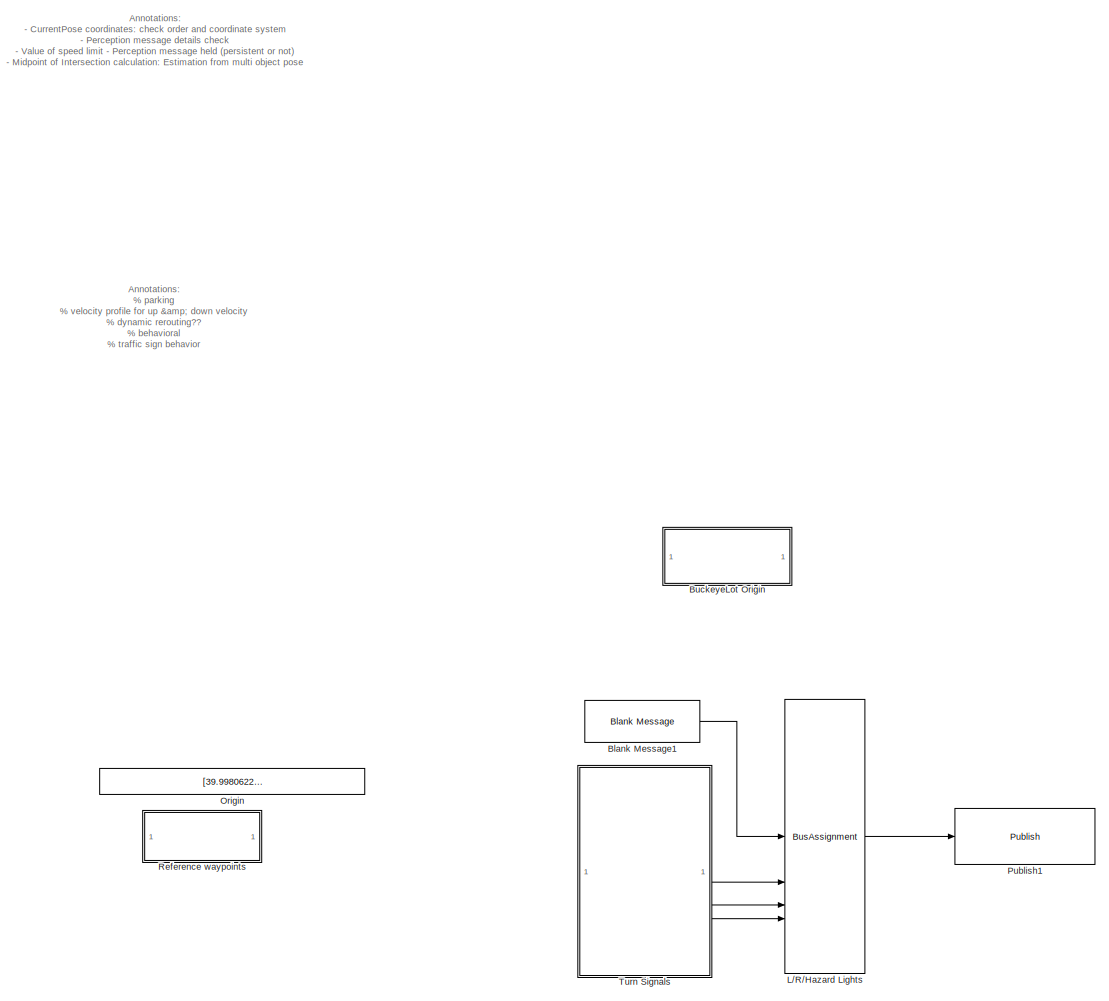
[diagram: root canvas - part 1/9, top right region]
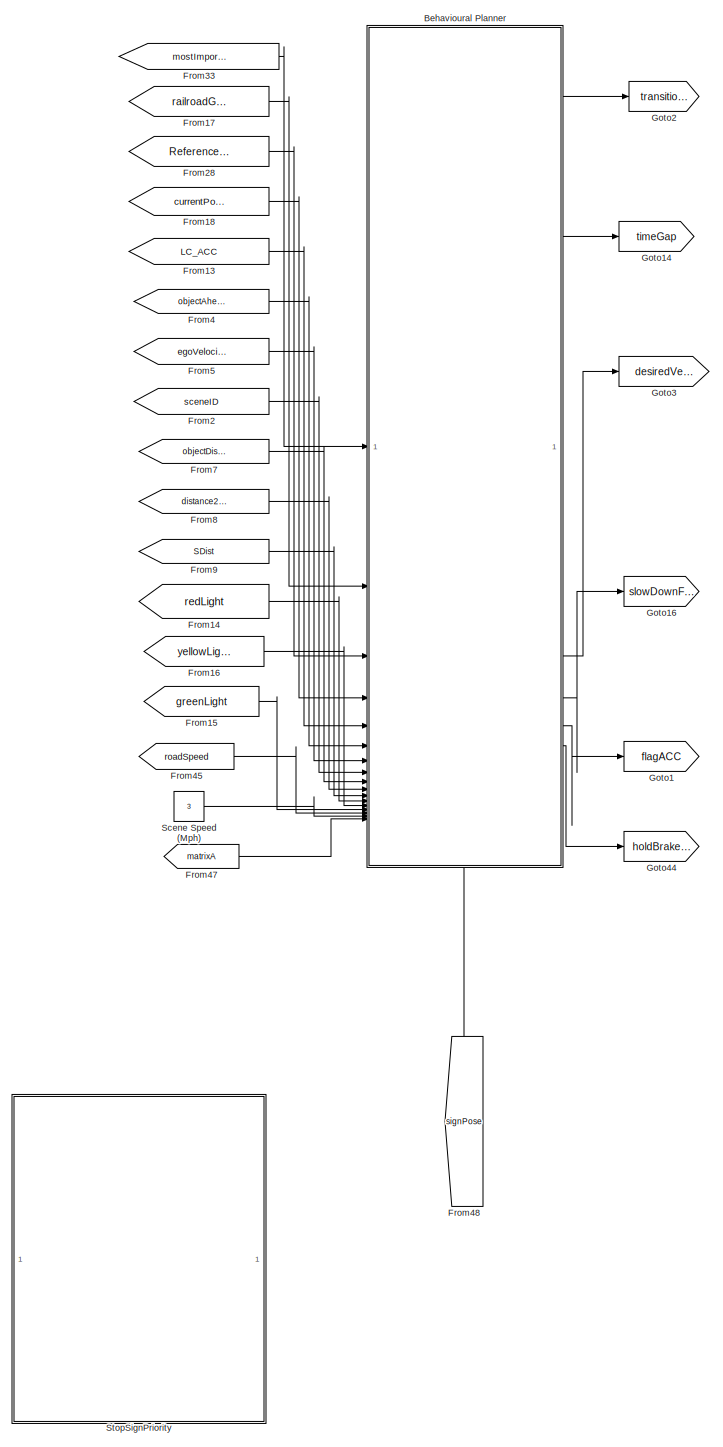
[diagram: root canvas - part 2/9, central region]
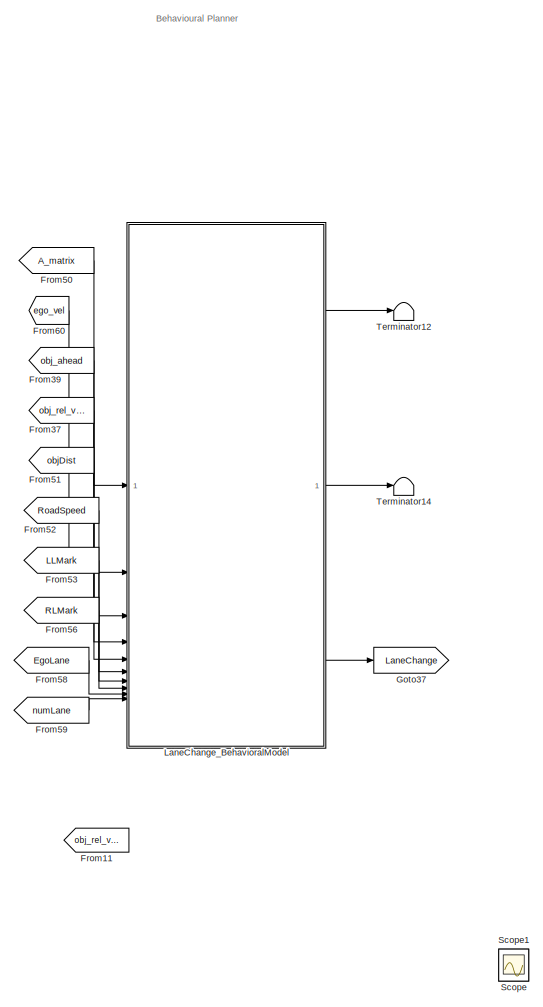
[diagram: root canvas - part 3/9, top right region]
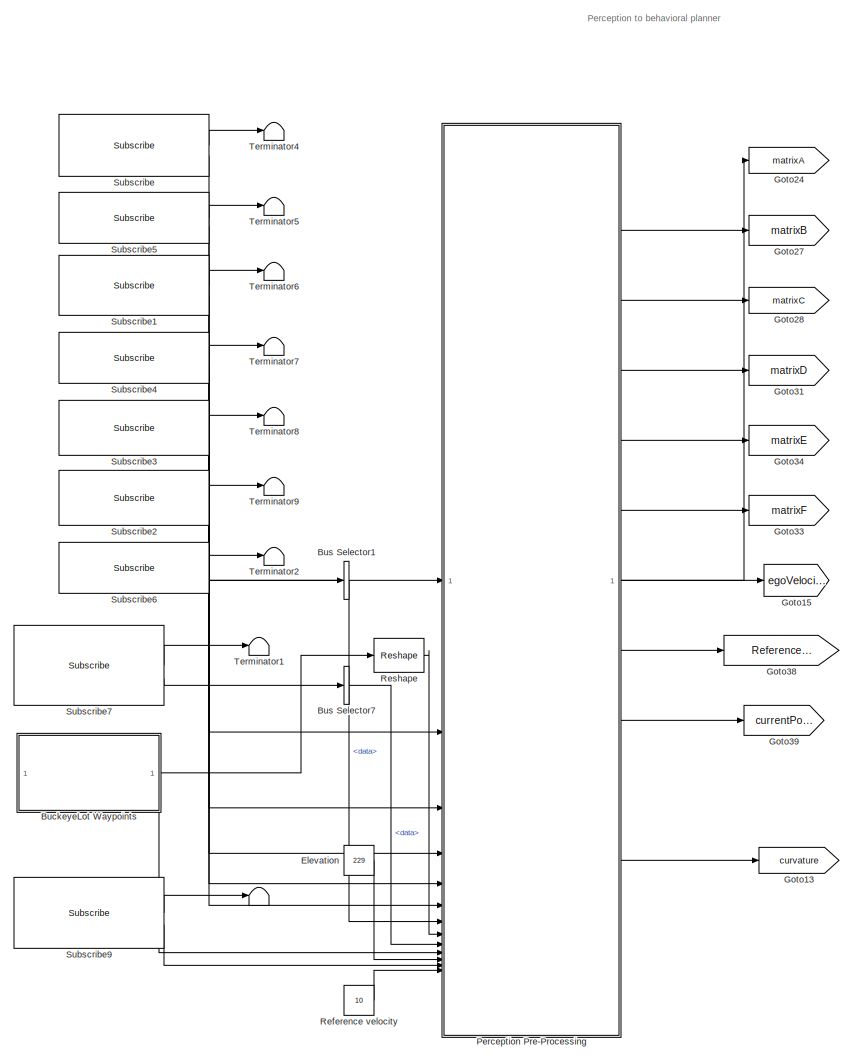
[diagram: root canvas - part 4/9, middle left region]
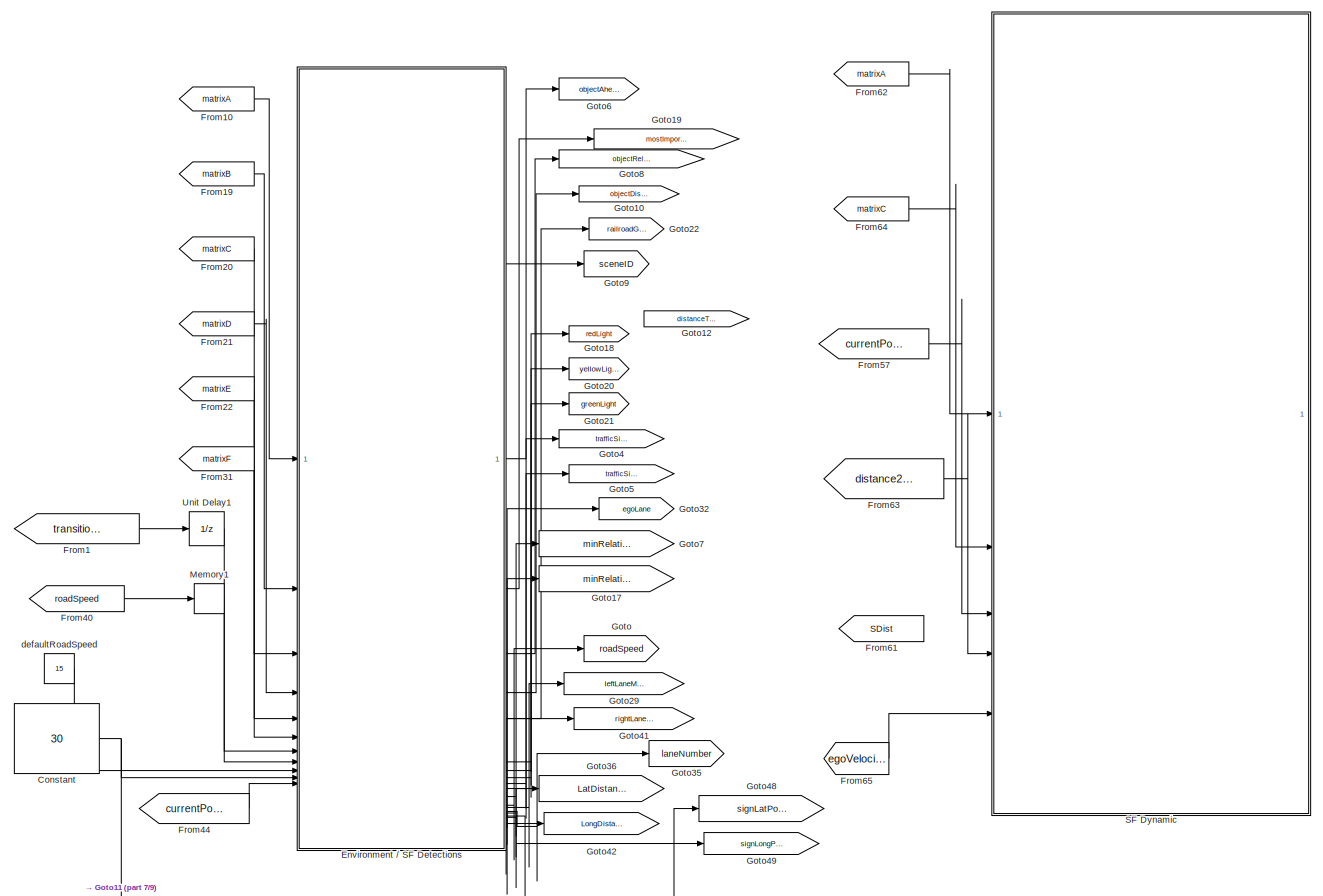
[diagram: root canvas - part 5/9, central region]
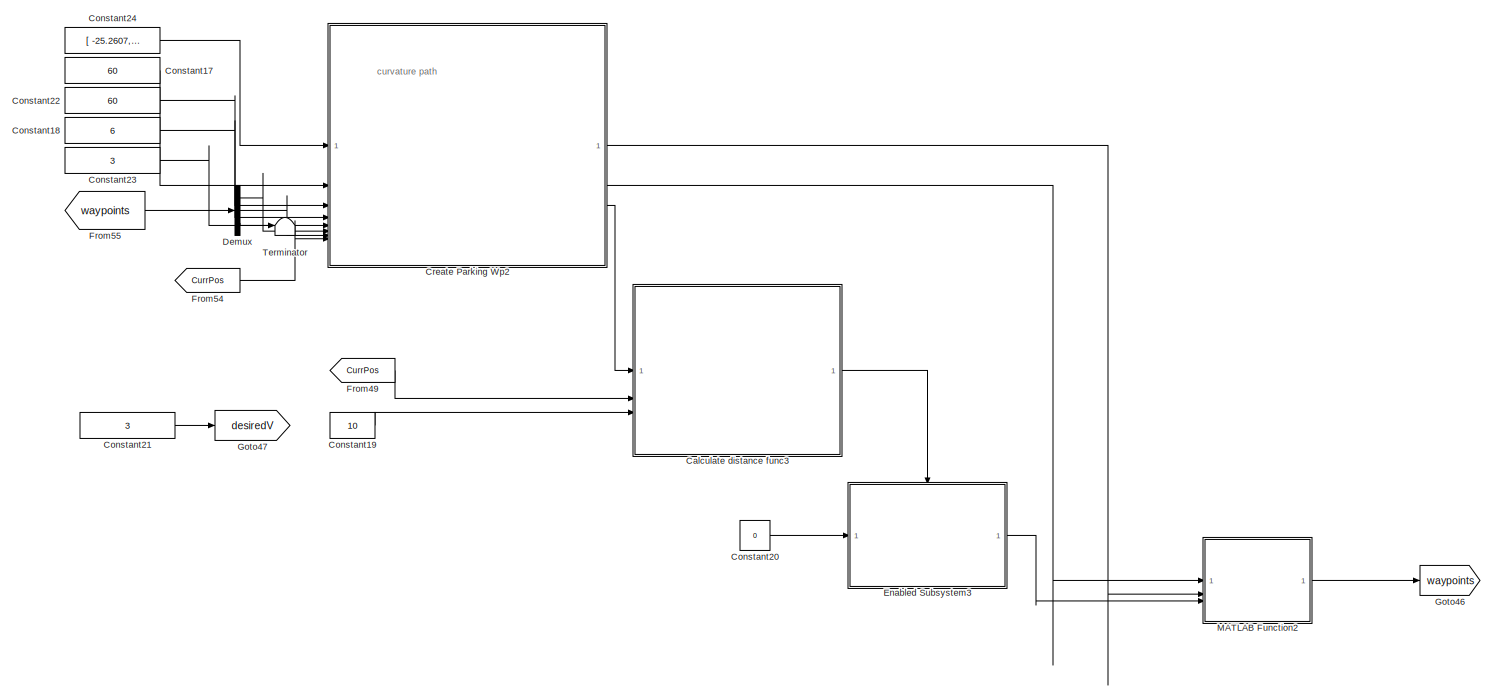
[diagram: root canvas - part 6/9, bottom right region]
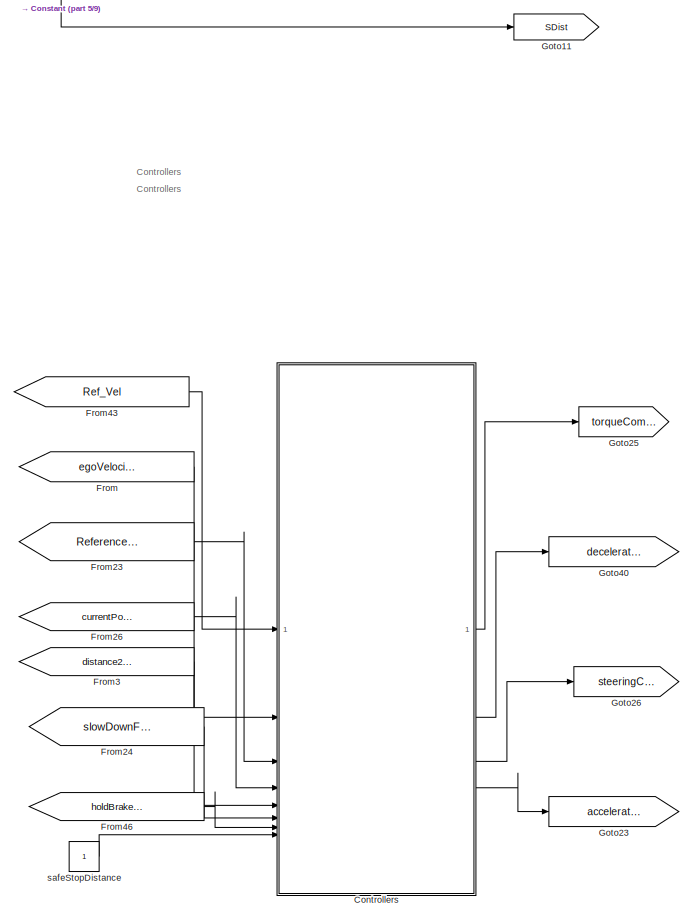
[diagram: root canvas - part 7/9, bottom left region]
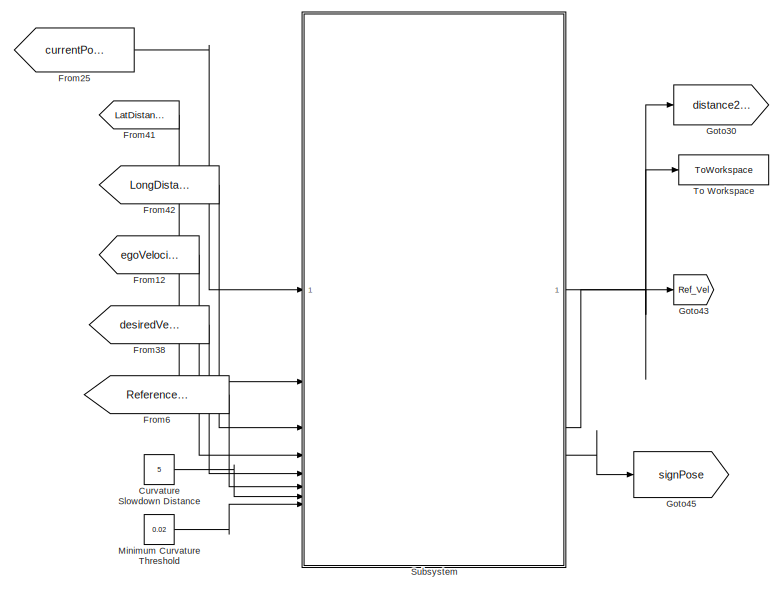
[diagram: root canvas - part 8/9, bottom left region]
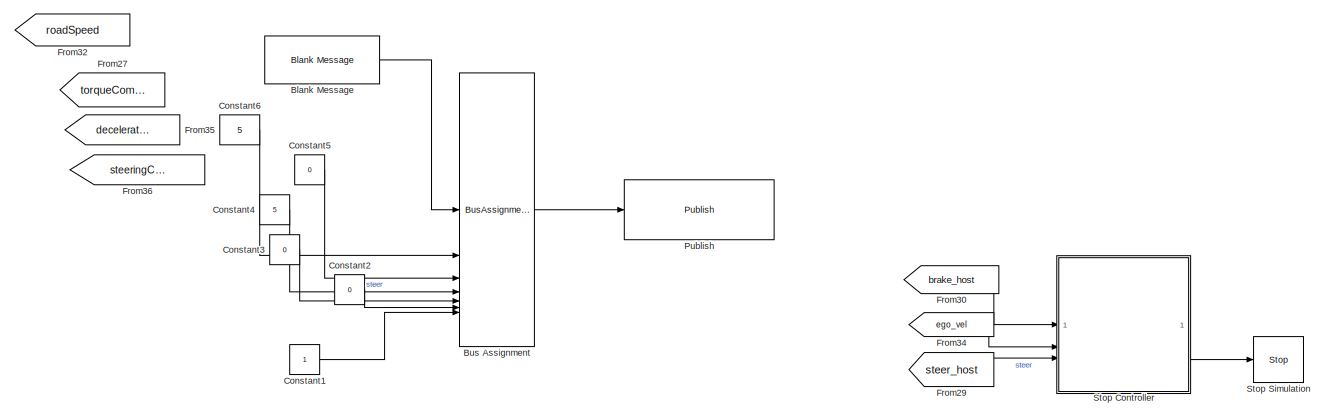
[diagram: root canvas - part 9/9, bottom center region]
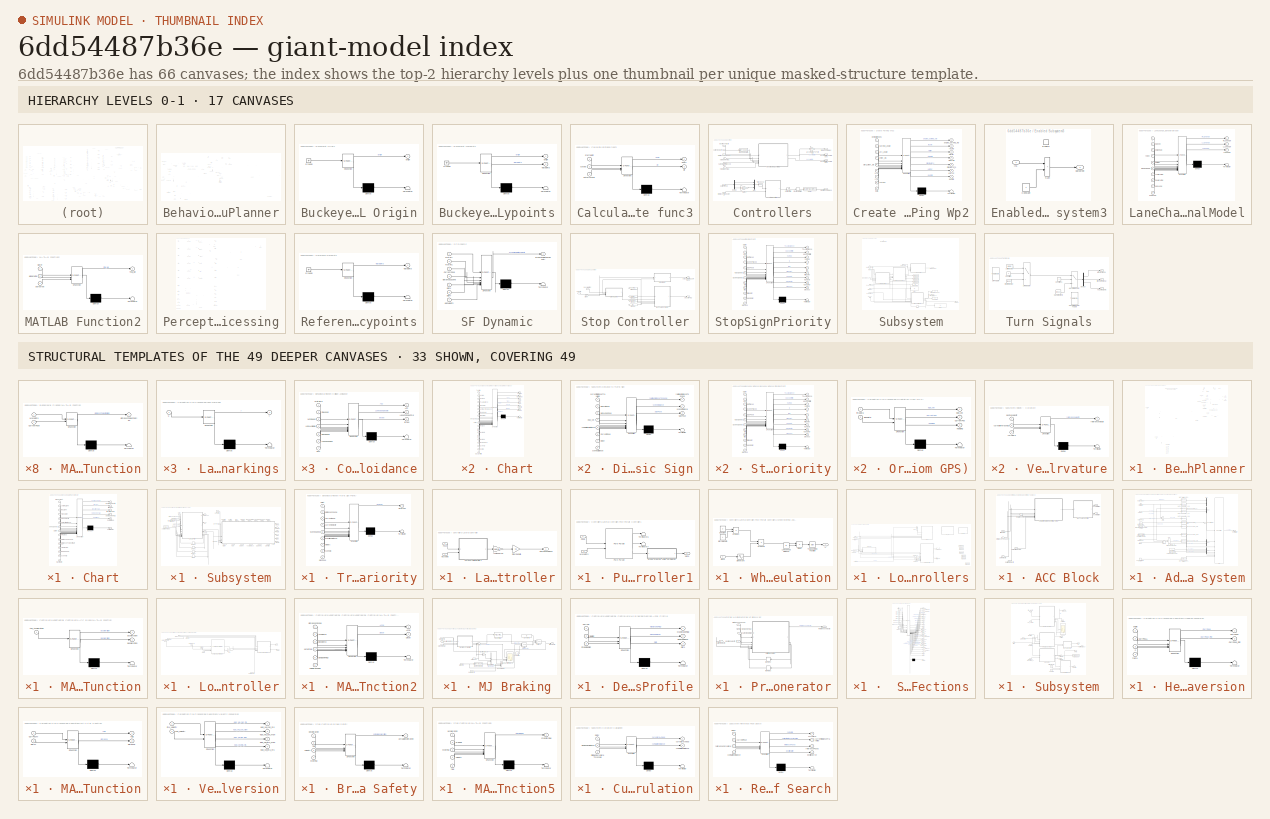
[diagram: thumbnail index - top-2 hierarchy levels (17 canvases) + 33 structural-template representatives of the remaining 49 canvases]
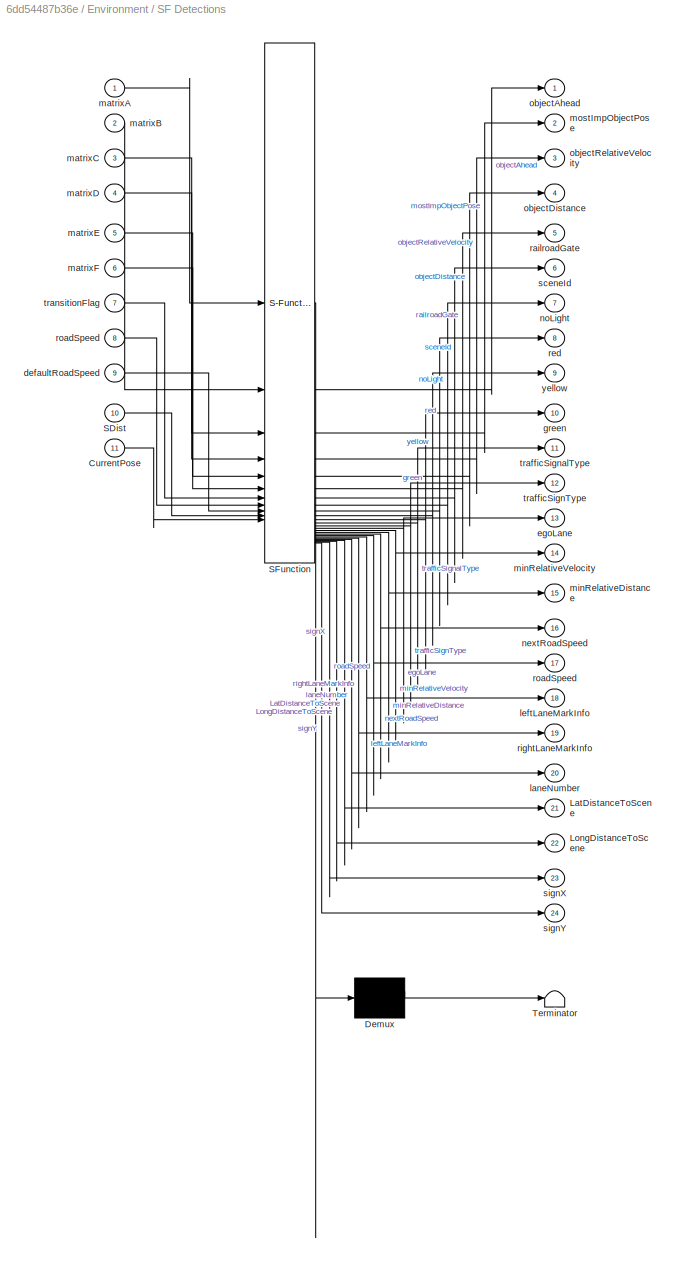
MODEL slx_6dd54487b36e
KIND model
CONFIG AbsTol = auto
CONFIG EnableMultiTasking = off
CONFIG FixedStep = auto
CONFIG MaxStep = auto
CONFIG MinStep = auto
CONFIG RelTol = 1e-3
CONFIG SampleTimeConstraint = Unconstrained
CONFIG SolverName = VariableStepAuto
CONFIG StartTime = 0.0
CONFIG StopTime = inf
WORKSPACE source: mxarray member
WORKSPACE L = 4.165
WORKSPACE SL_ROS_VariableLengthArrays_MaxSizes: object (value not decoded)
WORKSPACE finalint = 0
WORKSPACE firstWarning = 1
WORKSPACE originalScenarioChecksum = '114339432DE22364D47BB28FC96DC10C'
BLOCK [Terminator]  
BLOCK [SubSystem] Behavioural Planner
  PortSchema = {"entries":[{"content":{"sides":[{"content":{"connectorIds":["In1","In2","In3","In4","In5","In6","In7","In8","In9","In10","In11","In12","In13","In14","In15","In16","In17"]},"type":"ConnectorPlacement.EquallySpacedRectSide","uuid":"494bf481-bdc6-4ab1-b824-5f3bdb3ff01f"},{"content":{"connectorIds":["Out1","Out2","Out3","Out4","Out5","Out6"],"side":"RIGHT"},"type":"ConnectorPlacement.EquallySpacedRec...<+511ch>
BLOCK [Logic] Behavioural Planner/AND
  AllPortsSameDT = off
  IconShape = distinctive
  OutDataTypeStr = fixdt(1,16)
BLOCK [SubSystem] Behavioural Planner/Behavioural Planner
  Commented = on
BLOCK [Outport] Behavioural Planner/Behavioural Planner/ACC
BLOCK [Logic] Behavioural Planner/Behavioural Planner/AND
  AllPortsSameDT = off
  IconShape = distinctive
  OutDataTypeStr = fixdt(1,16)
BLOCK [Outport] Behavioural Planner/Behavioural Planner/Braking
  Port = 2
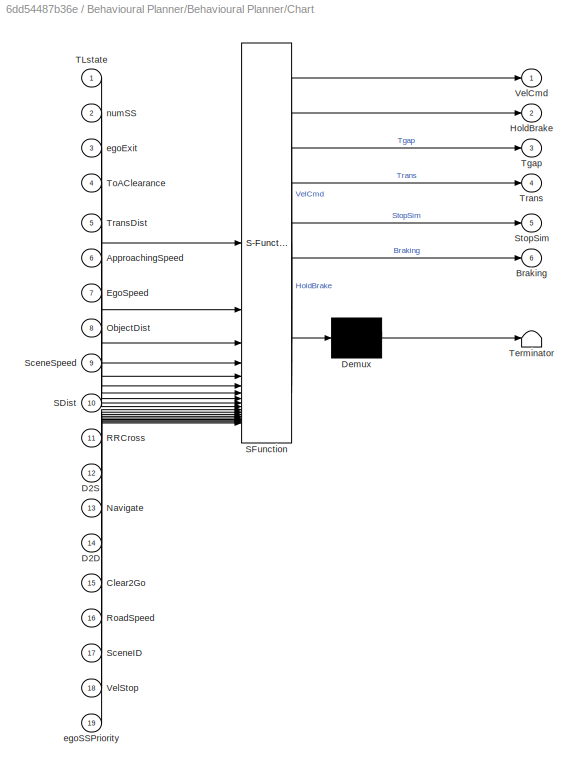
BLOCK [SubSystem] Behavioural Planner/Behavioural Planner/Chart
  ErrorFcn = Stateflow.Translate.translate
  PermitHierarchicalResolution = ExplicitOnly
  PortSchema = {"entries":[{"content":{"sides":[{"content":{"connectorIds":["In17","In18","In19","In2","In5"]},"type":"ConnectorPlacement.EquallySpacedRectSide","uuid":"81aca70f-0947-49fb-b60a-be241e44193b"},{"content":{"connectorIds":["Out6","Out2","Out1","Out3","Out4","Out5"],"side":"RIGHT"},"type":"ConnectorPlacement.EquallySpacedRectSide","uuid":"e7b9645e-3711-4964-ac9b-0199dd335e99"},{"content":{"connectorI...<+535ch>
  SFBlockType = Chart
  TreatAsAtomicUnit = on
BLOCK [Demux] Behavioural Planner/Behavioural Planner/Chart/ Demux 
  Outputs = 1
BLOCK [S-Function] Behavioural Planner/Behavioural Planner/Chart/ SFunction 
  EnableBusSupport = on
  FunctionName = sf_sfun
  PortCounts = [19 7]
  SFcnIsStateOwnerBlock = off
  SFunctionDeploymentMode = off
  Tag = Stateflow S-Function 14
BLOCK [Terminator] Behavioural Planner/Behavioural Planner/Chart/ Terminator 
BLOCK [Inport] Behavioural Planner/Behavioural Planner/Chart/ApproachingSpeed
  Port = 6
BLOCK [Outport] Behavioural Planner/Behavioural Planner/Chart/Braking
  Port = 6
BLOCK [Inport] Behavioural Planner/Behavioural Planner/Chart/Clear2Go
  Port = 15
BLOCK [Inport] Behavioural Planner/Behavioural Planner/Chart/D2D
  Port = 14
BLOCK [Inport] Behavioural Planner/Behavioural Planner/Chart/D2S
  Port = 12
BLOCK [Inport] Behavioural Planner/Behavioural Planner/Chart/EgoSpeed
  Port = 7
BLOCK [Outport] Behavioural Planner/Behavioural Planner/Chart/HoldBrake
  Port = 2
BLOCK [Inport] Behavioural Planner/Behavioural Planner/Chart/Navigate
  Port = 13
BLOCK [Inport] Behavioural Planner/Behavioural Planner/Chart/ObjectDist
  Port = 8
BLOCK [Inport] Behavioural Planner/Behavioural Planner/Chart/RRCross
  Port = 11
BLOCK [Inport] Behavioural Planner/Behavioural Planner/Chart/RoadSpeed
  Port = 16
BLOCK [Inport] Behavioural Planner/Behavioural Planner/Chart/SDist
  Port = 10
BLOCK [Inport] Behavioural Planner/Behavioural Planner/Chart/SceneID
  Port = 17
BLOCK [Inport] Behavioural Planner/Behavioural Planner/Chart/SceneSpeed
  Port = 9
BLOCK [Outport] Behavioural Planner/Behavioural Planner/Chart/StopSim
  Port = 5
BLOCK [Inport] Behavioural Planner/Behavioural Planner/Chart/TLstate
BLOCK [Outport] Behavioural Planner/Behavioural Planner/Chart/Tgap
  Port = 3
BLOCK [Inport] Behavioural Planner/Behavioural Planner/Chart/ToAClearance
  Port = 4
BLOCK [Outport] Behavioural Planner/Behavioural Planner/Chart/Trans
  Port = 4
BLOCK [Inport] Behavioural Planner/Behavioural Planner/Chart/TransDist
  Port = 5
BLOCK [Outport] Behavioural Planner/Behavioural Planner/Chart/VelCmd
BLOCK [Inport] Behavioural Planner/Behavioural Planner/Chart/VelStop
  Port = 18
BLOCK [Inport] Behavioural Planner/Behavioural Planner/Chart/egoExit
  Port = 3
BLOCK [Inport] Behavioural Planner/Behavioural Planner/Chart/egoSSPriority
  Port = 19
BLOCK [Inport] Behavioural Planner/Behavioural Planner/Chart/numSS
  Port = 2
BLOCK [SubSystem] Behavioural Planner/Behavioural Planner/Collision Avoidance
  ErrorFcn = Stateflow.Translate.translate
  PermitHierarchicalResolution = ExplicitOnly
  SFBlockType = Chart
  TreatAsAtomicUnit = on
BLOCK [Demux] Behavioural Planner/Behavioural Planner/Collision Avoidance/ Demux 
  Outputs = 1
BLOCK [S-Function] Behavioural Planner/Behavioural Planner/Collision Avoidance/ SFunction 
  EnableBusSupport = on
  FunctionName = sf_sfun
  PortCounts = [8 4]
  SFcnIsStateOwnerBlock = off
  SFunctionDeploymentMode = off
  Tag = Stateflow S-Function 28
BLOCK [Terminator] Behavioural Planner/Behavioural Planner/Collision Avoidance/ Terminator 
BLOCK [Outport] Behavioural Planner/Behavioural Planner/Collision Avoidance/ACC
BLOCK [Outport] Behavioural Planner/Behavioural Planner/Collision Avoidance/Brake
  Port = 3
BLOCK [Inport] Behavioural Planner/Behavioural Planner/Collision Avoidance/D2O
  Port = 8
BLOCK [Inport] Behavioural Planner/Behavioural Planner/Collision Avoidance/EgoSpeed
  Port = 5
BLOCK [Inport] Behavioural Planner/Behavioural Planner/Collision Avoidance/LC_ACC
  Port = 7
BLOCK [Inport] Behavioural Planner/Behavioural Planner/Collision Avoidance/LaneAvailable
  Port = 4
BLOCK [Outport] Behavioural Planner/Behavioural Planner/Collision Avoidance/LaneChangeCmd
  Port = 2
BLOCK [Inport] Behavioural Planner/Behavioural Planner/Collision Avoidance/LaneChanged
  Port = 6
BLOCK [Inport] Behavioural Planner/Behavioural Planner/Collision Avoidance/MinSpeed
  Port = 3
BLOCK [Inport] Behavioural Planner/Behavioural Planner/Collision Avoidance/ObjAhead
  Port = 2
BLOCK [Inport] Behavioural Planner/Behavioural Planner/Collision Avoidance/WaitTime
BLOCK [Constant] Behavioural Planner/Behavioural Planner/Constant1
  Value = WB
BLOCK [Constant] Behavioural Planner/Behavioural Planner/Constant2
  Value = 0.05
BLOCK [Display] Behavioural Planner/Behavioural Planner/Display4
  Decimation = 1
BLOCK [Display] Behavioural Planner/Behavioural Planner/Display9
  Decimation = 1
BLOCK [Inport] Behavioural Planner/Behavioural Planner/EgoSpeed
  Port = 2
BLOCK [SubSystem] Behavioural Planner/Behavioural Planner/Emergency Stop
  ErrorFcn = Stateflow.Translate.translate
  PermitHierarchicalResolution = ExplicitOnly
  SFBlockType = Chart
  TreatAsAtomicUnit = on
BLOCK [Demux] Behavioural Planner/Behavioural Planner/Emergency Stop/ Demux 
  Outputs = 1
BLOCK [S-Function] Behavioural Planner/Behavioural Planner/Emergency Stop/ SFunction 
  EnableBusSupport = on
  FunctionName = sf_sfun
  PortCounts = [2 2]
  SFcnIsStateOwnerBlock = off
  SFunctionDeploymentMode = off
  Tag = Stateflow S-Function 31
BLOCK [Terminator] Behavioural Planner/Behavioural Planner/Emergency Stop/ Terminator 
BLOCK [Inport] Behavioural Planner/Behavioural Planner/Emergency Stop/D2O
BLOCK [Outport] Behavioural Planner/Behavioural Planner/Emergency Stop/EStop
BLOCK [Inport] Behavioural Planner/Behavioural Planner/Emergency Stop/TechFailure
  Port = 2
BLOCK [From] Behavioural Planner/Behavioural Planner/From1
  GotoTag = LC_ACC
BLOCK [Constant] Behavioural Planner/Behavioural Planner/LaneAvailable
  NameLocation = left
  Value = 0
BLOCK [Constant] Behavioural Planner/Behavioural Planner/LaneChanged
  NameLocation = left
  Value = 0
BLOCK [Memory] Behavioural Planner/Behavioural Planner/Memory
  NameLocation = top
BLOCK [Memory] Behavioural Planner/Behavioural Planner/Memory1
  InitialCondition = [0 0]
  NameLocation = top
BLOCK [Memory] Behavioural Planner/Behavioural Planner/Memory2
  NameLocation = top
BLOCK [Memory] Behavioural Planner/Behavioural Planner/Memory3
  InitialCondition = 1
  NameLocation = top
BLOCK [Constant] Behavioural Planner/Behavioural Planner/MinSpeed
  NameLocation = left
  Value = 2
BLOCK [Logic] Behavioural Planner/Behavioural Planner/NOT
  AllPortsSameDT = off
  IconShape = distinctive
  Operator = NOT
  OutDataTypeStr = boolean
BLOCK [Logic] Behavioural Planner/Behavioural Planner/OR
  AllPortsSameDT = off
  IconShape = distinctive
  Operator = OR
  OutDataTypeStr = boolean
BLOCK [Inport] Behavioural Planner/Behavioural Planner/ObjAhead
BLOCK [Inport] Behavioural Planner/Behavioural Planner/Object Relative Velocity
  Port = 4
BLOCK [Inport] Behavioural Planner/Behavioural Planner/ObjectDist
  Port = 3
BLOCK [Constant] Behavioural Planner/Behavioural Planner/ReRoute
  NameLocation = top
BLOCK [SubSystem] Behavioural Planner/Behavioural Planner/Routing
  ErrorFcn = Stateflow.Translate.translate
  PermitHierarchicalResolution = ExplicitOnly
  SFBlockType = Chart
  TreatAsAtomicUnit = on
BLOCK [Demux] Behavioural Planner/Behavioural Planner/Routing/ Demux 
  Outputs = 1
BLOCK [S-Function] Behavioural Planner/Behavioural Planner/Routing/ SFunction 
  EnableBusSupport = on
  FunctionName = sf_sfun
  PortCounts = [1 2]
  SFcnIsStateOwnerBlock = off
  SFunctionDeploymentMode = off
  Tag = Stateflow S-Function 35
BLOCK [Terminator] Behavioural Planner/Behavioural Planner/Routing/ Terminator 
BLOCK [Outport] Behavioural Planner/Behavioural Planner/Routing/NewRoute
BLOCK [Inport] Behavioural Planner/Behavioural Planner/Routing/ReRoute
BLOCK [SubSystem] Behavioural Planner/Behavioural Planner/StopSignPriority
  ErrorFcn = Stateflow.Translate.translate
  LibrarySourceBlock = simulink/User-Defined\nFunctions/MATLAB Function
  PermitHierarchicalResolution = ExplicitOnly
  SFBlockType = MATLAB Function
  TreatAsAtomicUnit = on
BLOCK [Demux] Behavioural Planner/Behavioural Planner/StopSignPriority/ Demux 
  Outputs = 1
BLOCK [S-Function] Behavioural Planner/Behavioural Planner/StopSignPriority/ SFunction 
  EnableBusSupport = on
  FunctionName = sf_sfun
  PortCounts = [12 10]
  SFcnIsStateOwnerBlock = off
  SFunctionDeploymentMode = off
  Tag = Stateflow S-Function 36
BLOCK [Terminator] Behavioural Planner/Behavioural Planner/StopSignPriority/ Terminator 
BLOCK [Inport] Behavioural Planner/Behavioural Planner/StopSignPriority/D2S
  Port = 2
BLOCK [Inport] Behavioural Planner/Behavioural Planner/StopSignPriority/ObjTracks
  Port = 3
BLOCK [Inport] Behavioural Planner/Behavioural Planner/StopSignPriority/SDist
BLOCK [Inport] Behavioural Planner/Behavioural Planner/StopSignPriority/SceneSpeed
  Port = 7
BLOCK [Inport] Behavioural Planner/Behavioural Planner/StopSignPriority/SceneTracks
  Port = 4
BLOCK [Outport] Behavioural Planner/Behavioural Planner/StopSignPriority/ToAClearance
BLOCK [Inport] Behavioural Planner/Behavioural Planner/StopSignPriority/WB
  Port = 8
BLOCK [Outport] Behavioural Planner/Behavioural Planner/StopSignPriority/d
  Port = 4
BLOCK [Outport] Behavioural Planner/Behavioural Planner/StopSignPriority/egoEnter
  Port = 8
BLOCK [Inport] Behavioural Planner/Behavioural Planner/StopSignPriority/egoEnter 
  Port = 11
BLOCK [Outport] Behavioural Planner/Behavioural Planner/StopSignPriority/egoExit
  Port = 7
BLOCK [Inport] Behavioural Planner/Behavioural Planner/StopSignPriority/egoPose
  Port = 5
BLOCK [Outport] Behavioural Planner/Behavioural Planner/StopSignPriority/egoSSPriority
  Port = 2
BLOCK [Inport] Behavioural Planner/Behavioural Planner/StopSignPriority/egoSpeed
  Port = 6
BLOCK [Outport] Behavioural Planner/Behavioural Planner/StopSignPriority/flag
  Port = 5
BLOCK [Inport] Behavioural Planner/Behavioural Planner/StopSignPriority/flag 
  Port = 9
BLOCK [Outport] Behavioural Planner/Behavioural Planner/StopSignPriority/midpoint
  Port = 6
BLOCK [Inport] Behavioural Planner/Behavioural Planner/StopSignPriority/midpoint 
  Port = 10
BLOCK [Outport] Behavioural Planner/Behavioural Planner/StopSignPriority/numSS
  Port = 3
BLOCK [Outport] Behavioural Planner/Behavioural Planner/StopSignPriority/process
  Port = 9
BLOCK [Inport] Behavioural Planner/Behavioural Planner/StopSignPriority/process 
  Port = 12
BLOCK [Constant] Behavioural Planner/Behavioural Planner/TechFailure
  NameLocation = left
  Value = 0
BLOCK [ToggleSwitchBlock] Behavioural Planner/Behavioural Planner/Toggle Switch4
BLOCK [Constant] Behavioural Planner/Behavioural Planner/WaitTime
  NameLocation = left
  Value = 3
BLOCK [SubSystem] Behavioural Planner/Chart
  ErrorFcn = Stateflow.Translate.translate
  PermitHierarchicalResolution = ExplicitOnly
  PortSchema = {"entries":[{"content":{"sides":[{"content":{"connectorIds":["In14","In4"]},"type":"ConnectorPlacement.EquallySpacedRectSide","uuid":"81aca70f-0947-49fb-b60a-be241e44193b"},{"content":{"connectorIds":["Out4","Out5","In1","In2","In3","Out1","Out2","Out3"],"side":"RIGHT"},"type":"ConnectorPlacement.EquallySpacedRectSide","uuid":"e7b9645e-3711-4964-ac9b-0199dd335e99"},{"content":{"connectorIds":["In1...<+500ch>
  SFBlockType = Chart
  TreatAsAtomicUnit = on
BLOCK [Demux] Behavioural Planner/Chart/ Demux 
  Outputs = 1
BLOCK [S-Function] Behavioural Planner/Chart/ SFunction 
  EnableBusSupport = on
  FunctionName = sf_sfun
  PortCounts = [15 6]
  SFcnIsStateOwnerBlock = off
  SFunctionDeploymentMode = off
  Tag = Stateflow S-Function 5
BLOCK [Terminator] Behavioural Planner/Chart/ Terminator 
BLOCK [Inport] Behavioural Planner/Chart/Navigate
  Port = 15
BLOCK [Inport] Behavioural Planner/Chart/RRCross
  Port = 9
BLOCK [Inport] Behavioural Planner/Chart/SDist
  Port = 8
BLOCK [Inport] Behavioural Planner/Chart/SceneSpeed
  Port = 7
BLOCK [Inport] Behavioural Planner/Chart/TransDist
  Port = 4
BLOCK [Inport] Behavioural Planner/Chart/clearToGo
  Port = 12
BLOCK [Outport] Behavioural Planner/Chart/desiredVelocity
BLOCK [Inport] Behavioural Planner/Chart/distance2Scene
  Port = 10
BLOCK [Inport] Behavioural Planner/Chart/distanceToDestination
  Port = 11
BLOCK [Inport] Behavioural Planner/Chart/egoVelocity
  Port = 5
BLOCK [Inport] Behavioural Planner/Chart/greenLight
BLOCK [Outport] Behavioural Planner/Chart/holdBrake
  Port = 5
BLOCK [Inport] Behavioural Planner/Chart/objectDistance
  Port = 6
BLOCK [Inport] Behavioural Planner/Chart/redLight
  Port = 3
BLOCK [Inport] Behavioural Planner/Chart/roadSpeed
  Port = 13
BLOCK [Inport] Behavioural Planner/Chart/sceneId
  Port = 14
BLOCK [Outport] Behavioural Planner/Chart/slowDownFlag
  Port = 4
BLOCK [Outport] Behavioural Planner/Chart/timeGap
  Port = 2
BLOCK [Outport] Behavioural Planner/Chart/transitionFlag
  Port = 3
BLOCK [Inport] Behavioural Planner/Chart/yellowLight
  Port = 2
BLOCK [ToggleSwitchBlock] Behavioural Planner/Clear 2 Go
BLOCK [Constant] Behavioural Planner/Clear2Go
  NameLocation = top
BLOCK [SubSystem] Behavioural Planner/Collision Avoidance
  ErrorFcn = Stateflow.Translate.translate
  PermitHierarchicalResolution = ExplicitOnly
  SFBlockType = Chart
  TreatAsAtomicUnit = on
BLOCK [Demux] Behavioural Planner/Collision Avoidance/ Demux 
  Outputs = 1
BLOCK [S-Function] Behavioural Planner/Collision Avoidance/ SFunction 
  EnableBusSupport = on
  FunctionName = sf_sfun
  PortCounts = [7 4]
  SFcnIsStateOwnerBlock = off
  SFunctionDeploymentMode = off
  Tag = Stateflow S-Function 9
BLOCK [Terminator] Behavioural Planner/Collision Avoidance/ Terminator 
BLOCK [Outport] Behavioural Planner/Collision Avoidance/ACC
BLOCK [Outport] Behavioural Planner/Collision Avoidance/Brake
  Port = 3
BLOCK [Inport] Behavioural Planner/Collision Avoidance/D2O
  Port = 7
BLOCK [Inport] Behavioural Planner/Collision Avoidance/EgoSpeed
  Port = 5
BLOCK [Inport] Behavioural Planner/Collision Avoidance/LaneAvailable
  Port = 4
BLOCK [Outport] Behavioural Planner/Collision Avoidance/LaneChangeCmd
  Port = 2
BLOCK [Inport] Behavioural Planner/Collision Avoidance/LaneChanged
  Port = 6
BLOCK [Inport] Behavioural Planner/Collision Avoidance/MinSpeed
  Port = 3
BLOCK [Inport] Behavioural Planner/Collision Avoidance/ObjAhead
  Port = 2
BLOCK [Inport] Behavioural Planner/Collision Avoidance/WaitTime
BLOCK [Constant] Behavioural Planner/Constant
  Value = L
BLOCK [Constant] Behavioural Planner/Intersection Dist
  Value = 32
BLOCK [Inport] Behavioural Planner/LC_ACC
  Port = 5
BLOCK [Constant] Behavioural Planner/LaneAvailable
  NameLocation = left
  Value = 0
BLOCK [Constant] Behavioural Planner/LaneChanged
  NameLocation = left
  Value = 0
BLOCK [SubSystem] Behavioural Planner/MATLAB Function
  ErrorFcn = Stateflow.Translate.translate
  PermitHierarchicalResolution = ExplicitOnly
  SFBlockType = MATLAB Function
  TreatAsAtomicUnit = on
BLOCK [Demux] Behavioural Planner/MATLAB Function/ Demux 
  Outputs = 1
BLOCK [S-Function] Behavioural Planner/MATLAB Function/ SFunction 
  EnableBusSupport = on
  FunctionName = sf_sfun
  PortCounts = [2 2]
  SFcnIsStateOwnerBlock = off
  SFunctionDeploymentMode = off
  Tag = Stateflow S-Function 10
BLOCK [Terminator] Behavioural Planner/MATLAB Function/ Terminator 
BLOCK [Inport] Behavioural Planner/MATLAB Function/CurrentPose
  Port = 2
BLOCK [Inport] Behavioural Planner/MATLAB Function/Waypoints
BLOCK [Outport] Behavioural Planner/MATLAB Function/distanceToDestination
BLOCK [SubSystem] Behavioural Planner/MATLAB Function1
  ErrorFcn = Stateflow.Translate.translate
  LibrarySourceBlock = simulink/User-Defined\nFunctions/MATLAB Function
  PermitHierarchicalResolution = ExplicitOnly
  SFBlockType = MATLAB Function
  TreatAsAtomicUnit = on
BLOCK [Demux] Behavioural Planner/MATLAB Function1/ Demux 
  Outputs = 1
BLOCK [S-Function] Behavioural Planner/MATLAB Function1/ SFunction 
  EnableBusSupport = on
  FunctionName = sf_sfun
  PortCounts = [2 2]
  SFcnIsStateOwnerBlock = off
  SFunctionDeploymentMode = off
  Tag = Stateflow S-Function 26
BLOCK [Terminator] Behavioural Planner/MATLAB Function1/ Terminator 
BLOCK [Inport] Behavioural Planner/MATLAB Function1/EgoLength
BLOCK [Inport] Behavioural Planner/MATLAB Function1/IntDist
  Port = 2
BLOCK [Outport] Behavioural Planner/MATLAB Function1/TransDist
BLOCK [Constant] Behavioural Planner/MinSpeed
  NameLocation = left
  Value = 2
BLOCK [Logic] Behavioural Planner/NOT
  AllPortsSameDT = off
  IconShape = distinctive
  Operator = NOT
  OutDataTypeStr = boolean
BLOCK [ToggleSwitchBlock] Behavioural Planner/Navigate
BLOCK [Logic] Behavioural Planner/OR
  AllPortsSameDT = off
  IconShape = distinctive
  Operator = OR
  OutDataTypeStr = boolean
BLOCK [Inport] Behavioural Planner/SDist
  NameLocation = right
  Port = 11
BLOCK [Inport] Behavioural Planner/SceneSpeed
  NameLocation = top
  Port = 16
BLOCK [SubSystem] Behavioural Planner/Subsystem
  Commented = on
BLOCK [Inport] Behavioural Planner/Subsystem/ApproachingSpeed
  Port = 11
BLOCK [Outport] Behavioural Planner/Subsystem/Braking
  Port = 3
BLOCK [Constant] Behavioural Planner/Subsystem/CVBolt Wheelbase
  Commented = on
  Value = 2.865
BLOCK [SubSystem] Behavioural Planner/Subsystem/Chart1
  Commented = on
  ErrorFcn = Stateflow.Translate.translate
  PermitHierarchicalResolution = ExplicitOnly
  PortSchema = {"entries":[{"content":{"sides":[{"content":{"connectorIds":["In17","In18","In19","In2","In5"]},"type":"ConnectorPlacement.EquallySpacedRectSide","uuid":"81aca70f-0947-49fb-b60a-be241e44193b"},{"content":{"connectorIds":["Out6","Out2","Out1","Out3","Out4","Out5"],"side":"RIGHT"},"type":"ConnectorPlacement.EquallySpacedRectSide","uuid":"e7b9645e-3711-4964-ac9b-0199dd335e99"},{"content":{"connectorI...<+535ch>
  SFBlockType = Chart
  TreatAsAtomicUnit = on
BLOCK [Demux] Behavioural Planner/Subsystem/Chart1/ Demux 
  Outputs = 1
BLOCK [S-Function] Behavioural Planner/Subsystem/Chart1/ SFunction 
  EnableBusSupport = on
  FunctionName = sf_sfun
  PortCounts = [19 7]
  SFcnIsStateOwnerBlock = off
  SFunctionDeploymentMode = off
  Tag = Stateflow S-Function 30
BLOCK [Terminator] Behavioural Planner/Subsystem/Chart1/ Terminator 
BLOCK [Inport] Behavioural Planner/Subsystem/Chart1/ApproachingSpeed
  Port = 6
BLOCK [Outport] Behavioural Planner/Subsystem/Chart1/Braking
  Port = 6
BLOCK [Inport] Behavioural Planner/Subsystem/Chart1/Clear2Go
  Port = 15
BLOCK [Inport] Behavioural Planner/Subsystem/Chart1/D2D
  Port = 14
BLOCK [Inport] Behavioural Planner/Subsystem/Chart1/D2S
  Port = 12
BLOCK [Inport] Behavioural Planner/Subsystem/Chart1/EgoSpeed
  Port = 7
BLOCK [Outport] Behavioural Planner/Subsystem/Chart1/HoldBrake
  Port = 2
BLOCK [Inport] Behavioural Planner/Subsystem/Chart1/Navigate
  Port = 13
BLOCK [Inport] Behavioural Planner/Subsystem/Chart1/ObjectDist
  Port = 8
BLOCK [Inport] Behavioural Planner/Subsystem/Chart1/RRCross
  Port = 11
BLOCK [Inport] Behavioural Planner/Subsystem/Chart1/RoadSpeed
  Port = 16
BLOCK [Inport] Behavioural Planner/Subsystem/Chart1/SDist
  Port = 10
BLOCK [Inport] Behavioural Planner/Subsystem/Chart1/SceneID
  Port = 17
BLOCK [Inport] Behavioural Planner/Subsystem/Chart1/SceneSpeed
  Port = 9
BLOCK [Outport] Behavioural Planner/Subsystem/Chart1/StopSim
  Port = 5
BLOCK [Inport] Behavioural Planner/Subsystem/Chart1/TLstate
BLOCK [Outport] Behavioural Planner/Subsystem/Chart1/Tgap
  Port = 3
BLOCK [Inport] Behavioural Planner/Subsystem/Chart1/ToAClearance
  Port = 4
BLOCK [Outport] Behavioural Planner/Subsystem/Chart1/Trans
  Port = 4
BLOCK [Inport] Behavioural Planner/Subsystem/Chart1/TransDist
  Port = 5
BLOCK [Outport] Behavioural Planner/Subsystem/Chart1/VelCmd
BLOCK [Inport] Behavioural Planner/Subsystem/Chart1/VelStop
  Port = 18
BLOCK [Inport] Behavioural Planner/Subsystem/Chart1/egoExit
  Port = 3
BLOCK [Inport] Behavioural Planner/Subsystem/Chart1/egoSSPriority
  Port = 19
BLOCK [Inport] Behavioural Planner/Subsystem/Chart1/numSS
  Port = 2
BLOCK [Inport] Behavioural Planner/Subsystem/Clear2Go
  Port = 9
BLOCK [Constant] Behavioural Planner/Subsystem/Constant2
  Commented = on
  Value = 0.05
BLOCK [Inport] Behavioural Planner/Subsystem/D2D
  Port = 8
BLOCK [Inport] Behavioural Planner/Subsystem/D2S
  Port = 19
BLOCK [Inport] Behavioural Planner/Subsystem/EgoSpeed
  Port = 22
BLOCK [Outport] Behavioural Planner/Subsystem/HoldBrake
  Port = 4
BLOCK [Memory] Behavioural Planner/Subsystem/Memory
  Commented = on
  NameLocation = top
BLOCK [Memory] Behavioural Planner/Subsystem/Memory1
  Commented = on
  InitialCondition = [0 0]
  NameLocation = top
BLOCK [Memory] Behavioural Planner/Subsystem/Memory2
  Commented = on
  NameLocation = top
BLOCK [Memory] Behavioural Planner/Subsystem/Memory3
  Commented = on
  InitialCondition = 1
  NameLocation = top
BLOCK [Inport] Behavioural Planner/Subsystem/Navigate
  Port = 6
BLOCK [Inport] Behavioural Planner/Subsystem/ObjectDist
  Port = 23
BLOCK [Inport] Behavioural Planner/Subsystem/RRCross
  Port = 13
BLOCK [Inport] Behavioural Planner/Subsystem/RoadSpeed
  Port = 10
BLOCK [Inport] Behavioural Planner/Subsystem/SDist
BLOCK [Inport] Behavioural Planner/Subsystem/SDist1
  Port = 18
BLOCK [Inport] Behavioural Planner/Subsystem/SceneID
  Port = 14
BLOCK [Inport] Behavioural Planner/Subsystem/SceneSpeed
  Port = 12
BLOCK [SubSystem] Behavioural Planner/Subsystem/StopSignPriority
  Commented = on
  ErrorFcn = Stateflow.Translate.translate
  LibrarySourceBlock = simulink/User-Defined\nFunctions/MATLAB Function
  PermitHierarchicalResolution = ExplicitOnly
  SFBlockType = MATLAB Function
  TreatAsAtomicUnit = on
BLOCK [Demux] Behavioural Planner/Subsystem/StopSignPriority/ Demux 
  Outputs = 1
BLOCK [S-Function] Behavioural Planner/Subsystem/StopSignPriority/ SFunction 
  EnableBusSupport = on
  FunctionName = sf_sfun
  PortCounts = [12 10]
  SFcnIsStateOwnerBlock = off
  SFunctionDeploymentMode = off
  Tag = Stateflow S-Function 32
BLOCK [Terminator] Behavioural Planner/Subsystem/StopSignPriority/ Terminator 
BLOCK [Inport] Behavioural Planner/Subsystem/StopSignPriority/SDist
BLOCK [Outport] Behavioural Planner/Subsystem/StopSignPriority/ToAClearance
BLOCK [Inport] Behavioural Planner/Subsystem/StopSignPriority/WB
  Port = 8
BLOCK [Outport] Behavioural Planner/Subsystem/StopSignPriority/d
  Port = 4
BLOCK [Inport] Behavioural Planner/Subsystem/StopSignPriority/distanceToScene
  Port = 2
BLOCK [Outport] Behavioural Planner/Subsystem/StopSignPriority/egoEnter
  Port = 8
BLOCK [Inport] Behavioural Planner/Subsystem/StopSignPriority/egoEnter 
  Port = 11
BLOCK [Outport] Behavioural Planner/Subsystem/StopSignPriority/egoExit
  Port = 7
BLOCK [Inport] Behavioural Planner/Subsystem/StopSignPriority/egoPose
  Port = 6
BLOCK [Outport] Behavioural Planner/Subsystem/StopSignPriority/egoSSPriority
  Port = 2
BLOCK [Inport] Behavioural Planner/Subsystem/StopSignPriority/egoSpeed
  Port = 7
BLOCK [Outport] Behavioural Planner/Subsystem/StopSignPriority/flag
  Port = 5
BLOCK [Inport] Behavioural Planner/Subsystem/StopSignPriority/flag 
  Port = 9
BLOCK [Outport] Behavioural Planner/Subsystem/StopSignPriority/midPoint
  Port = 6
BLOCK [Inport] Behavioural Planner/Subsystem/StopSignPriority/midPoint 
  Port = 10
BLOCK [Inport] Behavioural Planner/Subsystem/StopSignPriority/mostImportantObjectPose
  Port = 5
BLOCK [Outport] Behavioural Planner/Subsystem/StopSignPriority/numSS
  Port = 3
BLOCK [Inport] Behavioural Planner/Subsystem/StopSignPriority/objectTracks
  Port = 3
BLOCK [Outport] Behavioural Planner/Subsystem/StopSignPriority/process
  Port = 9
BLOCK [Inport] Behavioural Planner/Subsystem/StopSignPriority/process 
  Port = 12
BLOCK [Inport] Behavioural Planner/Subsystem/StopSignPriority/sceneId
  Port = 4
BLOCK [Outport] Behavioural Planner/Subsystem/StopSim
  Port = 9
BLOCK [Inport] Behavioural Planner/Subsystem/TLstate
  Port = 7
BLOCK [Outport] Behavioural Planner/Subsystem/Tgap
  Port = 7
BLOCK [Inport] Behavioural Planner/Subsystem/ToAClearance
  Port = 21
BLOCK [Outport] Behavioural Planner/Subsystem/ToAClearance1
BLOCK [Outport] Behavioural Planner/Subsystem/Trans
  Port = 8
BLOCK [Inport] Behavioural Planner/Subsystem/TransDist
  Port = 17
BLOCK [Outport] Behavioural Planner/Subsystem/VelCmd
  Port = 6
BLOCK [Outport] Behavioural Planner/Subsystem/d
  Port = 2
BLOCK [Inport] Behavioural Planner/Subsystem/distanceToScene
  Port = 2
BLOCK [Inport] Behavioural Planner/Subsystem/egoExit
  Port = 20
BLOCK [Outport] Behavioural Planner/Subsystem/egoExit1
  Port = 5
BLOCK [Inport] Behavioural Planner/Subsystem/egoPose
  Port = 15
BLOCK [Inport] Behavioural Planner/Subsystem/egoSpeed
  Port = 16
BLOCK [Inport] Behavioural Planner/Subsystem/mostImportantObjectPose
  Port = 4
BLOCK [Inport] Behavioural Planner/Subsystem/objectTracks
  Port = 3
BLOCK [Inport] Behavioural Planner/Subsystem/sceneId
  Port = 5
BLOCK [Terminator] Behavioural Planner/Terminator
BLOCK [SubSystem] Behavioural Planner/Traffic Sign Priority
  Commented = on
  ErrorFcn = Stateflow.Translate.translate
  LibrarySourceBlock = simulink/User-Defined\nFunctions/MATLAB Function
  PermitHierarchicalResolution = ExplicitOnly
  SFBlockType = MATLAB Function
  TreatAsAtomicUnit = on
BLOCK [Demux] Behavioural Planner/Traffic Sign Priority/ Demux 
  Outputs = 1
BLOCK [S-Function] Behavioural Planner/Traffic Sign Priority/ SFunction 
  EnableBusSupport = on
  FunctionName = sf_sfun
  PortCounts = [9 2]
  SFcnIsStateOwnerBlock = off
  SFunctionDeploymentMode = off
  Tag = Stateflow S-Function 44
BLOCK [Terminator] Behavioural Planner/Traffic Sign Priority/ Terminator 
BLOCK [Outport] Behavioural Planner/Traffic Sign Priority/Clear2Go
BLOCK [Inport] Behavioural Planner/Traffic Sign Priority/CurrentPose
  Port = 3
BLOCK [Inport] Behavioural Planner/Traffic Sign Priority/SDist
BLOCK [Inport] Behavioural Planner/Traffic Sign Priority/SceneSpeed
  Port = 5
BLOCK [Inport] Behavioural Planner/Traffic Sign Priority/currentVelocity
  Port = 4
BLOCK [Inport] Behavioural Planner/Traffic Sign Priority/distance2Scene
  Port = 2
BLOCK [Inport] Behavioural Planner/Traffic Sign Priority/matrixA
  Port = 7
BLOCK [Inport] Behavioural Planner/Traffic Sign Priority/sceneId
  Port = 8
BLOCK [Inport] Behavioural Planner/Traffic Sign Priority/signPose
  Port = 9
BLOCK [Inport] Behavioural Planner/Traffic Sign Priority/transitionDistance
  Port = 6
BLOCK [Constant] Behavioural Planner/WaitTime
  NameLocation = left
  Value = 3
BLOCK [Inport] Behavioural Planner/currentPose
  Port = 4
BLOCK [Outport] Behavioural Planner/desiredVelocity
  Port = 3
BLOCK [Inport] Behavioural Planner/distance2Scene
  NameLocation = right
  Port = 10
BLOCK [Inport] Behavioural Planner/egoVelocity
  Port = 7
BLOCK [Outport] Behavioural Planner/flagACC
  Port = 5
BLOCK [Inport] Behavioural Planner/greenLight
  Port = 14
BLOCK [Outport] Behavioural Planner/holdBrakeFlag
  NameLocation = top
  Port = 6
BLOCK [Inport] Behavioural Planner/matrixA
  Port = 17
BLOCK [Inport] Behavioural Planner/mostImportantObjectPose
BLOCK [Gain] Behavioural Planner/mph to mps
  Gain = 1/2.237
  NameLocation = left
BLOCK [Gain] Behavioural Planner/mph to mps1
  Gain = 1/2.237
  NameLocation = left
BLOCK [Constant] Behavioural Planner/navigate
  NameLocation = left
BLOCK [Inport] Behavioural Planner/objectAhead
  NameLocation = left
  Port = 6
BLOCK [Inport] Behavioural Planner/objectDistance
  Port = 9
BLOCK [Inport] Behavioural Planner/railroadGate
  NameLocation = top
  Port = 2
BLOCK [Inport] Behavioural Planner/redLight
  Port = 12
BLOCK [Inport] Behavioural Planner/referenceWaypoints
  NameLocation = top
  Port = 3
BLOCK [Inport] Behavioural Planner/roadSpeed
  NameLocation = left
  Port = 15
BLOCK [Inport] Behavioural Planner/sceneId
  Port = 8
BLOCK [Inport] Behavioural Planner/signPose
  Port = 18
BLOCK [Outport] Behavioural Planner/slowDownFlag
  Port = 4
BLOCK [Outport] Behavioural Planner/timeGap
  Port = 2
BLOCK [Outport] Behavioural Planner/transitionFlag
  NameLocation = right
BLOCK [Inport] Behavioural Planner/yellowLight
  Port = 13
BLOCK [Reference] Blank Message  REF=ros2lib/Blank Message  (lib defined in slx_3c1549211f48)
  Commented = on
  LibrarySourceBlock = roslib/ROS 2/Blank Message
  SourceBlock = ros2lib/Blank Message
  SourceType = ROS2 Blank Message
BLOCK [Reference] Blank Message1  REF=ros2lib/Blank Message  (lib defined in slx_3c1549211f48)
  Commented = on
  LibrarySourceBlock = roslib/ROS 2/Blank Message
  SourceBlock = ros2lib/Blank Message
  SourceType = ROS2 Blank Message
BLOCK [SubSystem] BuckeyeLot Origin
  Commented = on
  ErrorFcn = Stateflow.Translate.translate
  LibrarySourceBlock = simulink/User-Defined\nFunctions/MATLAB Function
  PermitHierarchicalResolution = ExplicitOnly
  SFBlockType = MATLAB Function
  TreatAsAtomicUnit = on
BLOCK [Demux] BuckeyeLot Origin/ Demux 
  Outputs = 1
BLOCK [Ground] BuckeyeLot Origin/ Ground 
BLOCK [S-Function] BuckeyeLot Origin/ SFunction 
  EnableBusSupport = on
  FunctionName = sf_sfun
  PortCounts = [1 2]
  SFcnIsStateOwnerBlock = off
  SFunctionDeploymentMode = off
  Tag = Stateflow S-Function 8
BLOCK [Terminator] BuckeyeLot Origin/ Terminator 
BLOCK [Outport] BuckeyeLot Origin/origin
BLOCK [SubSystem] BuckeyeLot Waypoints
  ErrorFcn = Stateflow.Translate.translate
  LibrarySourceBlock = simulink/User-Defined\nFunctions/MATLAB Function
  PermitHierarchicalResolution = ExplicitOnly
  SFBlockType = MATLAB Function
  TreatAsAtomicUnit = on
BLOCK [Demux] BuckeyeLot Waypoints/ Demux 
  Outputs = 1
BLOCK [Ground] BuckeyeLot Waypoints/ Ground 
BLOCK [S-Function] BuckeyeLot Waypoints/ SFunction 
  EnableBusSupport = on
  FunctionName = sf_sfun
  PortCounts = [1 3]
  SFcnIsStateOwnerBlock = off
  SFunctionDeploymentMode = off
  Tag = Stateflow S-Function 33
BLOCK [Terminator] BuckeyeLot Waypoints/ Terminator 
BLOCK [Outport] BuckeyeLot Waypoints/origin
BLOCK [Outport] BuckeyeLot Waypoints/waypoints
  Port = 2
BLOCK [BusAssignment] Bus Assignment
  AssignedSignals = x,y,z,data,data,data
  Commented = on
BLOCK [BusSelector] Bus Selector1
  OutputSignals = data
BLOCK [BusSelector] Bus Selector7
  OutputSignals = data
BLOCK [SubSystem] Calculate distance func3
  Commented = on
  ErrorFcn = Stateflow.Translate.translate
  PermitHierarchicalResolution = ExplicitOnly
  SFBlockType = MATLAB Function
  TreatAsAtomicUnit = on
BLOCK [Demux] Calculate distance func3/ Demux 
  Outputs = 1
BLOCK [S-Function] Calculate distance func3/ SFunction 
  EnableBusSupport = on
  FunctionName = sf_sfun
  PortCounts = [3 3]
  SFcnIsStateOwnerBlock = off
  SFunctionDeploymentMode = off
  Tag = Stateflow S-Function 46
BLOCK [Terminator] Calculate distance func3/ Terminator 
BLOCK [Inport] Calculate distance func3/curpos
  Port = 2
BLOCK [Outport] Calculate distance func3/dif
  Port = 2
BLOCK [Inport] Calculate distance func3/entercriteria
  Port = 3
BLOCK [Outport] Calculate distance func3/onoff
BLOCK [Inport] Calculate distance func3/startpoint
BLOCK [Constant] Constant
  Value = 30
BLOCK [Constant] Constant1
  Commented = on
BLOCK [Constant] Constant17
  Commented = on
  Value = 60
BLOCK [Constant] Constant18
  Commented = on
  Value = 6
BLOCK [Constant] Constant19
  Commented = on
  Value = 10
BLOCK [Constant] Constant2
  Commented = on
  Value = 0
BLOCK [Constant] Constant20
  Commented = on
  Value = 0
BLOCK [Constant] Constant21
  Commented = on
  Value = 3
BLOCK [Constant] Constant22
  Commented = on
  Value = 60
BLOCK [Constant] Constant23
  Commented = on
  Value = 3
BLOCK [Constant] Constant24
  Commented = on
  Value = [ -25.2607, 39.7402]
BLOCK [Constant] Constant3
  Commented = on
  Value = 0
BLOCK [Constant] Constant4
  Commented = on
  Value = 5
BLOCK [Constant] Constant5
  Commented = on
  Value = 0
BLOCK [Constant] Constant6
  Commented = on
  Value = 5
BLOCK [SubSystem] Controllers
BLOCK [DataTypeConversion] Controllers/Cast To Double
  OutDataTypeStr = double
  RndMeth = Floor
  SaturateOnIntegerOverflow = off
BLOCK [Inport] Controllers/CurrentPose
  Port = 4
BLOCK [Demux] Controllers/Demux
  Outputs = 3
BLOCK [Gain] Controllers/Gain1
  Gain = pi/180
BLOCK [SubSystem] Controllers/Lateral Controller
BLOCK [Inport] Controllers/Lateral Controller/Pose
BLOCK [SubSystem] Controllers/Lateral Controller/Pure Pursuit Controller1
BLOCK [Inport] Controllers/Lateral Controller/Pure Pursuit Controller1/Pose
BLOCK [Reference] Controllers/Lateral Controller/Pure Pursuit Controller1/Pure Pursuit  REF=robotalgslib/Pure Pursuit
  SourceBlock = robotalgslib/Pure Pursuit
  SourceType = nav.slalgs.internal.PurePursuit
BLOCK [Terminator] Controllers/Lateral Controller/Pure Pursuit Controller1/Terminator6
BLOCK [Terminator] Controllers/Lateral Controller/Pure Pursuit Controller1/Terminator7
BLOCK [Inport] Controllers/Lateral Controller/Pure Pursuit Controller1/Waypoints
  Port = 2
BLOCK [SubSystem] Controllers/Lateral Controller/Pure Pursuit Controller1/Wheel Steering Angle Formulation
BLOCK [Outport] Controllers/Lateral Controller/Pure Pursuit Controller1/Wheel Steering Angle Formulation/Al
BLOCK [Constant] Controllers/Lateral Controller/Pure Pursuit Controller1/Wheel Steering Angle Formulation/Bicycle length
  Value = L
BLOCK [Constant] Controllers/Lateral Controller/Pure Pursuit Controller1/Wheel Steering Angle Formulation/Constant
  Value = 2
BLOCK [Product] Controllers/Lateral Controller/Pure Pursuit Controller1/Wheel Steering Angle Formulation/Divide
  Inputs = */
BLOCK [Constant] Controllers/Lateral Controller/Pure Pursuit Controller1/Wheel Steering Angle Formulation/Lookahead distance
  Value = ld
BLOCK [Product] Controllers/Lateral Controller/Pure Pursuit Controller1/Wheel Steering Angle Formulation/Product
BLOCK [Product] Controllers/Lateral Controller/Pure Pursuit Controller1/Wheel Steering Angle Formulation/Product1
BLOCK [Sin] Controllers/Lateral Controller/Pure Pursuit Controller1/Wheel Steering Angle Formulation/Sine Wave
  SampleTime = 0
  TimeSource = Use external signal
BLOCK [Trigonometry] Controllers/Lateral Controller/Pure Pursuit Controller1/Wheel Steering Angle Formulation/Trigonometric Function
  Operator = atan
BLOCK [Inport] Controllers/Lateral Controller/Pure Pursuit Controller1/Wheel Steering Angle Formulation/alpha
  NameLocation = top
BLOCK [Outport] Controllers/Lateral Controller/Pure Pursuit Controller1/delta
BLOCK [Gain] Controllers/Lateral Controller/SteeringRatio
  Gain = 16
BLOCK [Gain] Controllers/Lateral Controller/rad to degree
  Gain = 180/pi
BLOCK [Outport] Controllers/Lateral Controller/steeringCommand
BLOCK [Inport] Controllers/Lateral Controller/waypoints
  Port = 2
BLOCK [SubSystem] Controllers/Longitudinal Controllers
BLOCK [SubSystem] Controllers/Longitudinal Controllers/ACC Block
BLOCK [SubSystem] Controllers/Longitudinal Controllers/ACC Block/Adaptive Cruise Control System
  AncestorBlock = mpclib/Automated Driving/Adaptive Cruise Control System
BLOCK [Reference] Controllers/Longitudinal Controllers/ACC Block/Adaptive Cruise Control System/DataTypeConversion_L0  REF=mpcsigdimcheck_private/DataTypeAutoConversion
  SourceBlock = mpcsigdimcheck_private/DataTypeAutoConversion
  SourceType = MPCDataTypeAutoConversion
BLOCK [Reference] Controllers/Longitudinal Controllers/ACC Block/Adaptive Cruise Control System/DataTypeConversion_amax  REF=mpcsigdimcheck_private/DataTypeAutoConversion
  SourceBlock = mpcsigdimcheck_private/DataTypeAutoConversion
  SourceType = MPCDataTypeAutoConversion
BLOCK [Reference] Controllers/Longitudinal Controllers/ACC Block/Adaptive Cruise Control System/DataTypeConversion_amin  REF=mpcsigdimcheck_private/DataTypeAutoConversion
  SourceBlock = mpcsigdimcheck_private/DataTypeAutoConversion
  SourceType = MPCDataTypeAutoConversion
BLOCK [Reference] Controllers/Longitudinal Controllers/ACC Block/Adaptive Cruise Control System/DataTypeConversion_atrack  REF=mpcsigdimcheck_private/DataTypeAutoConversion
  SourceBlock = mpcsigdimcheck_private/DataTypeAutoConversion
  SourceType = MPCDataTypeAutoConversion
BLOCK [Reference] Controllers/Longitudinal Controllers/ACC Block/Adaptive Cruise Control System/DataTypeConversion_dmin  REF=mpcsigdimcheck_private/DataTypeAutoConversion
  SourceBlock = mpcsigdimcheck_private/DataTypeAutoConversion
  SourceType = MPCDataTypeAutoConversion
BLOCK [Reference] Controllers/Longitudinal Controllers/ACC Block/Adaptive Cruise Control System/DataTypeConversion_optsgn  REF=mpcsigdimcheck_private/EnablingConversion
  SourceBlock = mpcsigdimcheck_private/EnablingConversion
  SourceType = SubSystem
BLOCK [Reference] Controllers/Longitudinal Controllers/ACC Block/Adaptive Cruise Control System/DataTypeConversion_reldist  REF=mpcsigdimcheck_private/DataTypeAutoConversion
  SourceBlock = mpcsigdimcheck_private/DataTypeAutoConversion
  SourceType = MPCDataTypeAutoConversion
BLOCK [Reference] Controllers/Longitudinal Controllers/ACC Block/Adaptive Cruise Control System/DataTypeConversion_vego  REF=mpcsigdimcheck_private/DataTypeAutoConversion
  SourceBlock = mpcsigdimcheck_private/DataTypeAutoConversion
  SourceType = MPCDataTypeAutoConversion
BLOCK [Reference] Controllers/Longitudinal Controllers/ACC Block/Adaptive Cruise Control System/DataTypeConversion_vlead  REF=mpcsigdimcheck_private/DataTypeAutoConversion
  SourceBlock = mpcsigdimcheck_private/DataTypeAutoConversion
  SourceType = MPCDataTypeAutoConversion
BLOCK [Reference] Controllers/Longitudinal Controllers/ACC Block/Adaptive Cruise Control System/DataTypeConversion_vset  REF=mpcsigdimcheck_private/DataTypeAutoConversion
  SourceBlock = mpcsigdimcheck_private/DataTypeAutoConversion
  SourceType = MPCDataTypeAutoConversion
BLOCK [Constant] Controllers/Longitudinal Controllers/ACC Block/Adaptive Cruise Control System/Enable optimization constant
  Value = 0
BLOCK [Constant] Controllers/Longitudinal Controllers/ACC Block/Adaptive Cruise Control System/External control signal constant
  OutDataTypeStr = double
  Value = 0
BLOCK [Outport] Controllers/Longitudinal Controllers/ACC Block/Adaptive Cruise Control System/Longitudinal acceleration
  PortDimensions = 1
  SamplingMode = Sample based
  SignalType = real
  VectorParamsAs1DForOutWhenUnconnected = off
BLOCK [Inport] Controllers/Longitudinal Controllers/ACC Block/Adaptive Cruise Control System/Longitudinal velocity
  Port = 3
BLOCK [Reference] Controllers/Longitudinal Controllers/ACC Block/Adaptive Cruise Control System/MPC  REF=mpclib/MPC Controller  (lib defined in mdl_ae329e0e0455)
  LibrarySourceBlock = mpclib/Automated Driving/Adaptive Cruise Control System/MPC
  SCDEnableBlockLinearizationSpecification = on
  SourceBlock = mpclib/MPC Controller
  SourceType = MPC
BLOCK [Constant] Controllers/Longitudinal Controllers/ACC Block/Adaptive Cruise Control System/Maximum longitudinal acceleration constant
  Value = MaxAcceleration
BLOCK [Constant] Controllers/Longitudinal Controllers/ACC Block/Adaptive Cruise Control System/Maximum velocity constant
  OutDataTypeStr = DataType
  Value = MaxVelocity
BLOCK [Constant] Controllers/Longitudinal Controllers/ACC Block/Adaptive Cruise Control System/Minimum longitudinal acceleration constant
  Value = MinAcceleration
BLOCK [Constant] Controllers/Longitudinal Controllers/ACC Block/Adaptive Cruise Control System/Minimum velocity constant
  OutDataTypeStr = DataType
  Value = MinVelocity
BLOCK [Mux] Controllers/Longitudinal Controllers/ACC Block/Adaptive Cruise Control System/Mux1
  DisplayOption = bar
  Inputs = [1 1]
BLOCK [Mux] Controllers/Longitudinal Controllers/ACC Block/Adaptive Cruise Control System/Mux2
  DisplayOption = bar
  Inputs = [1 1]
BLOCK [Mux] Controllers/Longitudinal Controllers/ACC Block/Adaptive Cruise Control System/Mux3
  DisplayOption = bar
  Inputs = [1 1]
BLOCK [Mux] Controllers/Longitudinal Controllers/ACC Block/Adaptive Cruise Control System/Mux4
  DisplayOption = bar
  Inputs = [1 1]
BLOCK [Product] Controllers/Longitudinal Controllers/ACC Block/Adaptive Cruise Control System/Product2
BLOCK [Inport] Controllers/Longitudinal Controllers/ACC Block/Adaptive Cruise Control System/Relative distance
  Port = 4
BLOCK [Inport] Controllers/Longitudinal Controllers/ACC Block/Adaptive Cruise Control System/Relative velocity
  Port = 5
BLOCK [Inport] Controllers/Longitudinal Controllers/ACC Block/Adaptive Cruise Control System/Set velocity
BLOCK [Sum] Controllers/Longitudinal Controllers/ACC Block/Adaptive Cruise Control System/Sum1
  IconShape = rectangular
BLOCK [Sum] Controllers/Longitudinal Controllers/ACC Block/Adaptive Cruise Control System/Sum6
  IconShape = rectangular
BLOCK [Terminator] Controllers/Longitudinal Controllers/ACC Block/Adaptive Cruise Control System/Track u terminator
BLOCK [Constant] Controllers/Longitudinal Controllers/ACC Block/Adaptive Cruise Control System/Unconstrained
  OutDataTypeStr = DataType
  Value = 0
BLOCK [Inport] Controllers/Longitudinal Controllers/ACC Block/Adaptive Cruise Control System/defaultSpacing
  Port = 6
BLOCK [Inport] Controllers/Longitudinal Controllers/ACC Block/Adaptive Cruise Control System/timeGap
  Port = 2
BLOCK [Inport] Controllers/Longitudinal Controllers/ACC Block/Current Velocity
  Port = 6
BLOCK [Inport] Controllers/Longitudinal Controllers/ACC Block/Distance To Scene
  Port = 3
BLOCK [SubSystem] Controllers/Longitudinal Controllers/ACC Block/MATLAB Function
  ErrorFcn = Stateflow.Translate.translate
  PermitHierarchicalResolution = ExplicitOnly
  SFBlockType = MATLAB Function
  TreatAsAtomicUnit = on
BLOCK [Demux] Controllers/Longitudinal Controllers/ACC Block/MATLAB Function/ Demux 
  Outputs = 1
BLOCK [S-Function] Controllers/Longitudinal Controllers/ACC Block/MATLAB Function/ SFunction 
  EnableBusSupport = on
  FunctionName = sf_sfun
  PortCounts = [1 3]
  SFcnIsStateOwnerBlock = off
  SFunctionDeploymentMode = off
  Tag = Stateflow S-Function 43
BLOCK [Terminator] Controllers/Longitudinal Controllers/ACC Block/MATLAB Function/ Terminator 
BLOCK [Inport] Controllers/Longitudinal Controllers/ACC Block/MATLAB Function/ACC_Acceleration
BLOCK [Outport] Controllers/Longitudinal Controllers/ACC Block/MATLAB Function/acceleration
  VectorParamsAs1DForOutWhenUnconnected = off
BLOCK [Outport] Controllers/Longitudinal Controllers/ACC Block/MATLAB Function/deceleration
  Port = 2
BLOCK [Inport] Controllers/Longitudinal Controllers/ACC Block/Relative velocity
BLOCK [Inport] Controllers/Longitudinal Controllers/ACC Block/Set velocity
  Port = 5
BLOCK [Outport] Controllers/Longitudinal Controllers/ACC Block/acceleration
BLOCK [Outport] Controllers/Longitudinal Controllers/ACC Block/deceleration
  Port = 2
BLOCK [Inport] Controllers/Longitudinal Controllers/ACC Block/defaultSpacing
  Port = 4
BLOCK [Inport] Controllers/Longitudinal Controllers/ACC Block/timeGap
  Port = 2
BLOCK [Constant] Controllers/Longitudinal Controllers/Constant3
  Value = 0
BLOCK [Constant] Controllers/Longitudinal Controllers/Forward//Reverse
BLOCK [Gain] Controllers/Longitudinal Controllers/Gain1
  Gain = -1
BLOCK [SubSystem] Controllers/Longitudinal Controllers/Longitduinal Controller
BLOCK [Outport] Controllers/Longitudinal Controllers/Longitduinal Controller/Accel
BLOCK [Inport] Controllers/Longitudinal Controllers/Longitduinal Controller/Current Velocity
  Port = 5
BLOCK [Outport] Controllers/Longitudinal Controllers/Longitduinal Controller/Decel
  Port = 2
BLOCK [Inport] Controllers/Longitudinal Controllers/Longitduinal Controller/Direction
  Port = 6
BLOCK [Inport] Controllers/Longitudinal Controllers/Longitduinal Controller/Distance To Scene
BLOCK [Gain] Controllers/Longitudinal Controllers/Longitduinal Controller/Gain
  Gain = -1
BLOCK [Reference] Controllers/Longitudinal Controllers/Longitduinal Controller/Longitudinal Controller Stanley  REF=drivingvehiclecontroller/Longitudinal Controller Stanley
  SourceBlock = drivingvehiclecontroller/Longitudinal Controller Stanley
  SourceType = Longitudinal Controller Stanley
BLOCK [SubSystem] Controllers/Longitudinal Controllers/Longitduinal Controller/MATLAB Function2
  ErrorFcn = Stateflow.Translate.translate
  LibrarySourceBlock = simulink/User-Defined\nFunctions/MATLAB Function
  PermitHierarchicalResolution = ExplicitOnly
  SFBlockType = MATLAB Function
  TreatAsAtomicUnit = on
BLOCK [Demux] Controllers/Longitudinal Controllers/Longitduinal Controller/MATLAB Function2/ Demux 
  Outputs = 1
BLOCK [S-Function] Controllers/Longitudinal Controllers/Longitduinal Controller/MATLAB Function2/ SFunction 
  EnableBusSupport = on
  FunctionName = sf_sfun
  PortCounts = [6 3]
  SFcnIsStateOwnerBlock = off
  SFunctionDeploymentMode = off
  Tag = Stateflow S-Function 42
BLOCK [Terminator] Controllers/Longitudinal Controllers/Longitduinal Controller/MATLAB Function2/ Terminator 
BLOCK [Outport] Controllers/Longitudinal Controllers/Longitduinal Controller/MATLAB Function2/Accel
BLOCK [Inport] Controllers/Longitudinal Controllers/Longitduinal Controller/MATLAB Function2/AccelCmd
  Port = 2
BLOCK [Outport] Controllers/Longitudinal Controllers/Longitduinal Controller/MATLAB Function2/Decel
  Port = 2
BLOCK [Inport] Controllers/Longitudinal Controllers/Longitduinal Controller/MATLAB Function2/DecelCmd
  Port = 3
BLOCK [Inport] Controllers/Longitudinal Controllers/Longitduinal Controller/MATLAB Function2/distance2Scene
BLOCK [Inport] Controllers/Longitudinal Controllers/Longitduinal Controller/MATLAB Function2/holdBrakeFlag
  Port = 6
BLOCK [Inport] Controllers/Longitudinal Controllers/Longitduinal Controller/MATLAB Function2/safeStop
  Port = 4
BLOCK [Inport] Controllers/Longitudinal Controllers/Longitduinal Controller/MATLAB Function2/slowDownFlag
  Port = 5
BLOCK [Inport] Controllers/Longitudinal Controllers/Longitduinal Controller/Reference Velocity
  Port = 4
BLOCK [Inport] Controllers/Longitudinal Controllers/Longitduinal Controller/Reset
  Port = 7
BLOCK [Inport] Controllers/Longitudinal Controllers/Longitduinal Controller/Slow Down Flag
  Port = 3
BLOCK [Inport] Controllers/Longitudinal Controllers/Longitduinal Controller/holdBrakeFlag
  Port = 8
BLOCK [Inport] Controllers/Longitudinal Controllers/Longitduinal Controller/safeStop
  Port = 2
BLOCK [SubSystem] Controllers/Longitudinal Controllers/MJ Braking
  Commented = on
BLOCK [Outport] Controllers/Longitudinal Controllers/MJ Braking/BrakeCmd
BLOCK [Inport] Controllers/Longitudinal Controllers/MJ Braking/Braking 
  Port = 4
BLOCK [Scope] Controllers/Longitudinal Controllers/MJ Braking/Braking Performance
  Floating = off
  NumInputPorts = 4
  ScopeSpecificationString = Simulink.scopes.TimeScopeBlockCfg('CurrentConfiguration', extmgr.ConfigurationSet(extmgr.Configuration('Core','General UI',true,'FigureColor',[0 0 0]),extmgr.Configuration('Core','Source UI',true),extmgr.Configuration('Sources','WiredSimulink',true,'DataLoggingVariableName','ScopeData1'),extmgr.Configuration('Visuals','Time Domain',true,'SerializedDisplays',{struct('MinYLimReal','-3.75','MaxYLimRe...<+4449ch>
BLOCK [BusCreator] Controllers/Longitudinal Controllers/MJ Braking/Bus Creator
  DisplayOption = bar
  InheritFromInputs = on
  Inputs = 3
BLOCK [BusCreator] Controllers/Longitudinal Controllers/MJ Braking/Bus Creator1
  DisplayOption = bar
  InheritFromInputs = on
  Inputs = 3
BLOCK [DataTypeConversion] Controllers/Longitudinal Controllers/MJ Braking/Cast To Double
  OutDataTypeStr = double
  RndMeth = Floor
  SaturateOnIntegerOverflow = off
BLOCK [Constant] Controllers/Longitudinal Controllers/MJ Braking/Constant
  Value = 0
BLOCK [Constant] Controllers/Longitudinal Controllers/MJ Braking/Constant1
  Value = -3
BLOCK [Inport] Controllers/Longitudinal Controllers/MJ Braking/CurrAccel
  Port = 3
BLOCK [Inport] Controllers/Longitudinal Controllers/MJ Braking/CurrVelocity
BLOCK [SubSystem] Controllers/Longitudinal Controllers/MJ Braking/Desired Accel Profile
  ErrorFcn = Stateflow.Translate.translate
  LibrarySourceBlock = simulink/User-Defined\nFunctions/MATLAB Function
  PermitHierarchicalResolution = ExplicitOnly
  SFBlockType = MATLAB Function
  TreatAsAtomicUnit = on
BLOCK [Demux] Controllers/Longitudinal Controllers/MJ Braking/Desired Accel Profile/ Demux 
  Outputs = 1
BLOCK [S-Function] Controllers/Longitudinal Controllers/MJ Braking/Desired Accel Profile/ SFunction 
  EnableBusSupport = on
  FunctionName = sf_sfun
  PortCounts = [3 4]
  SFcnIsStateOwnerBlock = off
  SFunctionDeploymentMode = off
  Tag = Stateflow S-Function 34
BLOCK [Terminator] Controllers/Longitudinal Controllers/MJ Braking/Desired Accel Profile/ Terminator 
BLOCK [Inport] Controllers/Longitudinal Controllers/MJ Braking/Desired Accel Profile/CurrVel
BLOCK [Outport] Controllers/Longitudinal Controllers/MJ Braking/Desired Accel Profile/DesiredDecel
  Port = 2
BLOCK [Outport] Controllers/Longitudinal Controllers/MJ Braking/Desired Accel Profile/Dist1
  Port = 3
BLOCK [Outport] Controllers/Longitudinal Controllers/MJ Braking/Desired Accel Profile/MaxBrakeFlag
BLOCK [Inport] Controllers/Longitudinal Controllers/MJ Braking/Desired Accel Profile/RelDist
  Port = 2
BLOCK [Inport] Controllers/Longitudinal Controllers/MJ Braking/Desired Accel Profile/StoppingDist
  Port = 3
BLOCK [Gain] Controllers/Longitudinal Controllers/MJ Braking/Desired Decel
BLOCK [Reference] Controllers/Longitudinal Controllers/MJ Braking/PID Controller  REF=slpidlib/PID Controller
  LibrarySourceBlock = simulink/Continuous/PID Controller
  SourceBlock = slpidlib/PID Controller
  SourceType = PID 1dof
BLOCK [Inport] Controllers/Longitudinal Controllers/MJ Braking/Relative Distance
  Port = 2
BLOCK [Inport] Controllers/Longitudinal Controllers/MJ Braking/Set Velocity
  Port = 5
BLOCK [Inport] Controllers/Longitudinal Controllers/MJ Braking/StoppingDist
  Port = 6
BLOCK [Sum] Controllers/Longitudinal Controllers/MJ Braking/Sum
  Inputs = |+-
BLOCK [Switch] Controllers/Longitudinal Controllers/MJ Braking/Switch
  Criteria = u2 > Threshold
  InputSameDT = off
  SaturateOnIntegerOverflow = off
BLOCK [Switch] Controllers/Longitudinal Controllers/MJ Braking/Switch1
  Criteria = u2 > Threshold
  InputSameDT = off
  NameLocation = top
  SaturateOnIntegerOverflow = off
BLOCK [SubSystem] Controllers/Longitudinal Controllers/New_Lisa
  Commented = on
  ErrorFcn = Stateflow.Translate.translate
  LibrarySourceBlock = simulink/User-Defined\nFunctions/MATLAB Function
  PermitHierarchicalResolution = ExplicitOnly
  SFBlockType = MATLAB Function
  TreatAsAtomicUnit = on
BLOCK [Demux] Controllers/Longitudinal Controllers/New_Lisa/ Demux 
  Outputs = 1
BLOCK [S-Function] Controllers/Longitudinal Controllers/New_Lisa/ SFunction 
  EnableBusSupport = on
  FunctionName = sf_sfun
  PortCounts = [7 4]
  SFcnIsStateOwnerBlock = off
  SFunctionDeploymentMode = off
  Tag = Stateflow S-Function 38
BLOCK [Terminator] Controllers/Longitudinal Controllers/New_Lisa/ Terminator 
BLOCK [Inport] Controllers/Longitudinal Controllers/New_Lisa/CurrVel
  Port = 4
BLOCK [Outport] Controllers/Longitudinal Controllers/New_Lisa/X_f
  Port = 2
BLOCK [Inport] Controllers/Longitudinal Controllers/New_Lisa/X_f 
  Port = 6
BLOCK [Outport] Controllers/Longitudinal Controllers/New_Lisa/a_coeff
  Port = 3
BLOCK [Inport] Controllers/Longitudinal Controllers/New_Lisa/a_coeff 
  Port = 7
BLOCK [Inport] Controllers/Longitudinal Controllers/New_Lisa/desiredVelocity
  Port = 5
BLOCK [Inport] Controllers/Longitudinal Controllers/New_Lisa/distanceToScene
BLOCK [Outport] Controllers/Longitudinal Controllers/New_Lisa/referenceVelocity
BLOCK [Inport] Controllers/Longitudinal Controllers/New_Lisa/safeStopDistance
  Port = 3
BLOCK [Inport] Controllers/Longitudinal Controllers/New_Lisa/slowDownFlag
  Port = 2
BLOCK [SubSystem] Controllers/Longitudinal Controllers/Profile Generator
BLOCK [Inport] Controllers/Longitudinal Controllers/Profile Generator/Current Velocity
  Port = 5
BLOCK [Inport] Controllers/Longitudinal Controllers/Profile Generator/Distance To Scene
  Port = 3
BLOCK [Memory] Controllers/Longitudinal Controllers/Profile Generator/Memory2
  InheritSampleTime = on
BLOCK [Memory] Controllers/Longitudinal Controllers/Profile Generator/Memory3
  InheritSampleTime = on
  InitialCondition = zeros(6,1)
BLOCK [SubSystem] Controllers/Longitudinal Controllers/Profile Generator/Profile Generator
  ErrorFcn = Stateflow.Translate.translate
  LibrarySourceBlock = simulink/User-Defined\nFunctions/MATLAB Function
  PermitHierarchicalResolution = ExplicitOnly
  SFBlockType = MATLAB Function
  TreatAsAtomicUnit = on
BLOCK [Demux] Controllers/Longitudinal Controllers/Profile Generator/Profile Generator/ Demux 
  Outputs = 1
BLOCK [S-Function] Controllers/Longitudinal Controllers/Profile Generator/Profile Generator/ SFunction 
  EnableBusSupport = on
  FunctionName = sf_sfun
  PortCounts = [7 4]
  SFcnIsStateOwnerBlock = off
  SFunctionDeploymentMode = off
  Tag = Stateflow S-Function 45
BLOCK [Terminator] Controllers/Longitudinal Controllers/Profile Generator/Profile Generator/ Terminator 
BLOCK [Inport] Controllers/Longitudinal Controllers/Profile Generator/Profile Generator/CurrVel
  Port = 4
BLOCK [Outport] Controllers/Longitudinal Controllers/Profile Generator/Profile Generator/X_f
  Port = 2
BLOCK [Inport] Controllers/Longitudinal Controllers/Profile Generator/Profile Generator/X_f 
  Port = 6
BLOCK [Outport] Controllers/Longitudinal Controllers/Profile Generator/Profile Generator/a_coeff
  Port = 3
BLOCK [Inport] Controllers/Longitudinal Controllers/Profile Generator/Profile Generator/a_coeff 
  Port = 7
BLOCK [Inport] Controllers/Longitudinal Controllers/Profile Generator/Profile Generator/desiredVelocity
  Port = 5
BLOCK [Inport] Controllers/Longitudinal Controllers/Profile Generator/Profile Generator/distanceToScene
BLOCK [Outport] Controllers/Longitudinal Controllers/Profile Generator/Profile Generator/referenceVelocity
BLOCK [Inport] Controllers/Longitudinal Controllers/Profile Generator/Profile Generator/safeStopDistance
  Port = 3
BLOCK [Inport] Controllers/Longitudinal Controllers/Profile Generator/Profile Generator/slowDownFlag
  Port = 2
BLOCK [Outport] Controllers/Longitudinal Controllers/Profile Generator/Reference Velocity
BLOCK [Inport] Controllers/Longitudinal Controllers/Profile Generator/Slow Down Flag
  Port = 4
BLOCK [Inport] Controllers/Longitudinal Controllers/Profile Generator/desiredVelocity
BLOCK [Inport] Controllers/Longitudinal Controllers/Profile Generator/safeStopDistance
  Port = 2
BLOCK [ToWorkspace] Controllers/Longitudinal Controllers/To Workspace
  FixptAsFi = on
  MaxDataPoints = inf
  SampleTime = -1
  Save2DSignal = 2-D array (concatenate along first dimension)
  SaveFormat = Structure
  VariableName = refvel
BLOCK [ToWorkspace] Controllers/Longitudinal Controllers/To Workspace1
  FixptAsFi = on
  MaxDataPoints = inf
  SampleTime = -1
  Save2DSignal = 2-D array (concatenate along first dimension)
  SaveFormat = Structure
  VariableName = egovel
BLOCK [ToWorkspace] Controllers/Longitudinal Controllers/To Workspace2
  FixptAsFi = on
  MaxDataPoints = inf
  SampleTime = -1
  Save2DSignal = 2-D array (concatenate along first dimension)
  SaveFormat = Structure
  VariableName = accel
BLOCK [ToWorkspace] Controllers/Longitudinal Controllers/To Workspace3
  FixptAsFi = on
  MaxDataPoints = inf
  SampleTime = -1
  Save2DSignal = 2-D array (concatenate along first dimension)
  SaveFormat = Structure
  VariableName = decel
BLOCK [ToWorkspace] Controllers/Longitudinal Controllers/To Workspace4
  FixptAsFi = on
  MaxDataPoints = inf
  SampleTime = -1
  Save2DSignal = 2-D array (concatenate along first dimension)
  SaveFormat = Structure
  VariableName = slowDownFlag
BLOCK [ToWorkspace] Controllers/Longitudinal Controllers/To Workspace5
  FixptAsFi = on
  MaxDataPoints = inf
  SampleTime = -1
  Save2DSignal = 2-D array (concatenate along first dimension)
  SaveFormat = Structure
  VariableName = d2s
BLOCK [Outport] Controllers/Longitudinal Controllers/accelerationCommand
BLOCK [Inport] Controllers/Longitudinal Controllers/currentVelocity
  Port = 2
BLOCK [Outport] Controllers/Longitudinal Controllers/decelerationCommand
  Port = 2
BLOCK [Inport] Controllers/Longitudinal Controllers/desiredVelocity
BLOCK [Inport] Controllers/Longitudinal Controllers/distanceToScene
  Port = 3
BLOCK [Inport] Controllers/Longitudinal Controllers/holdBrakeFlag
  Port = 6
BLOCK [Inport] Controllers/Longitudinal Controllers/safeStopDistanceOffset
  Port = 5
BLOCK [Inport] Controllers/Longitudinal Controllers/slowDownFlag
  Port = 4
BLOCK [Constant] Controllers/Longitudinal Controllers/timeGap
  Value = 0
BLOCK [Mux] Controllers/Mux
  DisplayOption = bar
  Inputs = 3
BLOCK [Saturate] Controllers/Steering limit
  LinearizeAsGain = off
  LowerLimit = -540
  UpperLimit = 540
BLOCK [RateLimiter] Controllers/Steering rate limit
  FallingSlewLimit = -600
  RisingSlewLimit = 600
  SampleTimeMode = inherited
BLOCK [Math] Controllers/Transpose
  Operator = transpose
  SignedPower = on
BLOCK [Outport] Controllers/accelerationCommand
  Port = 4
BLOCK [Gain] Controllers/accelerationToTorque
  Gain = 800
BLOCK [Inport] Controllers/currentVelocity
  Port = 2
BLOCK [Outport] Controllers/decelerationCommand
  Port = 2
BLOCK [DiscreteTransferFcn] Controllers/delay
  Commented = through
  Denominator = [1 -1.8952 0.90129]
  InputPortMap = u0
  Numerator = [0.0015186 0.0030372 0.0015186]
  SampleTime = 0.01
BLOCK [Inport] Controllers/desiredVelocity
BLOCK [Inport] Controllers/distanceToScene
  Port = 5
BLOCK [Inport] Controllers/holdBrakeFlag
  Port = 7
BLOCK [Inport] Controllers/referenceWaypoints
  Port = 3
BLOCK [Inport] Controllers/safeStopDistanceOffset
  Port = 8
BLOCK [Inport] Controllers/slowDownFlag
  Port = 6
BLOCK [Outport] Controllers/steeringCommand
  Port = 3
BLOCK [Outport] Controllers/torqueCommand
BLOCK [SubSystem] Create Parking Wp2
  Commented = on
  ErrorFcn = Stateflow.Translate.translate
  PermitHierarchicalResolution = ExplicitOnly
  SFBlockType = MATLAB Function
  TreatAsAtomicUnit = on
BLOCK [Demux] Create Parking Wp2/ Demux 
  Outputs = 1
BLOCK [S-Function] Create Parking Wp2/ SFunction 
  EnableBusSupport = on
  FunctionName = sf_sfun
  PortCounts = [9 8]
  SFcnIsStateOwnerBlock = off
  SFunctionDeploymentMode = off
  Tag = Stateflow S-Function 47
BLOCK [Terminator] Create Parking Wp2/ Terminator 
BLOCK [Outport] Create Parking Wp2/angled_parking_wp
BLOCK [Inport] Create Parking Wp2/arc_angle
  Port = 3
BLOCK [Inport] Create Parking Wp2/curpos
  Port = 8
BLOCK [Inport] Create Parking Wp2/data
  Port = 9
BLOCK [Inport] Create Parking Wp2/destinationpos
BLOCK [Outport] Create Parking Wp2/destpto
  Port = 7
BLOCK [Inport] Create Parking Wp2/enter_dis
  Port = 4
BLOCK [Outport] Create Parking Wp2/entrypt
  Port = 6
BLOCK [Outport] Create Parking Wp2/midsteerpt_o
  Port = 5
BLOCK [Inport] Create Parking Wp2/parking_angle
  Port = 2
BLOCK [Outport] Create Parking Wp2/ref_wp
  Port = 2
BLOCK [Inport] Create Parking Wp2/start_steer_dis
  Port = 5
BLOCK [Outport] Create Parking Wp2/startpt
  Port = 3
BLOCK [Outport] Create Parking Wp2/steerpto
  Port = 4
BLOCK [Inport] Create Parking Wp2/xref
  Port = 6
BLOCK [Inport] Create Parking Wp2/yref
  Port = 7
BLOCK [Constant] Curvature Slowdown Distance
  Value = 5
BLOCK [Demux] Demux
  Commented = on
  Outputs = 3
BLOCK [Constant] Elevation
  Value = 229
BLOCK [SubSystem] Enabled Subsystem3
  Commented = on
  TreatAsAtomicUnit = on
BLOCK [Constant] Enabled Subsystem3/Constant
BLOCK [EnablePort] Enabled Subsystem3/Enable
BLOCK [Inport] Enabled Subsystem3/In1
BLOCK [Sum] Enabled Subsystem3/Sum
  IconShape = rectangular
BLOCK [Outport] Enabled Subsystem3/parkornot
BLOCK [SubSystem] Environment // SF Detections
  ErrorFcn = Stateflow.Translate.translate
  PermitHierarchicalResolution = ExplicitOnly
  SFBlockType = MATLAB Function
  TreatAsAtomicUnit = on
BLOCK [Demux] Environment // SF Detections/ Demux 
  Outputs = 1
BLOCK [S-Function] Environment // SF Detections/ SFunction 
  EnableBusSupport = on
  FunctionName = sf_sfun
  PortCounts = [11 25]
  SFcnIsStateOwnerBlock = off
  SFunctionDeploymentMode = off
  Tag = Stateflow S-Function 1
BLOCK [Terminator] Environment // SF Detections/ Terminator 
BLOCK [Inport] Environment // SF Detections/CurrentPose
  Port = 11
BLOCK [Outport] Environment // SF Detections/LatDistanceToScene
  Port = 21
BLOCK [Outport] Environment // SF Detections/LongDistanceToScene
  Port = 22
BLOCK [Inport] Environment // SF Detections/SDist
  Port = 10
BLOCK [Inport] Environment // SF Detections/defaultRoadSpeed
  Port = 9
BLOCK [Outport] Environment // SF Detections/egoLane
  Port = 13
BLOCK [Outport] Environment // SF Detections/green
  Port = 10
BLOCK [Outport] Environment // SF Detections/laneNumber
  Port = 20
BLOCK [Outport] Environment // SF Detections/leftLaneMarkInfo
  Port = 18
BLOCK [Inport] Environment // SF Detections/matrixA
BLOCK [Inport] Environment // SF Detections/matrixB
  Port = 2
BLOCK [Inport] Environment // SF Detections/matrixC
  Port = 3
BLOCK [Inport] Environment // SF Detections/matrixD
  Port = 4
BLOCK [Inport] Environment // SF Detections/matrixE
  Port = 5
BLOCK [Inport] Environment // SF Detections/matrixF
  Port = 6
BLOCK [Outport] Environment // SF Detections/minRelativeDistance
  Port = 15
BLOCK [Outport] Environment // SF Detections/minRelativeVelocity
  Port = 14
BLOCK [Outport] Environment // SF Detections/mostImpObjectPose
  Port = 2
BLOCK [Outport] Environment // SF Detections/nextRoadSpeed
  Port = 16
BLOCK [Outport] Environment // SF Detections/noLight
  Port = 7
BLOCK [Outport] Environment // SF Detections/objectAhead
  VectorParamsAs1DForOutWhenUnconnected = off
BLOCK [Outport] Environment // SF Detections/objectDistance
  Port = 4
BLOCK [Outport] Environment // SF Detections/objectRelativeVelocity
  Port = 3
BLOCK [Outport] Environment // SF Detections/railroadGate
  Port = 5
BLOCK [Outport] Environment // SF Detections/red
  Port = 8
BLOCK [Outport] Environment // SF Detections/rightLaneMarkInfo
  Port = 19
BLOCK [Outport] Environment // SF Detections/roadSpeed
  Port = 17
BLOCK [Inport] Environment // SF Detections/roadSpeed 
  Port = 8
BLOCK [Outport] Environment // SF Detections/sceneId
  Port = 6
BLOCK [Outport] Environment // SF Detections/signX
  Port = 23
BLOCK [Outport] Environment // SF Detections/signY
  Port = 24
BLOCK [Outport] Environment // SF Detections/trafficSignType
  Port = 12
BLOCK [Outport] Environment // SF Detections/trafficSignalType
  Port = 11
BLOCK [Inport] Environment // SF Detections/transitionFlag
  Port = 7
BLOCK [Outport] Environment // SF Detections/yellow
  Port = 9
BLOCK [From] From
  GotoTag = egoVelocity
  TagVisibility = global
BLOCK [From] From1
  GotoTag = transitionFlag
  TagVisibility = global
BLOCK [From] From10
  GotoTag = matrixA
  TagVisibility = global
BLOCK [From] From11
  Commented = on
  GotoTag = obj_rel_vel
  TagVisibility = global
BLOCK [From] From12
  GotoTag = egoVelocity
  TagVisibility = global
BLOCK [From] From13
  GotoTag = LC_ACC
BLOCK [From] From14
  GotoTag = redLight
  TagVisibility = global
BLOCK [From] From15
  GotoTag = greenLight
  TagVisibility = global
BLOCK [From] From16
  GotoTag = yellowLight
  TagVisibility = global
BLOCK [From] From17
  GotoTag = railroadGate
  TagVisibility = global
BLOCK [From] From18
  GotoTag = currentPose
  TagVisibility = global
BLOCK [From] From19
  GotoTag = matrixB
  TagVisibility = global
BLOCK [From] From2
  GotoTag = sceneID
  TagVisibility = global
BLOCK [From] From20
  GotoTag = matrixC
  TagVisibility = global
BLOCK [From] From21
  GotoTag = matrixD
  TagVisibility = global
BLOCK [From] From22
  GotoTag = matrixE
  TagVisibility = global
BLOCK [From] From23
  GotoTag = ReferenceWaypoints
  TagVisibility = global
BLOCK [From] From24
  GotoTag = slowDownFlag
  TagVisibility = global
BLOCK [From] From25
  GotoTag = currentPose
  TagVisibility = global
BLOCK [From] From26
  GotoTag = currentPose
  TagVisibility = global
BLOCK [From] From27
  Commented = on
  GotoTag = torqueCommand
  TagVisibility = global
BLOCK [From] From28
  GotoTag = ReferenceWaypoints
  TagVisibility = global
BLOCK [From] From29
  Commented = on
  GotoTag = steer_host
  TagVisibility = global
BLOCK [From] From3
  GotoTag = distance2Scene
  TagVisibility = global
BLOCK [From] From30
  Commented = on
  GotoTag = brake_host
  TagVisibility = global
BLOCK [From] From31
  GotoTag = matrixF
  TagVisibility = global
BLOCK [From] From32
  Commented = on
  GotoTag = roadSpeed
BLOCK [From] From33
  GotoTag = mostImportantObjectPose
  TagVisibility = global
BLOCK [From] From34
  Commented = on
  GotoTag = ego_vel
  TagVisibility = global
BLOCK [From] From35
  Commented = on
  GotoTag = decelerationCommand
  TagVisibility = global
BLOCK [From] From36
  Commented = on
  GotoTag = steeringCommand
  TagVisibility = global
BLOCK [From] From37
  Commented = on
  GotoTag = obj_rel_vel
  TagVisibility = global
BLOCK [From] From38
  GotoTag = desiredVelocity
  TagVisibility = global
BLOCK [From] From39
  Commented = on
  GotoTag = obj_ahead
  TagVisibility = global
BLOCK [From] From4
  GotoTag = objectAhead
  TagVisibility = global
BLOCK [From] From40
  GotoTag = roadSpeed
BLOCK [From] From41
  GotoTag = LatDistanceToScene
  TagVisibility = global
BLOCK [From] From42
  GotoTag = LongDistanceToScene
  TagVisibility = global
BLOCK [From] From43
  GotoTag = Ref_Vel
  TagVisibility = global
BLOCK [From] From44
  GotoTag = currentPose
  TagVisibility = global
BLOCK [From] From45
  GotoTag = roadSpeed
BLOCK [From] From46
  GotoTag = holdBrakeFlag
  TagVisibility = global
BLOCK [From] From47
  GotoTag = matrixA
  TagVisibility = global
BLOCK [From] From48
  GotoTag = signPose
  NameLocation = right
  TagVisibility = global
BLOCK [From] From49
  Commented = on
  GotoTag = CurrPos
BLOCK [From] From5
  GotoTag = egoVelocity
  TagVisibility = global
BLOCK [From] From50
  Commented = on
  GotoTag = A_matrix
BLOCK [From] From51
  Commented = on
  GotoTag = objDist
  TagVisibility = global
BLOCK [From] From52
  Commented = on
  GotoTag = RoadSpeed
BLOCK [From] From53
  Commented = on
  GotoTag = LLMark
BLOCK [From] From54
  Commented = on
  GotoTag = CurrPos
BLOCK [From] From55
  Commented = on
  GotoTag = waypoints
  TagVisibility = global
BLOCK [From] From56
  Commented = on
  GotoTag = RLMark
BLOCK [From] From57
  GotoTag = currentPose
  TagVisibility = global
BLOCK [From] From58
  Commented = on
  GotoTag = EgoLane
BLOCK [From] From59
  Commented = on
  GotoTag = numLane
BLOCK [From] From6
  GotoTag = ReferenceWaypoints
  TagVisibility = global
BLOCK [From] From60
  Commented = on
  GotoTag = ego_vel
  TagVisibility = global
BLOCK [From] From61
  GotoTag = SDist
  TagVisibility = global
BLOCK [From] From62
  GotoTag = matrixA
  TagVisibility = global
BLOCK [From] From63
  GotoTag = distance2Scene
  TagVisibility = global
BLOCK [From] From64
  GotoTag = matrixC
  TagVisibility = global
BLOCK [From] From65
  GotoTag = egoVelocity
  TagVisibility = global
BLOCK [From] From7
  GotoTag = objectDistance
  TagVisibility = global
BLOCK [From] From8
  GotoTag = distance2Scene
  TagVisibility = global
BLOCK [From] From9
  GotoTag = SDist
  TagVisibility = global
BLOCK [Goto] Goto
  GotoTag = roadSpeed
BLOCK [Goto] Goto1
  GotoTag = flagACC
  TagVisibility = global
BLOCK [Goto] Goto10
  GotoTag = objectDistance
  TagVisibility = global
BLOCK [Goto] Goto11
  GotoTag = SDist
  TagVisibility = global
BLOCK [Goto] Goto12
  GotoTag = distanceToScene
  TagVisibility = global
BLOCK [Goto] Goto13
  GotoTag = curvature
BLOCK [Goto] Goto14
  GotoTag = timeGap
  TagVisibility = global
BLOCK [Goto] Goto15
  GotoTag = egoVelocity
  TagVisibility = global
BLOCK [Goto] Goto16
  GotoTag = slowDownFlag
  TagVisibility = global
BLOCK [Goto] Goto17
  GotoTag = minRelativeDistance
  TagVisibility = global
BLOCK [Goto] Goto18
  GotoTag = redLight
  TagVisibility = global
BLOCK [Goto] Goto19
  GotoTag = mostImportantObjectPose
  TagVisibility = global
BLOCK [Goto] Goto2
  GotoTag = transitionFlag
  TagVisibility = global
BLOCK [Goto] Goto20
  GotoTag = yellowLight
  TagVisibility = global
BLOCK [Goto] Goto21
  GotoTag = greenLight
  TagVisibility = global
BLOCK [Goto] Goto22
  GotoTag = railroadGate
  TagVisibility = global
BLOCK [Goto] Goto23
  GotoTag = accelerationCommand
  TagVisibility = global
BLOCK [Goto] Goto24
  GotoTag = matrixA
  TagVisibility = global
BLOCK [Goto] Goto25
  GotoTag = torqueCommand
  TagVisibility = global
BLOCK [Goto] Goto26
  GotoTag = steeringCommand
  TagVisibility = global
BLOCK [Goto] Goto27
  GotoTag = matrixB
  TagVisibility = global
BLOCK [Goto] Goto28
  GotoTag = matrixC
  TagVisibility = global
BLOCK [Goto] Goto29
  Commented = on
  GotoTag = leftLaneMarkInfo
BLOCK [Goto] Goto3
  GotoTag = desiredVelocity
  TagVisibility = global
BLOCK [Goto] Goto30
  GotoTag = distance2Scene
  TagVisibility = global
BLOCK [Goto] Goto31
  GotoTag = matrixD
  TagVisibility = global
BLOCK [Goto] Goto32
  Commented = on
  GotoTag = egoLane
BLOCK [Goto] Goto33
  GotoTag = matrixF
  TagVisibility = global
BLOCK [Goto] Goto34
  GotoTag = matrixE
  TagVisibility = global
BLOCK [Goto] Goto35
  Commented = on
  GotoTag = laneNumber
BLOCK [Goto] Goto36
  GotoTag = LatDistanceToScene
  TagVisibility = global
BLOCK [Goto] Goto37
  Commented = on
  GotoTag = LaneChange
  TagVisibility = global
BLOCK [Goto] Goto38
  GotoTag = ReferenceWaypoints
  TagVisibility = global
BLOCK [Goto] Goto39
  GotoTag = currentPose
  TagVisibility = global
BLOCK [Goto] Goto4
  GotoTag = trafficSignalType
  TagVisibility = global
BLOCK [Goto] Goto40
  GotoTag = decelerationCommand
  TagVisibility = global
BLOCK [Goto] Goto41
  Commented = on
  GotoTag = rightLaneMarkInfo
BLOCK [Goto] Goto42
  GotoTag = LongDistanceToScene
  TagVisibility = global
BLOCK [Goto] Goto43
  GotoTag = Ref_Vel
  TagVisibility = global
BLOCK [Goto] Goto44
  GotoTag = holdBrakeFlag
  TagVisibility = global
BLOCK [Goto] Goto45
  GotoTag = signPose
  TagVisibility = global
BLOCK [Goto] Goto46
  Commented = on
  GotoTag = waypoints
  TagVisibility = global
BLOCK [Goto] Goto47
  Commented = on
  GotoTag = desiredV
  TagVisibility = global
BLOCK [Goto] Goto48
  GotoTag = signLatPose
  TagVisibility = global
BLOCK [Goto] Goto49
  GotoTag = signLongPose
  TagVisibility = global
BLOCK [Goto] Goto5
  GotoTag = trafficSignType
  TagVisibility = global
BLOCK [Goto] Goto6
  GotoTag = objectAhead
  TagVisibility = global
BLOCK [Goto] Goto7
  GotoTag = minRelativeVelocity
  TagVisibility = global
BLOCK [Goto] Goto8
  GotoTag = objectRelativeVelocity
  TagVisibility = global
BLOCK [Goto] Goto9
  GotoTag = sceneID
  TagVisibility = global
BLOCK [BusAssignment] L//R//Hazard Lights
  AssignedSignals = x,y,z
  Commented = on
BLOCK [SubSystem] LaneChange_BehavioralModel
  Commented = on
  ErrorFcn = Stateflow.Translate.translate
  LibrarySourceBlock = simulink/User-Defined\nFunctions/MATLAB Function
  PermitHierarchicalResolution = ExplicitOnly
  SFBlockType = MATLAB Function
  TreatAsAtomicUnit = on
BLOCK [Demux] LaneChange_BehavioralModel/ Demux 
  Outputs = 1
BLOCK [S-Function] LaneChange_BehavioralModel/ SFunction 
  EnableBusSupport = on
  FunctionName = sf_sfun
  PortCounts = [10 4]
  SFcnIsStateOwnerBlock = off
  SFunctionDeploymentMode = off
  Tag = Stateflow S-Function 29
BLOCK [Terminator] LaneChange_BehavioralModel/ Terminator 
BLOCK [Inport] LaneChange_BehavioralModel/A
BLOCK [Outport] LaneChange_BehavioralModel/LChange
  Port = 3
BLOCK [Outport] LaneChange_BehavioralModel/LLChange
  Port = 2
BLOCK [Inport] LaneChange_BehavioralModel/LLMarking
  Port = 7
BLOCK [Outport] LaneChange_BehavioralModel/RLChange
BLOCK [Inport] LaneChange_BehavioralModel/RLMarking
  Port = 8
BLOCK [Inport] LaneChange_BehavioralModel/RoadSpeed
  Port = 6
BLOCK [Inport] LaneChange_BehavioralModel/egoLane
  Port = 9
BLOCK [Inport] LaneChange_BehavioralModel/egovel
  Port = 2
BLOCK [Inport] LaneChange_BehavioralModel/numLane
  Port = 10
BLOCK [Inport] LaneChange_BehavioralModel/objahead
  Port = 3
BLOCK [Inport] LaneChange_BehavioralModel/objdist
  Port = 5
BLOCK [Inport] LaneChange_BehavioralModel/relvel
  Port = 4
BLOCK [SubSystem] MATLAB Function2
  Commented = on
  ErrorFcn = Stateflow.Translate.translate
  PermitHierarchicalResolution = ExplicitOnly
  SFBlockType = MATLAB Function
  TreatAsAtomicUnit = on
BLOCK [Demux] MATLAB Function2/ Demux 
  Outputs = 1
BLOCK [S-Function] MATLAB Function2/ SFunction 
  EnableBusSupport = on
  FunctionName = sf_sfun
  PortCounts = [3 2]
  SFcnIsStateOwnerBlock = off
  SFunctionDeploymentMode = off
  Tag = Stateflow S-Function 48
BLOCK [Terminator] MATLAB Function2/ Terminator 
BLOCK [Outport] MATLAB Function2/final_wp
BLOCK [Inport] MATLAB Function2/parkornot
  Port = 3
BLOCK [Inport] MATLAB Function2/wpparking
  Port = 2
BLOCK [Inport] MATLAB Function2/wpref
BLOCK [Memory] Memory1
  InitialCondition = 15
BLOCK [Constant] Minimum Curvature Threshold 
  Value = 0.02
BLOCK [Constant] Origin
  Commented = on
  Value = [39.99806227837, -83.03238507155, 229]
BLOCK [SubSystem] Perception Pre-Processing
BLOCK [BusSelector] Perception Pre-Processing/Bus Selector
  OutputSignals = data
BLOCK [BusSelector] Perception Pre-Processing/Bus Selector1
  OutputSignals = data
BLOCK [BusSelector] Perception Pre-Processing/Bus Selector2
  OutputSignals = data
BLOCK [BusSelector] Perception Pre-Processing/Bus Selector3
  OutputSignals = data
BLOCK [BusSelector] Perception Pre-Processing/Bus Selector4
  OutputSignals = data
BLOCK [BusSelector] Perception Pre-Processing/Bus Selector5
  OutputSignals = data
BLOCK [BusSelector] Perception Pre-Processing/Bus Selector9
  OutputSignals = x
BLOCK [Outport] Perception Pre-Processing/CurrPos
  Port = 9
BLOCK [Display] Perception Pre-Processing/Display1
  Decimation = 1
BLOCK [Display] Perception Pre-Processing/Display2
  Decimation = 1
BLOCK [Display] Perception Pre-Processing/Display3
  Decimation = 1
BLOCK [Display] Perception Pre-Processing/Display4
  Decimation = 1
BLOCK [SubSystem] Perception Pre-Processing/Lane markings
  ErrorFcn = Stateflow.Translate.translate
  LibrarySourceBlock = simulink/User-Defined\nFunctions/MATLAB Function
  PermitHierarchicalResolution = ExplicitOnly
  SFBlockType = MATLAB Function
  TreatAsAtomicUnit = on
BLOCK [Demux] Perception Pre-Processing/Lane markings/ Demux 
  Outputs = 1
BLOCK [S-Function] Perception Pre-Processing/Lane markings/ SFunction 
  EnableBusSupport = on
  FunctionName = sf_sfun
  PortCounts = [1 2]
  SFcnIsStateOwnerBlock = off
  SFunctionDeploymentMode = off
  Tag = Stateflow S-Function 22
BLOCK [Terminator] Perception Pre-Processing/Lane markings/ Terminator 
BLOCK [Inport] Perception Pre-Processing/Lane markings/u
BLOCK [Outport] Perception Pre-Processing/Lane markings/y
BLOCK [SubSystem] Perception Pre-Processing/Limit lines
  ErrorFcn = Stateflow.Translate.translate
  LibrarySourceBlock = simulink/User-Defined\nFunctions/MATLAB Function
  PermitHierarchicalResolution = ExplicitOnly
  SFBlockType = MATLAB Function
  TreatAsAtomicUnit = on
BLOCK [Demux] Perception Pre-Processing/Limit lines/ Demux 
  Outputs = 1
BLOCK [S-Function] Perception Pre-Processing/Limit lines/ SFunction 
  EnableBusSupport = on
  FunctionName = sf_sfun
  PortCounts = [2 2]
  SFcnIsStateOwnerBlock = off
  SFunctionDeploymentMode = off
  Tag = Stateflow S-Function 27
BLOCK [Terminator] Perception Pre-Processing/Limit lines/ Terminator 
BLOCK [Inport] Perception Pre-Processing/Limit lines/origin
  Port = 2
BLOCK [Inport] Perception Pre-Processing/Limit lines/u
BLOCK [Outport] Perception Pre-Processing/Limit lines/y
BLOCK [SubSystem] Perception Pre-Processing/Object Track A
  ErrorFcn = Stateflow.Translate.translate
  LibrarySourceBlock = simulink/User-Defined\nFunctions/MATLAB Function
  PermitHierarchicalResolution = ExplicitOnly
  SFBlockType = MATLAB Function
  TreatAsAtomicUnit = on
BLOCK [Demux] Perception Pre-Processing/Object Track A/ Demux 
  Outputs = 1
BLOCK [S-Function] Perception Pre-Processing/Object Track A/ SFunction 
  EnableBusSupport = on
  FunctionName = sf_sfun
  PortCounts = [2 2]
  SFcnIsStateOwnerBlock = off
  SFunctionDeploymentMode = off
  Tag = Stateflow S-Function 15
BLOCK [Terminator] Perception Pre-Processing/Object Track A/ Terminator 
BLOCK [Inport] Perception Pre-Processing/Object Track A/origin
  Port = 2
BLOCK [Inport] Perception Pre-Processing/Object Track A/u
BLOCK [Outport] Perception Pre-Processing/Object Track A/y
BLOCK [SubSystem] Perception Pre-Processing/Orientation (from GPS)
  ErrorFcn = Stateflow.Translate.translate
  LibrarySourceBlock = simulink/User-Defined\nFunctions/MATLAB Function
  PermitHierarchicalResolution = ExplicitOnly
  SFBlockType = MATLAB Function
  TreatAsAtomicUnit = on
BLOCK [Demux] Perception Pre-Processing/Orientation (from GPS)/ Demux 
  Outputs = 1
BLOCK [S-Function] Perception Pre-Processing/Orientation (from GPS)/ SFunction 
  EnableBusSupport = on
  FunctionName = sf_sfun
  PortCounts = [2 4]
  SFcnIsStateOwnerBlock = off
  SFunctionDeploymentMode = off
  Tag = Stateflow S-Function 21
BLOCK [Terminator] Perception Pre-Processing/Orientation (from GPS)/ Terminator 
BLOCK [Outport] Perception Pre-Processing/Orientation (from GPS)/CurrentPos
  Port = 2
BLOCK [Outport] Perception Pre-Processing/Orientation (from GPS)/ego_vel
BLOCK [Inport] Perception Pre-Processing/Orientation (from GPS)/gpsData
  Port = 2
BLOCK [Outport] Perception Pre-Processing/Orientation (from GPS)/heading
  Port = 3
BLOCK [Inport] Perception Pre-Processing/Orientation (from GPS)/imuData
BLOCK [Outport] Perception Pre-Processing/RefXY
  Port = 8
BLOCK [SubSystem] Perception Pre-Processing/Road state
  ErrorFcn = Stateflow.Translate.translate
  LibrarySourceBlock = simulink/User-Defined\nFunctions/MATLAB Function
  PermitHierarchicalResolution = ExplicitOnly
  SFBlockType = MATLAB Function
  TreatAsAtomicUnit = on
BLOCK [Demux] Perception Pre-Processing/Road state/ Demux 
  Outputs = 1
BLOCK [S-Function] Perception Pre-Processing/Road state/ SFunction 
  EnableBusSupport = on
  FunctionName = sf_sfun
  PortCounts = [1 2]
  SFcnIsStateOwnerBlock = off
  SFunctionDeploymentMode = off
  Tag = Stateflow S-Function 16
BLOCK [Terminator] Perception Pre-Processing/Road state/ Terminator 
BLOCK [Inport] Perception Pre-Processing/Road state/u
BLOCK [Outport] Perception Pre-Processing/Road state/y
BLOCK [SubSystem] Perception Pre-Processing/Subsystem
BLOCK [Constant] Perception Pre-Processing/Subsystem/Constant5
  Value = 0.02
BLOCK [Outport] Perception Pre-Processing/Subsystem/CurrPos
  Port = 3
BLOCK [Inport] Perception Pre-Processing/Subsystem/Current position
  Port = 2
BLOCK [SubSystem] Perception Pre-Processing/Subsystem/Curvature
  ErrorFcn = Stateflow.Translate.translate
  LibrarySourceBlock = simulink/User-Defined\nFunctions/MATLAB Function
  PermitHierarchicalResolution = ExplicitOnly
  SFBlockType = MATLAB Function
  TreatAsAtomicUnit = on
BLOCK [Demux] Perception Pre-Processing/Subsystem/Curvature/ Demux 
  Outputs = 1
BLOCK [S-Function] Perception Pre-Processing/Subsystem/Curvature/ SFunction 
  EnableBusSupport = on
  FunctionName = sf_sfun
  PortCounts = [3 2]
  SFcnIsStateOwnerBlock = off
  SFunctionDeploymentMode = off
  Tag = Stateflow S-Function 6
BLOCK [Terminator] Perception Pre-Processing/Subsystem/Curvature/ Terminator 
BLOCK [Outport] Perception Pre-Processing/Subsystem/Curvature/CurvatureAhd
BLOCK [Inport] Perception Pre-Processing/Subsystem/Curvature/CurveMinThreshold
  Port = 3
BLOCK [Inport] Perception Pre-Processing/Subsystem/Curvature/RefPose
BLOCK [Inport] Perception Pre-Processing/Subsystem/Curvature/SlowDist
  Port = 2
BLOCK [Inport] Perception Pre-Processing/Subsystem/Elevation
  Port = 6
BLOCK [Inport] Perception Pre-Processing/Subsystem/Heading
  Port = 3
BLOCK [SubSystem] Perception Pre-Processing/Subsystem/Heading conversion
  ErrorFcn = Stateflow.Translate.translate
  LibrarySourceBlock = simulink/User-Defined\nFunctions/MATLAB Function
  PermitHierarchicalResolution = ExplicitOnly
  SFBlockType = MATLAB Function
  TreatAsAtomicUnit = on
BLOCK [Demux] Perception Pre-Processing/Subsystem/Heading conversion/ Demux 
  Outputs = 1
BLOCK [S-Function] Perception Pre-Processing/Subsystem/Heading conversion/ SFunction 
  EnableBusSupport = on
  FunctionName = sf_sfun
  PortCounts = [4 3]
  SFcnIsStateOwnerBlock = off
  SFunctionDeploymentMode = off
  Tag = Stateflow S-Function 13
BLOCK [Terminator] Perception Pre-Processing/Subsystem/Heading conversion/ Terminator 
BLOCK [Inport] Perception Pre-Processing/Subsystem/Heading conversion/CurrPosLL
  Port = 2
BLOCK [Outport] Perception Pre-Processing/Subsystem/Heading conversion/CurrPose
BLOCK [Outport] Perception Pre-Processing/Subsystem/Heading conversion/CurrPose_Plot
  Port = 2
BLOCK [Inport] Perception Pre-Processing/Subsystem/Heading conversion/h
  Port = 3
BLOCK [Inport] Perception Pre-Processing/Subsystem/Heading conversion/origin
BLOCK [Inport] Perception Pre-Processing/Subsystem/Heading conversion/theta
  Port = 4
BLOCK [SubSystem] Perception Pre-Processing/Subsystem/LatLong to XY
  ErrorFcn = Stateflow.Translate.translate
  LibrarySourceBlock = simulink/User-Defined\nFunctions/MATLAB Function
  PermitHierarchicalResolution = ExplicitOnly
  SFBlockType = MATLAB Function
  TreatAsAtomicUnit = on
BLOCK [Demux] Perception Pre-Processing/Subsystem/LatLong to XY/ Demux 
  Outputs = 1
BLOCK [S-Function] Perception Pre-Processing/Subsystem/LatLong to XY/ SFunction 
  EnableBusSupport = on
  FunctionName = sf_sfun
  PortCounts = [2 4]
  SFcnIsStateOwnerBlock = off
  SFunctionDeploymentMode = off
  Tag = Stateflow S-Function 12
BLOCK [Terminator] Perception Pre-Processing/Subsystem/LatLong to XY/ Terminator 
BLOCK [Inport] Perception Pre-Processing/Subsystem/LatLong to XY/RefLL
  Port = 2
BLOCK [Outport] Perception Pre-Processing/Subsystem/LatLong to XY/RefX
  Port = 2
BLOCK [Outport] Perception Pre-Processing/Subsystem/LatLong to XY/RefXY
BLOCK [Outport] Perception Pre-Processing/Subsystem/LatLong to XY/RefY
  Port = 3
BLOCK [Inport] Perception Pre-Processing/Subsystem/LatLong to XY/origin
BLOCK [SubSystem] Perception Pre-Processing/Subsystem/MATLAB Function
  ErrorFcn = Stateflow.Translate.translate
  LibrarySourceBlock = simulink/User-Defined\nFunctions/MATLAB Function
  PermitHierarchicalResolution = ExplicitOnly
  SFBlockType = MATLAB Function
  TreatAsAtomicUnit = on
BLOCK [Demux] Perception Pre-Processing/Subsystem/MATLAB Function/ Demux 
  Outputs = 1
BLOCK [S-Function] Perception Pre-Processing/Subsystem/MATLAB Function/ SFunction 
  EnableBusSupport = on
  FunctionName = sf_sfun
  PortCounts = [2 3]
  SFcnIsStateOwnerBlock = off
  SFunctionDeploymentMode = off
  Tag = Stateflow S-Function 37
BLOCK [Terminator] Perception Pre-Processing/Subsystem/MATLAB Function/ Terminator 
BLOCK [Inport] Perception Pre-Processing/Subsystem/MATLAB Function/CurrPosXY
BLOCK [Inport] Perception Pre-Processing/Subsystem/MATLAB Function/RefXY
  Port = 2
BLOCK [Outport] Perception Pre-Processing/Subsystem/MATLAB Function/distance
  Port = 2
BLOCK [Outport] Perception Pre-Processing/Subsystem/MATLAB Function/flag
BLOCK [Outport] Perception Pre-Processing/Subsystem/RefXY
  Port = 2
BLOCK [Inport] Perception Pre-Processing/Subsystem/Reference_waypoints_LL
  Port = 5
BLOCK [Scope] Perception Pre-Processing/Subsystem/Scope1
  Floating = off
  NumInputPorts = 3
  ScopeSpecificationString = Simulink.scopes.TimeScopeBlockCfg('CurrentConfiguration', extmgr.ConfigurationSet(extmgr.Configuration('Core','General UI',true),extmgr.Configuration('Core','Source UI',true),extmgr.Configuration('Sources','WiredSimulink',true,'DataLoggingVariableName','ScopeData1'),extmgr.Configuration('Visuals','Time Domain',true,'SerializedDisplays',{struct('MinYLimReal','-1.29498','MaxYLimReal','11.65478','YLa...<+1519ch>
BLOCK [Constant] Perception Pre-Processing/Subsystem/StartSlowingDist
  NameLocation = top
  Value = 5
BLOCK [Terminator] Perception Pre-Processing/Subsystem/Terminator
BLOCK [Terminator] Perception Pre-Processing/Subsystem/Terminator1
BLOCK [Terminator] Perception Pre-Processing/Subsystem/Terminator2
BLOCK [ToWorkspace] Perception Pre-Processing/Subsystem/To Workspace
  FixptAsFi = on
  MaxDataPoints = inf
  SampleTime = -1
  Save2DSignal = 2-D array (concatenate along first dimension)
  VariableName = RefXY
BLOCK [SubSystem] Perception Pre-Processing/Subsystem/Velocity conversion
  ErrorFcn = Stateflow.Translate.translate
  LibrarySourceBlock = simulink/User-Defined\nFunctions/MATLAB Function
  PermitHierarchicalResolution = ExplicitOnly
  SFBlockType = MATLAB Function
  TreatAsAtomicUnit = on
BLOCK [Demux] Perception Pre-Processing/Subsystem/Velocity conversion/ Demux 
  Outputs = 1
BLOCK [S-Function] Perception Pre-Processing/Subsystem/Velocity conversion/ SFunction 
  EnableBusSupport = on
  FunctionName = sf_sfun
  PortCounts = [2 5]
  SFcnIsStateOwnerBlock = off
  SFunctionDeploymentMode = off
  Tag = Stateflow S-Function 20
BLOCK [Terminator] Perception Pre-Processing/Subsystem/Velocity conversion/ Terminator 
BLOCK [Inport] Perception Pre-Processing/Subsystem/Velocity conversion/can_velocity
  Port = 2
BLOCK [Outport] Perception Pre-Processing/Subsystem/Velocity conversion/ego_vel_can_mph
  Port = 2
BLOCK [Outport] Perception Pre-Processing/Subsystem/Velocity conversion/ego_vel_can_ms
BLOCK [Outport] Perception Pre-Processing/Subsystem/Velocity conversion/ego_vel_imu_mph
  Port = 3
BLOCK [Outport] Perception Pre-Processing/Subsystem/Velocity conversion/ego_vel_imu_ms
  Port = 4
BLOCK [Inport] Perception Pre-Processing/Subsystem/Velocity conversion/imu_velocity
BLOCK [Inport] Perception Pre-Processing/Subsystem/can_velocity
  Port = 7
BLOCK [Outport] Perception Pre-Processing/Subsystem/curvature
  Port = 5
BLOCK [Outport] Perception Pre-Processing/Subsystem/ego_vel
BLOCK [Outport] Perception Pre-Processing/Subsystem/flag
  Port = 4
BLOCK [Inport] Perception Pre-Processing/Subsystem/imu_velocity
BLOCK [Inport] Perception Pre-Processing/Subsystem/origin
  Port = 4
BLOCK [Outport] Perception Pre-Processing/Subsystem/relativeDistance
  Port = 6
BLOCK [SubSystem] Perception Pre-Processing/Traffic signals
  ErrorFcn = Stateflow.Translate.translate
  LibrarySourceBlock = simulink/User-Defined\nFunctions/MATLAB Function
  PermitHierarchicalResolution = ExplicitOnly
  SFBlockType = MATLAB Function
  TreatAsAtomicUnit = on
BLOCK [Demux] Perception Pre-Processing/Traffic signals/ Demux 
  Outputs = 1
BLOCK [S-Function] Perception Pre-Processing/Traffic signals/ SFunction 
  EnableBusSupport = on
  FunctionName = sf_sfun
  PortCounts = [2 2]
  SFcnIsStateOwnerBlock = off
  SFunctionDeploymentMode = off
  Tag = Stateflow S-Function 18
BLOCK [Terminator] Perception Pre-Processing/Traffic signals/ Terminator 
BLOCK [Inport] Perception Pre-Processing/Traffic signals/origin
  Port = 2
BLOCK [Inport] Perception Pre-Processing/Traffic signals/u
BLOCK [Outport] Perception Pre-Processing/Traffic signals/y
BLOCK [SubSystem] Perception Pre-Processing/Traffic signs
  ErrorFcn = Stateflow.Translate.translate
  LibrarySourceBlock = simulink/User-Defined\nFunctions/MATLAB Function
  PermitHierarchicalResolution = ExplicitOnly
  SFBlockType = MATLAB Function
  TreatAsAtomicUnit = on
BLOCK [Demux] Perception Pre-Processing/Traffic signs/ Demux 
  Outputs = 1
BLOCK [S-Function] Perception Pre-Processing/Traffic signs/ SFunction 
  EnableBusSupport = on
  FunctionName = sf_sfun
  PortCounts = [2 2]
  SFcnIsStateOwnerBlock = off
  SFunctionDeploymentMode = off
  Tag = Stateflow S-Function 17
BLOCK [Terminator] Perception Pre-Processing/Traffic signs/ Terminator 
BLOCK [Inport] Perception Pre-Processing/Traffic signs/matC
BLOCK [Inport] Perception Pre-Processing/Traffic signs/origin
  Port = 2
BLOCK [Outport] Perception Pre-Processing/Traffic signs/y
BLOCK [Inport] Perception Pre-Processing/canFeedback
  Port = 12
BLOCK [Outport] Perception Pre-Processing/curvature
  Port = 11
BLOCK [Outport] Perception Pre-Processing/ego_vel
  Port = 7
BLOCK [Inport] Perception Pre-Processing/elevation
  Port = 11
BLOCK [Outport] Perception Pre-Processing/flag
  Port = 10
BLOCK [Outport] Perception Pre-Processing/matC
  Port = 13
BLOCK [Inport] Perception Pre-Processing/matrix A
BLOCK [Inport] Perception Pre-Processing/matrix B
  Port = 2
BLOCK [Inport] Perception Pre-Processing/matrix C
  Port = 3
BLOCK [Inport] Perception Pre-Processing/matrix D
  Port = 4
BLOCK [Inport] Perception Pre-Processing/matrix E
  Port = 5
BLOCK [Inport] Perception Pre-Processing/matrix F
  Port = 6
BLOCK [Outport] Perception Pre-Processing/matrixA
BLOCK [Outport] Perception Pre-Processing/matrixB
  Port = 2
BLOCK [Outport] Perception Pre-Processing/matrixC
  Port = 3
BLOCK [Outport] Perception Pre-Processing/matrixD
  Port = 4
BLOCK [Outport] Perception Pre-Processing/matrixE
  Port = 5
BLOCK [Outport] Perception Pre-Processing/matrixF
  Port = 6
BLOCK [Inport] Perception Pre-Processing/matrixGPS
  Port = 9
BLOCK [Inport] Perception Pre-Processing/matrixIMU
  Port = 7
BLOCK [Inport] Perception Pre-Processing/originLL
  Port = 8
BLOCK [Inport] Perception Pre-Processing/referenceLL
  Port = 10
BLOCK [Inport] Perception Pre-Processing/referenceVelocity
  Port = 13
BLOCK [Outport] Perception Pre-Processing/relativeDistance
  Port = 12
BLOCK [Reference] Publish  REF=ros2lib/Publish  (lib defined in slx_3c1549211f48)
  Commented = on
  LibrarySourceBlock = roslib/ROS 2/Publish
  SourceBlock = ros2lib/Publish
  SourceType = ROS2 Publish
BLOCK [Reference] Publish1  REF=ros2lib/Publish  (lib defined in slx_3c1549211f48)
  Commented = on
  LibrarySourceBlock = roslib/ROS 2/Publish
  SourceBlock = ros2lib/Publish
  SourceType = ROS2 Publish
BLOCK [Constant] Reference velocity
  Value = 10
BLOCK [SubSystem] Reference waypoints
  Commented = on
  ErrorFcn = Stateflow.Translate.translate
  LibrarySourceBlock = simulink/User-Defined\nFunctions/MATLAB Function
  PermitHierarchicalResolution = ExplicitOnly
  SFBlockType = MATLAB Function
  TreatAsAtomicUnit = on
BLOCK [Demux] Reference waypoints/ Demux 
  Outputs = 1
BLOCK [Ground] Reference waypoints/ Ground 
BLOCK [S-Function] Reference waypoints/ SFunction 
  EnableBusSupport = on
  FunctionName = sf_sfun
  PortCounts = [1 2]
  SFcnIsStateOwnerBlock = off
  SFunctionDeploymentMode = off
  Tag = Stateflow S-Function 7
BLOCK [Terminator] Reference waypoints/ Terminator 
BLOCK [Outport] Reference waypoints/waypoints
BLOCK [Reshape] Reshape
  OutputDimensionality = Row vector (2-D)
BLOCK [SubSystem] SF Dynamic
  ErrorFcn = Stateflow.Translate.translate
  LibrarySourceBlock = simulink/User-Defined\nFunctions/MATLAB Function
  PermitHierarchicalResolution = ExplicitOnly
  SFBlockType = MATLAB Function
  TreatAsAtomicUnit = on
BLOCK [Demux] SF Dynamic/ Demux 
  Outputs = 1
BLOCK [S-Function] SF Dynamic/ SFunction 
  EnableBusSupport = on
  FunctionName = sf_sfun
  PortCounts = [7 2]
  SFcnIsStateOwnerBlock = off
  SFunctionDeploymentMode = off
  Tag = Stateflow S-Function 2
BLOCK [Terminator] SF Dynamic/ Terminator 
BLOCK [Inport] SF Dynamic/CurrentPose
  Port = 3
BLOCK [Inport] SF Dynamic/distance2Scene
  Port = 4
BLOCK [Outport] SF Dynamic/dynamicRelativeVelocity
BLOCK [Inport] SF Dynamic/egoVelocity
  Port = 7
BLOCK [Inport] SF Dynamic/matrixA
BLOCK [Inport] SF Dynamic/matrixC
  Port = 2
BLOCK [Inport] SF Dynamic/signX
  Port = 5
BLOCK [Inport] SF Dynamic/signY
  Port = 6
BLOCK [Constant] Scene Speed (Mph)
  NameLocation = left
  Value = 3
BLOCK [Scope] Scope
  Floating = off
  IOType = viewer
  NumInputPorts = 1
  ScopeSpecificationString = Simulink.scopes.TimeScopeBlockCfg('CurrentConfiguration', extmgr.ConfigurationSet(extmgr.Configuration('Core','General UI',true),extmgr.Configuration('Core','Source UI',true),extmgr.Configuration('Sources','WiredSimulink',true,'DataLoggingVariableName','ScopeData1'),extmgr.Configuration('Visuals','Time Domain',true,'SerializedDisplays',{struct('MinYLimReal','-12.23755','MaxYLimReal','85.04144','YL...<+1365ch>
BLOCK [Scope] Scope1
  Floating = off
  IOType = viewer
  NumInputPorts = 1
  ScopeSpecificationString = Simulink.scopes.TimeScopeBlockCfg('CurrentConfiguration', extmgr.ConfigurationSet(extmgr.Configuration('Core','General UI',true),extmgr.Configuration('Core','Source UI',true),extmgr.Configuration('Sources','WiredSimulink',true,'DataLoggingVariableName','ScopeData2'),extmgr.Configuration('Visuals','Time Domain',true,'SerializedDisplays',{struct('MinYLimReal','-11.94055','MaxYLimReal','85.00844','YL...<+1365ch>
BLOCK [SubSystem] Stop Controller
  Commented = on
BLOCK [SubSystem] Stop Controller/Brake Safety
  ErrorFcn = Stateflow.Translate.translate
  LibrarySourceBlock = simulink/User-Defined\nFunctions/MATLAB Function
  PermitHierarchicalResolution = ExplicitOnly
  SFBlockType = MATLAB Function
  TreatAsAtomicUnit = on
BLOCK [Demux] Stop Controller/Brake Safety/ Demux 
  Outputs = 1
BLOCK [S-Function] Stop Controller/Brake Safety/ SFunction 
  EnableBusSupport = on
  FunctionName = sf_sfun
  PortCounts = [4 2]
  SFcnIsStateOwnerBlock = off
  SFunctionDeploymentMode = off
  Tag = Stateflow S-Function 23
BLOCK [Terminator] Stop Controller/Brake Safety/ Terminator 
BLOCK [Outport] Stop Controller/Brake Safety/actualDeceleration
BLOCK [Inport] Stop Controller/Brake Safety/deceleration
BLOCK [Inport] Stop Controller/Brake Safety/flag
  Port = 2
BLOCK [Inport] Stop Controller/Brake Safety/steering
  Port = 4
BLOCK [Inport] Stop Controller/Brake Safety/velocity
  Port = 3
BLOCK [From] Stop Controller/From28
  GotoTag = flag
  TagVisibility = global
BLOCK [From] Stop Controller/From31
  GotoTag = accelerationCommand
  TagVisibility = global
BLOCK [From] Stop Controller/From32
  GotoTag = steeringCommand
  TagVisibility = global
BLOCK [From] Stop Controller/From33
  GotoTag = egoVelocity
  TagVisibility = global
BLOCK [SubSystem] Stop Controller/MATLAB Function5
  ErrorFcn = Stateflow.Translate.translate
  LibrarySourceBlock = simulink/User-Defined\nFunctions/MATLAB Function
  PermitHierarchicalResolution = ExplicitOnly
  SFBlockType = MATLAB Function
  TreatAsAtomicUnit = on
BLOCK [Demux] Stop Controller/MATLAB Function5/ Demux 
  Outputs = 1
BLOCK [S-Function] Stop Controller/MATLAB Function5/ SFunction 
  EnableBusSupport = on
  FunctionName = sf_sfun
  PortCounts = [5 2]
  SFcnIsStateOwnerBlock = off
  SFunctionDeploymentMode = off
  Tag = Stateflow S-Function 24
BLOCK [Terminator] Stop Controller/MATLAB Function5/ Terminator 
BLOCK [Inport] Stop Controller/MATLAB Function5/acceleration
BLOCK [Inport] Stop Controller/MATLAB Function5/braking
  Port = 2
BLOCK [Inport] Stop Controller/MATLAB Function5/flag
  Port = 5
BLOCK [Inport] Stop Controller/MATLAB Function5/steering
  Port = 3
BLOCK [Outport] Stop Controller/MATLAB Function5/stopSimFlag
BLOCK [Inport] Stop Controller/MATLAB Function5/velocity
  Port = 4
BLOCK [SubSystem] Stop Controller/Steer Safety
  ErrorFcn = Stateflow.Translate.translate
  LibrarySourceBlock = simulink/User-Defined\nFunctions/MATLAB Function
  PermitHierarchicalResolution = ExplicitOnly
  SFBlockType = MATLAB Function
  TreatAsAtomicUnit = on
BLOCK [Demux] Stop Controller/Steer Safety/ Demux 
  Outputs = 1
BLOCK [S-Function] Stop Controller/Steer Safety/ SFunction 
  EnableBusSupport = on
  FunctionName = sf_sfun
  PortCounts = [2 2]
  SFcnIsStateOwnerBlock = off
  SFunctionDeploymentMode = off
  Tag = Stateflow S-Function 25
BLOCK [Terminator] Stop Controller/Steer Safety/ Terminator 
BLOCK [Outport] Stop Controller/Steer Safety/actualSteeringCommand
BLOCK [Inport] Stop Controller/Steer Safety/flag
  Port = 2
BLOCK [Inport] Stop Controller/Steer Safety/steering
BLOCK [Outport] Stop Controller/actualSteeringCommand
BLOCK [Inport] Stop Controller/deceleration
BLOCK [Inport] Stop Controller/steer
  Port = 3
BLOCK [Outport] Stop Controller/stopSimFlag
  Port = 2
BLOCK [Inport] Stop Controller/velocity
  Port = 2
BLOCK [Stop] Stop Simulation
  Commented = on
BLOCK [SubSystem] StopSignPriority
  ErrorFcn = Stateflow.Translate.translate
  LibrarySourceBlock = simulink/User-Defined\nFunctions/MATLAB Function
  PermitHierarchicalResolution = ExplicitOnly
  SFBlockType = MATLAB Function
  TreatAsAtomicUnit = on
BLOCK [Demux] StopSignPriority/ Demux 
  Outputs = 1
BLOCK [S-Function] StopSignPriority/ SFunction 
  EnableBusSupport = on
  FunctionName = sf_sfun
  PortCounts = [12 10]
  SFcnIsStateOwnerBlock = off
  SFunctionDeploymentMode = off
  Tag = Stateflow S-Function 3
BLOCK [Terminator] StopSignPriority/ Terminator 
BLOCK [Inport] StopSignPriority/D2S
  Port = 2
BLOCK [Inport] StopSignPriority/ObjTracks
  Port = 3
BLOCK [Inport] StopSignPriority/SDist
BLOCK [Inport] StopSignPriority/SceneSpeed
  Port = 7
BLOCK [Inport] StopSignPriority/SceneTracks
  Port = 4
BLOCK [Outport] StopSignPriority/ToAClearance
BLOCK [Inport] StopSignPriority/WB
  Port = 8
BLOCK [Outport] StopSignPriority/d
  Port = 4
BLOCK [Outport] StopSignPriority/egoEnter
  Port = 8
BLOCK [Inport] StopSignPriority/egoEnter 
  Port = 11
BLOCK [Outport] StopSignPriority/egoExit
  Port = 7
BLOCK [Inport] StopSignPriority/egoPose
  Port = 5
BLOCK [Outport] StopSignPriority/egoSSPriority
  Port = 2
BLOCK [Inport] StopSignPriority/egoSpeed
  Port = 6
BLOCK [Outport] StopSignPriority/flag
  Port = 5
BLOCK [Inport] StopSignPriority/flag 
  Port = 9
BLOCK [Outport] StopSignPriority/midpoint
  Port = 6
BLOCK [Inport] StopSignPriority/midpoint 
  Port = 10
BLOCK [Outport] StopSignPriority/numSS
  Port = 3
BLOCK [Outport] StopSignPriority/process
  Port = 9
BLOCK [Inport] StopSignPriority/process 
  Port = 12
BLOCK [Reference] Subscribe  REF=ros2lib/Subscribe  (lib defined in slx_3c1549211f48)
  LibrarySourceBlock = roslib/ROS 2/Subscribe
  SourceBlock = ros2lib/Subscribe
  SourceType = ROS2 Subscribe
BLOCK [Reference] Subscribe1  REF=ros2lib/Subscribe  (lib defined in slx_3c1549211f48)
  LibrarySourceBlock = roslib/ROS 2/Subscribe
  SourceBlock = ros2lib/Subscribe
  SourceType = ROS2 Subscribe
BLOCK [Reference] Subscribe2  REF=ros2lib/Subscribe  (lib defined in slx_3c1549211f48)
  LibrarySourceBlock = roslib/ROS 2/Subscribe
  SourceBlock = ros2lib/Subscribe
  SourceType = ROS2 Subscribe
BLOCK [Reference] Subscribe3  REF=ros2lib/Subscribe  (lib defined in slx_3c1549211f48)
  LibrarySourceBlock = roslib/ROS 2/Subscribe
  SourceBlock = ros2lib/Subscribe
  SourceType = ROS2 Subscribe
BLOCK [Reference] Subscribe4  REF=ros2lib/Subscribe  (lib defined in slx_3c1549211f48)
  LibrarySourceBlock = roslib/ROS 2/Subscribe
  SourceBlock = ros2lib/Subscribe
  SourceType = ROS2 Subscribe
BLOCK [Reference] Subscribe5  REF=ros2lib/Subscribe  (lib defined in slx_3c1549211f48)
  LibrarySourceBlock = roslib/ROS 2/Subscribe
  SourceBlock = ros2lib/Subscribe
  SourceType = ROS2 Subscribe
BLOCK [Reference] Subscribe6  REF=ros2lib/Subscribe  (lib defined in slx_3c1549211f48)
  LibrarySourceBlock = roslib/ROS 2/Subscribe
  SourceBlock = ros2lib/Subscribe
  SourceType = ROS2 Subscribe
BLOCK [Reference] Subscribe7  REF=ros2lib/Subscribe  (lib defined in slx_3c1549211f48)
  LibrarySourceBlock = roslib/ROS 2/Subscribe
  SourceBlock = ros2lib/Subscribe
  SourceType = ROS2 Subscribe
BLOCK [Reference] Subscribe9  REF=ros2lib/Subscribe  (lib defined in slx_3c1549211f48)
  LibrarySourceBlock = roslib/ROS 2/Subscribe
  SourceBlock = ros2lib/Subscribe
  SourceType = ROS2 Subscribe
BLOCK [SubSystem] Subsystem
BLOCK [Outport] Subsystem/Bus Element Out2
  Port = 2
BLOCK [Display] Subsystem/CurrPos
  Decimation = 1
BLOCK [Inport] Subsystem/CurrentPose
BLOCK [SubSystem] Subsystem/Curvature Calculation
  ErrorFcn = Stateflow.Translate.translate
  LibrarySourceBlock = simulink/User-Defined\nFunctions/MATLAB Function
  PermitHierarchicalResolution = ExplicitOnly
  SFBlockType = MATLAB Function
  TreatAsAtomicUnit = on
BLOCK [Demux] Subsystem/Curvature Calculation/ Demux 
  Outputs = 1
BLOCK [S-Function] Subsystem/Curvature Calculation/ SFunction 
  EnableBusSupport = on
  FunctionName = sf_sfun
  PortCounts = [3 3]
  SFcnIsStateOwnerBlock = off
  SFunctionDeploymentMode = off
  Tag = Stateflow S-Function 40
BLOCK [Terminator] Subsystem/Curvature Calculation/ Terminator 
BLOCK [Inport] Subsystem/Curvature Calculation/RefXY
BLOCK [Inport] Subsystem/Curvature Calculation/SlowdownDistance
  Port = 2
BLOCK [Outport] Subsystem/Curvature Calculation/cumulativeDistance
  Port = 2
BLOCK [Outport] Subsystem/Curvature Calculation/curvatureAhead
BLOCK [Inport] Subsystem/Curvature Calculation/minimumCurvatureThreshold
  Port = 3
BLOCK [Display] Subsystem/Display
  Decimation = 1
BLOCK [SubSystem] Subsystem/Distance to Traffic Sign
  ErrorFcn = Stateflow.Translate.translate
  LibrarySourceBlock = simulink/User-Defined\nFunctions/MATLAB Function
  PermitHierarchicalResolution = ExplicitOnly
  SFBlockType = MATLAB Function
  TreatAsAtomicUnit = on
BLOCK [Demux] Subsystem/Distance to Traffic Sign/ Demux 
  Outputs = 1
BLOCK [S-Function] Subsystem/Distance to Traffic Sign/ SFunction 
  EnableBusSupport = on
  FunctionName = sf_sfun
  PortCounts = [8 4]
  SFcnIsStateOwnerBlock = off
  SFunctionDeploymentMode = off
  Tag = Stateflow S-Function 19
BLOCK [Terminator] Subsystem/Distance to Traffic Sign/ Terminator 
BLOCK [Inport] Subsystem/Distance to Traffic Sign/CurrentPose
  Port = 6
BLOCK [Inport] Subsystem/Distance to Traffic Sign/RefXY
  Port = 7
BLOCK [Inport] Subsystem/Distance to Traffic Sign/cumulativeDistance
  Port = 5
BLOCK [Inport] Subsystem/Distance to Traffic Sign/currentDistanceTravelled
BLOCK [Inport] Subsystem/Distance to Traffic Sign/ego_vel
  Port = 4
BLOCK [Outport] Subsystem/Distance to Traffic Sign/relativeDistanceToScene
BLOCK [Outport] Subsystem/Distance to Traffic Sign/sceneDistance
  Port = 2
BLOCK [Inport] Subsystem/Distance to Traffic Sign/sceneDistance 
  Port = 8
BLOCK [Inport] Subsystem/Distance to Traffic Sign/signLatPose
  Port = 2
BLOCK [Inport] Subsystem/Distance to Traffic Sign/signLongPose
  Port = 3
BLOCK [Outport] Subsystem/Distance to Traffic Sign/signPose
  Port = 3
BLOCK [Memory] Subsystem/Memory
  InitialCondition = 40
  NameLocation = top
BLOCK [Inport] Subsystem/RefXY
  Port = 6
BLOCK [SubSystem] Subsystem/Reference Pose Search
  ErrorFcn = Stateflow.Translate.translate
  LibrarySourceBlock = simulink/User-Defined\nFunctions/MATLAB Function
  PermitHierarchicalResolution = ExplicitOnly
  SFBlockType = MATLAB Function
  TreatAsAtomicUnit = on
BLOCK [Demux] Subsystem/Reference Pose Search/ Demux 
  Outputs = 1
BLOCK [S-Function] Subsystem/Reference Pose Search/ SFunction 
  EnableBusSupport = on
  FunctionName = sf_sfun
  PortCounts = [4 5]
  SFcnIsStateOwnerBlock = off
  SFunctionDeploymentMode = off
  Tag = Stateflow S-Function 41
BLOCK [Terminator] Subsystem/Reference Pose Search/ Terminator 
BLOCK [Inport] Subsystem/Reference Pose Search/RefXY
BLOCK [Inport] Subsystem/Reference Pose Search/cumulativeDistance
  Port = 4
BLOCK [Outport] Subsystem/Reference Pose Search/currentDistanceTravelled
  Port = 2
BLOCK [Inport] Subsystem/Reference Pose Search/currentPose
  Port = 2
BLOCK [Outport] Subsystem/Reference Pose Search/curvature
BLOCK [Outport] Subsystem/Reference Pose Search/positionError
  Port = 4
BLOCK [Inport] Subsystem/Reference Pose Search/referenceCurvature
  Port = 3
BLOCK [Outport] Subsystem/Reference Pose Search/referencePoses
  Port = 3
BLOCK [Display] Subsystem/SceneDistance
  Decimation = 1
BLOCK [Inport] Subsystem/SceneLatPose
  Port = 2
BLOCK [Inport] Subsystem/SceneLongPose
  Port = 3
BLOCK [Inport] Subsystem/SlowdownDistance
  Port = 7
BLOCK [ToWorkspace] Subsystem/To Workspace
  FixptAsFi = on
  MaxDataPoints = inf
  SampleTime = -1
  Save2DSignal = 2-D array (concatenate along first dimension)
  SaveFormat = Structure
  VariableName = refPose
BLOCK [ToWorkspace] Subsystem/To Workspace1
  FixptAsFi = on
  MaxDataPoints = inf
  SampleTime = -1
  Save2DSignal = 2-D array (concatenate along first dimension)
  SaveFormat = Structure
  VariableName = posError
BLOCK [ToWorkspace] Subsystem/To Workspace2
  FixptAsFi = on
  MaxDataPoints = inf
  SampleTime = -1
  Save2DSignal = 2-D array (concatenate along first dimension)
  SaveFormat = Structure
  VariableName = currPose
BLOCK [SubSystem] Subsystem/Velocity - Curvature
  ErrorFcn = Stateflow.Translate.translate
  LibrarySourceBlock = simulink/User-Defined\nFunctions/MATLAB Function
  PermitHierarchicalResolution = ExplicitOnly
  SFBlockType = MATLAB Function
  TreatAsAtomicUnit = on
BLOCK [Demux] Subsystem/Velocity - Curvature/ Demux 
  Outputs = 1
BLOCK [S-Function] Subsystem/Velocity - Curvature/ SFunction 
  EnableBusSupport = on
  FunctionName = sf_sfun
  PortCounts = [3 2]
  SFcnIsStateOwnerBlock = off
  SFunctionDeploymentMode = off
  Tag = Stateflow S-Function 39
BLOCK [Terminator] Subsystem/Velocity - Curvature/ Terminator 
BLOCK [Inport] Subsystem/Velocity - Curvature/curvature
  Port = 3
BLOCK [Inport] Subsystem/Velocity - Curvature/curveMinThreshold
  Port = 2
BLOCK [Inport] Subsystem/Velocity - Curvature/desiredVelocity
BLOCK [Outport] Subsystem/Velocity - Curvature/referenceVelocity
BLOCK [Inport] Subsystem/curveMinThreshold
  Port = 8
BLOCK [Inport] Subsystem/desiredVelocity
  Port = 5
BLOCK [Inport] Subsystem/ego_vel
  Port = 4
BLOCK [Outport] Subsystem/referenceVelocity
  Port = 3
BLOCK [Display] Subsystem/relativeDistance2Scene
  Decimation = 1
BLOCK [Outport] Subsystem/relativeDistanceToScene
BLOCK [Display] Subsystem/signLongPos
  Decimation = 1
BLOCK [Outport] Subsystem/signPose
  Port = 4
BLOCK [Terminator] Terminator
  Commented = on
BLOCK [Terminator] Terminator1
BLOCK [Terminator] Terminator12
  Commented = on
BLOCK [Terminator] Terminator14
  Commented = on
BLOCK [Terminator] Terminator2
BLOCK [Terminator] Terminator4
BLOCK [Terminator] Terminator5
BLOCK [Terminator] Terminator6
BLOCK [Terminator] Terminator7
BLOCK [Terminator] Terminator8
BLOCK [Terminator] Terminator9
BLOCK [ToWorkspace] To Workspace
  FixptAsFi = on
  MaxDataPoints = inf
  SampleTime = -1
  SaveFormat = Structure With Time
  VariableName = Distance2Scene
BLOCK [SubSystem] Turn Signals
  Commented = on
BLOCK [Constant] Turn Signals/Condition
  Value = 0
BLOCK [Constant] Turn Signals/Condition1
BLOCK [Demux] Turn Signals/Demux
  Outputs = 3
BLOCK [Switch] Turn Signals/Hazard // Indicator
  Criteria = u2 > Threshold
  InputSameDT = off
  SaturateOnIntegerOverflow = off
BLOCK [Constant] Turn Signals/Hazard Lights
  Value = [0 0 1]
BLOCK [ToggleSwitchBlock] Turn Signals/Hazard//Indicator Toggle
BLOCK [Switch] Turn Signals/L // R Indicator
  Criteria = u2 > Threshold
  InputSameDT = off
  SaturateOnIntegerOverflow = off
BLOCK [ToggleSwitchBlock] Turn Signals/L//R Toggle
BLOCK [Constant] Turn Signals/Left Indicator
  Value = [1 0 0]
BLOCK [Constant] Turn Signals/Right Indicator
  Value = [0 1 0]
BLOCK [Outport] Turn Signals/hazardLights
  Port = 3
BLOCK [Outport] Turn Signals/leftTurnSignal
BLOCK [Outport] Turn Signals/rightTurnSignal
  Port = 2
BLOCK [UnitDelay] Unit Delay1
  HasFrameUpgradeWarning = on
  SampleTime = 0.01
BLOCK [Constant] defaultRoadSpeed
  Value = 15
BLOCK [Constant] safeStopDistance
ANNOTATION (root): Behavioural Planner
ANNOTATION (root): Perception to behavioral planner
ANNOTATION (root): Annotations : % parking % velocity profile for up & down velocity % dynamic rerouting?? % behavioral % traffic sign behavior % stop sign % traffic light behavior % railroad behavior % obstacle behavior % % code gen! % indicator signals % tunnel behavior
ANNOTATION (root): Annotations : - CurrentPose coordinates: check order and coordinate system - Perception message details check - Value of speed limit - Perception message held (persistent or not) - Midpoint of Intersection calculation: Estimation from multi object pose
ANNOTATION (root): Controllers
ANNOTATION (root): curvature path
ANNOTATION Behavioural Planner/Behavioural Planner: - yield for the intersection area when it is allowed to go. - stopping using acc is not optimal.
LINE Behavioural Planner/AND:1 -> Behavioural Planner/flagACC:1
LINE Behavioural Planner/Behavioural Planner/AND:1 -> Behavioural Planner/Behavioural Planner/ACC:1
NET Behavioural Planner/Behavioural Planner/Collision Avoidance:1 -> Behavioural Planner/Behavioural Planner/AND:2, Behavioural Planner/Behavioural Planner/Display4:1
LINE Behavioural Planner/Behavioural Planner/Collision Avoidance:2 -> Behavioural Planner/Behavioural Planner/Display9:1
LINE Behavioural Planner/Behavioural Planner/Collision Avoidance:3 -> Behavioural Planner/Behavioural Planner/OR:2
LINE Behavioural Planner/Behavioural Planner/Constant1:1 -> Behavioural Planner/Behavioural Planner/StopSignPriority:8
LINE Behavioural Planner/Behavioural Planner/Constant2:1 -> Behavioural Planner/Behavioural Planner/Chart:18
NET Behavioural Planner/Behavioural Planner/EgoSpeed:1 -> Behavioural Planner/Behavioural Planner/Collision Avoidance:5, Behavioural Planner/Behavioural Planner/StopSignPriority:6
LINE Behavioural Planner/Behavioural Planner/From1:1 -> Behavioural Planner/Behavioural Planner/Collision Avoidance:7
LINE Behavioural Planner/Behavioural Planner/LaneAvailable:1 -> Behavioural Planner/Behavioural Planner/Collision Avoidance:4
LINE Behavioural Planner/Behavioural Planner/LaneChanged:1 -> Behavioural Planner/Behavioural Planner/Collision Avoidance:6
LINE Behavioural Planner/Behavioural Planner/Memory1:1 -> Behavioural Planner/Behavioural Planner/StopSignPriority:10
LINE Behavioural Planner/Behavioural Planner/Memory2:1 -> Behavioural Planner/Behavioural Planner/StopSignPriority:11
LINE Behavioural Planner/Behavioural Planner/Memory3:1 -> Behavioural Planner/Behavioural Planner/StopSignPriority:12
LINE Behavioural Planner/Behavioural Planner/Memory:1 -> Behavioural Planner/Behavioural Planner/StopSignPriority:9
LINE Behavioural Planner/Behavioural Planner/MinSpeed:1 -> Behavioural Planner/Behavioural Planner/Collision Avoidance:3
LINE Behavioural Planner/Behavioural Planner/NOT:1 -> Behavioural Planner/Behavioural Planner/AND:1
LINE Behavioural Planner/Behavioural Planner/OR:1 -> Behavioural Planner/Behavioural Planner/Braking:1
LINE Behavioural Planner/Behavioural Planner/ObjAhead:1 -> Behavioural Planner/Behavioural Planner/Collision Avoidance:2
LINE Behavioural Planner/Behavioural Planner/Object Relative Velocity:1 -> Behavioural Planner/Behavioural Planner/Emergency Stop:1
LINE Behavioural Planner/Behavioural Planner/ObjectDist:1 -> Behavioural Planner/Behavioural Planner/Collision Avoidance:8
LINE Behavioural Planner/Behavioural Planner/ReRoute:1 -> Behavioural Planner/Behavioural Planner/Routing:1
LINE Behavioural Planner/Behavioural Planner/StopSignPriority:2 -> Behavioural Planner/Behavioural Planner/Chart:19
LINE Behavioural Planner/Behavioural Planner/StopSignPriority:3 -> Behavioural Planner/Behavioural Planner/Chart:2
LINE Behavioural Planner/Behavioural Planner/StopSignPriority:5 -> Behavioural Planner/Behavioural Planner/Memory:1
LINE Behavioural Planner/Behavioural Planner/StopSignPriority:6 -> Behavioural Planner/Behavioural Planner/Memory1:1
LINE Behavioural Planner/Behavioural Planner/StopSignPriority:8 -> Behavioural Planner/Behavioural Planner/Memory2:1
LINE Behavioural Planner/Behavioural Planner/StopSignPriority:9 -> Behavioural Planner/Behavioural Planner/Memory3:1
LINE Behavioural Planner/Behavioural Planner/TechFailure:1 -> Behavioural Planner/Behavioural Planner/Emergency Stop:2
LINE Behavioural Planner/Behavioural Planner/WaitTime:1 -> Behavioural Planner/Behavioural Planner/Collision Avoidance:1
LINE Behavioural Planner/Chart:1 -> Behavioural Planner/desiredVelocity:1
LINE Behavioural Planner/Chart:2 -> Behavioural Planner/timeGap:1
LINE Behavioural Planner/Chart:3 -> Behavioural Planner/transitionFlag:1
NET Behavioural Planner/Chart:4 -> Behavioural Planner/NOT:1, Behavioural Planner/OR:1
LINE Behavioural Planner/Chart:5 -> Behavioural Planner/holdBrakeFlag:1
LINE Behavioural Planner/Clear2Go:1 -> Behavioural Planner/Chart:12
LINE Behavioural Planner/Collision Avoidance:1 -> Behavioural Planner/AND:2
LINE Behavioural Planner/Collision Avoidance:3 -> Behavioural Planner/OR:2
LINE Behavioural Planner/Constant:1 -> Behavioural Planner/MATLAB Function1:1
LINE Behavioural Planner/Intersection Dist:1 -> Behavioural Planner/MATLAB Function1:2
LINE Behavioural Planner/LaneAvailable:1 -> Behavioural Planner/Collision Avoidance:4
LINE Behavioural Planner/LaneChanged:1 -> Behavioural Planner/Collision Avoidance:6
LINE Behavioural Planner/MATLAB Function1:1 -> Behavioural Planner/Chart:4
LINE Behavioural Planner/MATLAB Function:1 -> Behavioural Planner/Chart:11
LINE Behavioural Planner/MinSpeed:1 -> Behavioural Planner/Collision Avoidance:3
LINE Behavioural Planner/NOT:1 -> Behavioural Planner/AND:1
LINE Behavioural Planner/OR:1 -> Behavioural Planner/slowDownFlag:1
LINE Behavioural Planner/SDist:1 -> Behavioural Planner/Chart:8
LINE Behavioural Planner/SceneSpeed:1 -> Behavioural Planner/mph to mps1:1
LINE Behavioural Planner/Subsystem/ApproachingSpeed:1 -> Behavioural Planner/Subsystem/Chart1:6
LINE Behavioural Planner/Subsystem/CVBolt Wheelbase:1 -> Behavioural Planner/Subsystem/StopSignPriority:8
LINE Behavioural Planner/Subsystem/Chart1:1 -> Behavioural Planner/Subsystem/VelCmd:1
LINE Behavioural Planner/Subsystem/Chart1:2 -> Behavioural Planner/Subsystem/HoldBrake:1
LINE Behavioural Planner/Subsystem/Chart1:3 -> Behavioural Planner/Subsystem/Tgap:1
LINE Behavioural Planner/Subsystem/Chart1:4 -> Behavioural Planner/Subsystem/Trans:1
LINE Behavioural Planner/Subsystem/Chart1:5 -> Behavioural Planner/Subsystem/StopSim:1
LINE Behavioural Planner/Subsystem/Chart1:6 -> Behavioural Planner/Subsystem/Braking:1
LINE Behavioural Planner/Subsystem/Clear2Go:1 -> Behavioural Planner/Subsystem/Chart1:15
LINE Behavioural Planner/Subsystem/Constant2:1 -> Behavioural Planner/Subsystem/Chart1:18
LINE Behavioural Planner/Subsystem/D2D:1 -> Behavioural Planner/Subsystem/Chart1:14
LINE Behavioural Planner/Subsystem/D2S:1 -> Behavioural Planner/Subsystem/Chart1:12
LINE Behavioural Planner/Subsystem/EgoSpeed:1 -> Behavioural Planner/Subsystem/Chart1:7
LINE Behavioural Planner/Subsystem/Memory1:1 -> Behavioural Planner/Subsystem/StopSignPriority:10
LINE Behavioural Planner/Subsystem/Memory2:1 -> Behavioural Planner/Subsystem/StopSignPriority:11
LINE Behavioural Planner/Subsystem/Memory3:1 -> Behavioural Planner/Subsystem/StopSignPriority:12
LINE Behavioural Planner/Subsystem/Memory:1 -> Behavioural Planner/Subsystem/StopSignPriority:9
LINE Behavioural Planner/Subsystem/Navigate:1 -> Behavioural Planner/Subsystem/Chart1:13
LINE Behavioural Planner/Subsystem/ObjectDist:1 -> Behavioural Planner/Subsystem/Chart1:8
LINE Behavioural Planner/Subsystem/RRCross:1 -> Behavioural Planner/Subsystem/Chart1:11
LINE Behavioural Planner/Subsystem/RoadSpeed:1 -> Behavioural Planner/Subsystem/Chart1:16
LINE Behavioural Planner/Subsystem/SDist1:1 -> Behavioural Planner/Subsystem/Chart1:10
LINE Behavioural Planner/Subsystem/SDist:1 -> Behavioural Planner/Subsystem/StopSignPriority:1
LINE Behavioural Planner/Subsystem/SceneID:1 -> Behavioural Planner/Subsystem/Chart1:17
LINE Behavioural Planner/Subsystem/SceneSpeed:1 -> Behavioural Planner/Subsystem/Chart1:9
LINE Behavioural Planner/Subsystem/StopSignPriority:1 -> Behavioural Planner/Subsystem/ToAClearance1:1
LINE Behavioural Planner/Subsystem/StopSignPriority:2 -> Behavioural Planner/Subsystem/Chart1:19
LINE Behavioural Planner/Subsystem/StopSignPriority:3 -> Behavioural Planner/Subsystem/Chart1:2
LINE Behavioural Planner/Subsystem/StopSignPriority:4 -> Behavioural Planner/Subsystem/d:1
LINE Behavioural Planner/Subsystem/StopSignPriority:5 -> Behavioural Planner/Subsystem/Memory:1
LINE Behavioural Planner/Subsystem/StopSignPriority:6 -> Behavioural Planner/Subsystem/Memory1:1
LINE Behavioural Planner/Subsystem/StopSignPriority:7 -> Behavioural Planner/Subsystem/egoExit1:1
LINE Behavioural Planner/Subsystem/StopSignPriority:8 -> Behavioural Planner/Subsystem/Memory2:1
LINE Behavioural Planner/Subsystem/StopSignPriority:9 -> Behavioural Planner/Subsystem/Memory3:1
LINE Behavioural Planner/Subsystem/TLstate:1 -> Behavioural Planner/Subsystem/Chart1:1
LINE Behavioural Planner/Subsystem/ToAClearance:1 -> Behavioural Planner/Subsystem/Chart1:4
LINE Behavioural Planner/Subsystem/TransDist:1 -> Behavioural Planner/Subsystem/Chart1:5
LINE Behavioural Planner/Subsystem/distanceToScene:1 -> Behavioural Planner/Subsystem/StopSignPriority:2
LINE Behavioural Planner/Subsystem/egoExit:1 -> Behavioural Planner/Subsystem/Chart1:3
LINE Behavioural Planner/Subsystem/egoPose:1 -> Behavioural Planner/Subsystem/StopSignPriority:6
LINE Behavioural Planner/Subsystem/egoSpeed:1 -> Behavioural Planner/Subsystem/StopSignPriority:7
LINE Behavioural Planner/Subsystem/mostImportantObjectPose:1 -> Behavioural Planner/Subsystem/StopSignPriority:5
LINE Behavioural Planner/Subsystem/objectTracks:1 -> Behavioural Planner/Subsystem/StopSignPriority:3
LINE Behavioural Planner/Subsystem/sceneId:1 -> Behavioural Planner/Subsystem/StopSignPriority:4
LINE Behavioural Planner/WaitTime:1 -> Behavioural Planner/Collision Avoidance:1
LINE Behavioural Planner/currentPose:1 -> Behavioural Planner/MATLAB Function:2
LINE Behavioural Planner/distance2Scene:1 -> Behavioural Planner/Chart:10
NET Behavioural Planner/egoVelocity:1 -> Behavioural Planner/Chart:5, Behavioural Planner/Collision Avoidance:5
LINE Behavioural Planner/greenLight:1 -> Behavioural Planner/Chart:1
LINE Behavioural Planner/matrixA:1 -> Behavioural Planner/Traffic Sign Priority:7
LINE Behavioural Planner/mostImportantObjectPose:1 -> Behavioural Planner/Terminator:1
LINE Behavioural Planner/mph to mps1:1 -> Behavioural Planner/Chart:7
LINE Behavioural Planner/mph to mps:1 -> Behavioural Planner/Chart:13
LINE Behavioural Planner/navigate:1 -> Behavioural Planner/Chart:15
LINE Behavioural Planner/objectAhead:1 -> Behavioural Planner/Collision Avoidance:2
NET Behavioural Planner/objectDistance:1 -> Behavioural Planner/Chart:6, Behavioural Planner/Collision Avoidance:7
LINE Behavioural Planner/railroadGate:1 -> Behavioural Planner/Chart:9
LINE Behavioural Planner/redLight:1 -> Behavioural Planner/Chart:3
LINE Behavioural Planner/referenceWaypoints:1 -> Behavioural Planner/MATLAB Function:1
LINE Behavioural Planner/roadSpeed:1 -> Behavioural Planner/mph to mps:1
NET Behavioural Planner/sceneId:1 -> Behavioural Planner/Chart:14, Behavioural Planner/Traffic Sign Priority:8
LINE Behavioural Planner/signPose:1 -> Behavioural Planner/Traffic Sign Priority:9
LINE Behavioural Planner/yellowLight:1 -> Behavioural Planner/Chart:2
LINE Behavioural Planner:1 -> Goto2:1
LINE Behavioural Planner:2 -> Goto14:1
LINE Behavioural Planner:3 -> Goto3:1
LINE Behavioural Planner:4 -> Goto16:1
LINE Behavioural Planner:5 -> Goto1:1
LINE Behavioural Planner:6 -> Goto44:1
LINE Blank Message1:1 -> L//R//Hazard Lights:1
LINE Blank Message:1 -> Bus Assignment:1
LINE BuckeyeLot Waypoints:1 -> Reshape:1
LINE BuckeyeLot Waypoints:2 -> Perception Pre-Processing:10
LINE Bus Assignment:1 -> Publish:1
LINE Bus Selector1:1 -> Perception Pre-Processing:7
LINE Bus Selector7:1 -> Perception Pre-Processing:9
LINE Calculate distance func3:1 -> Enabled Subsystem3:enable
LINE Constant17:1 -> Create Parking Wp2:2
LINE Constant18:1 -> Create Parking Wp2:4
LINE Constant19:1 -> Calculate distance func3:3
LINE Constant1:1 -> Bus Assignment:7
LINE Constant20:1 -> Enabled Subsystem3:1
LINE Constant21:1 -> Goto47:1
LINE Constant22:1 -> Create Parking Wp2:3
LINE Constant23:1 -> Create Parking Wp2:5
LINE Constant24:1 -> Create Parking Wp2:1
LINE Constant2:1 -> Bus Assignment:6
LINE Constant3:1 -> Bus Assignment:5
LINE Constant4:1 -> Bus Assignment:4
LINE Constant5:1 -> Bus Assignment:3
LINE Constant6:1 -> Bus Assignment:2
NET Constant:1 -> Environment // SF Detections:10, Goto11:1
LINE Controllers/Cast To Double:1 -> Controllers/Longitudinal Controllers:2
LINE Controllers/CurrentPose:1 -> Controllers/Demux:1
LINE Controllers/Demux:1 -> Controllers/Mux:1
LINE Controllers/Demux:2 -> Controllers/Mux:2
LINE Controllers/Demux:3 -> Controllers/Gain1:1
LINE Controllers/Gain1:1 -> Controllers/Mux:3
LINE Controllers/Lateral Controller/Pose:1 -> Controllers/Lateral Controller/Pure Pursuit Controller1:1
LINE Controllers/Lateral Controller/Pure Pursuit Controller1/Pose:1 -> Controllers/Lateral Controller/Pure Pursuit Controller1/Pure Pursuit:1
LINE Controllers/Lateral Controller/Pure Pursuit Controller1/Pure Pursuit:1 -> Controllers/Lateral Controller/Pure Pursuit Controller1/Terminator6:1
LINE Controllers/Lateral Controller/Pure Pursuit Controller1/Pure Pursuit:2 -> Controllers/Lateral Controller/Pure Pursuit Controller1/Terminator7:1
LINE Controllers/Lateral Controller/Pure Pursuit Controller1/Pure Pursuit:3 -> Controllers/Lateral Controller/Pure Pursuit Controller1/Wheel Steering Angle Formulation:1
LINE Controllers/Lateral Controller/Pure Pursuit Controller1/Waypoints:1 -> Controllers/Lateral Controller/Pure Pursuit Controller1/Pure Pursuit:2
LINE Controllers/Lateral Controller/Pure Pursuit Controller1/Wheel Steering Angle Formulation/Bicycle length:1 -> Controllers/Lateral Controller/Pure Pursuit Controller1/Wheel Steering Angle Formulation/Product:2
LINE Controllers/Lateral Controller/Pure Pursuit Controller1/Wheel Steering Angle Formulation/Constant:1 -> Controllers/Lateral Controller/Pure Pursuit Controller1/Wheel Steering Angle Formulation/Product:1
LINE Controllers/Lateral Controller/Pure Pursuit Controller1/Wheel Steering Angle Formulation/Divide:1 -> Controllers/Lateral Controller/Pure Pursuit Controller1/Wheel Steering Angle Formulation/Trigonometric Function:1
LINE Controllers/Lateral Controller/Pure Pursuit Controller1/Wheel Steering Angle Formulation/Lookahead distance:1 -> Controllers/Lateral Controller/Pure Pursuit Controller1/Wheel Steering Angle Formulation/Divide:2
LINE Controllers/Lateral Controller/Pure Pursuit Controller1/Wheel Steering Angle Formulation/Product1:1 -> Controllers/Lateral Controller/Pure Pursuit Controller1/Wheel Steering Angle Formulation/Divide:1
LINE Controllers/Lateral Controller/Pure Pursuit Controller1/Wheel Steering Angle Formulation/Product:1 -> Controllers/Lateral Controller/Pure Pursuit Controller1/Wheel Steering Angle Formulation/Product1:1
LINE Controllers/Lateral Controller/Pure Pursuit Controller1/Wheel Steering Angle Formulation/Sine Wave:1 -> Controllers/Lateral Controller/Pure Pursuit Controller1/Wheel Steering Angle Formulation/Product1:2
LINE Controllers/Lateral Controller/Pure Pursuit Controller1/Wheel Steering Angle Formulation/Trigonometric Function:1 -> Controllers/Lateral Controller/Pure Pursuit Controller1/Wheel Steering Angle Formulation/Al:1
LINE Controllers/Lateral Controller/Pure Pursuit Controller1/Wheel Steering Angle Formulation/alpha:1 -> Controllers/Lateral Controller/Pure Pursuit Controller1/Wheel Steering Angle Formulation/Sine Wave:1
LINE Controllers/Lateral Controller/Pure Pursuit Controller1/Wheel Steering Angle Formulation:1 -> Controllers/Lateral Controller/Pure Pursuit Controller1/delta:1
LINE Controllers/Lateral Controller/Pure Pursuit Controller1:1 -> Controllers/Lateral Controller/rad to degree:1
LINE Controllers/Lateral Controller/SteeringRatio:1 -> Controllers/Lateral Controller/steeringCommand:1
LINE Controllers/Lateral Controller/rad to degree:1 -> Controllers/Lateral Controller/SteeringRatio:1
LINE Controllers/Lateral Controller/waypoints:1 -> Controllers/Lateral Controller/Pure Pursuit Controller1:2
LINE Controllers/Lateral Controller:1 -> Controllers/Steering limit:1
LINE Controllers/Longitudinal Controllers/ACC Block/Adaptive Cruise Control System:1 -> Controllers/Longitudinal Controllers/ACC Block/MATLAB Function:1
LINE Controllers/Longitudinal Controllers/ACC Block/Current Velocity:1 -> Controllers/Longitudinal Controllers/ACC Block/Adaptive Cruise Control System:3
LINE Controllers/Longitudinal Controllers/ACC Block/Distance To Scene:1 -> Controllers/Longitudinal Controllers/ACC Block/Adaptive Cruise Control System:4
LINE Controllers/Longitudinal Controllers/ACC Block/MATLAB Function:1 -> Controllers/Longitudinal Controllers/ACC Block/acceleration:1
LINE Controllers/Longitudinal Controllers/ACC Block/MATLAB Function:2 -> Controllers/Longitudinal Controllers/ACC Block/deceleration:1
LINE Controllers/Longitudinal Controllers/ACC Block/Relative velocity:1 -> Controllers/Longitudinal Controllers/ACC Block/Adaptive Cruise Control System:5
LINE Controllers/Longitudinal Controllers/ACC Block/Set velocity:1 -> Controllers/Longitudinal Controllers/ACC Block/Adaptive Cruise Control System:1
LINE Controllers/Longitudinal Controllers/ACC Block/defaultSpacing:1 -> Controllers/Longitudinal Controllers/ACC Block/Adaptive Cruise Control System:6
LINE Controllers/Longitudinal Controllers/ACC Block/timeGap:1 -> Controllers/Longitudinal Controllers/ACC Block/Adaptive Cruise Control System:2
LINE Controllers/Longitudinal Controllers/Constant3:1 -> Controllers/Longitudinal Controllers/Longitduinal Controller:7
LINE Controllers/Longitudinal Controllers/Forward//Reverse:1 -> Controllers/Longitudinal Controllers/Longitduinal Controller:6
LINE Controllers/Longitudinal Controllers/Gain1:1 -> Controllers/Longitudinal Controllers/ACC Block:1
LINE Controllers/Longitudinal Controllers/Longitduinal Controller/Current Velocity:1 -> Controllers/Longitudinal Controllers/Longitduinal Controller/Longitudinal Controller Stanley:2
LINE Controllers/Longitudinal Controllers/Longitduinal Controller/Direction:1 -> Controllers/Longitudinal Controllers/Longitduinal Controller/Longitudinal Controller Stanley:3
LINE Controllers/Longitudinal Controllers/Longitduinal Controller/Distance To Scene:1 -> Controllers/Longitudinal Controllers/Longitduinal Controller/MATLAB Function2:1
LINE Controllers/Longitudinal Controllers/Longitduinal Controller/Gain:1 -> Controllers/Longitudinal Controllers/Longitduinal Controller/MATLAB Function2:3
LINE Controllers/Longitudinal Controllers/Longitduinal Controller/Longitudinal Controller Stanley:1 -> Controllers/Longitudinal Controllers/Longitduinal Controller/MATLAB Function2:2
LINE Controllers/Longitudinal Controllers/Longitduinal Controller/Longitudinal Controller Stanley:2 -> Controllers/Longitudinal Controllers/Longitduinal Controller/Gain:1
LINE Controllers/Longitudinal Controllers/Longitduinal Controller/MATLAB Function2:1 -> Controllers/Longitudinal Controllers/Longitduinal Controller/Accel:1
LINE Controllers/Longitudinal Controllers/Longitduinal Controller/MATLAB Function2:2 -> Controllers/Longitudinal Controllers/Longitduinal Controller/Decel:1
LINE Controllers/Longitudinal Controllers/Longitduinal Controller/Reference Velocity:1 -> Controllers/Longitudinal Controllers/Longitduinal Controller/Longitudinal Controller Stanley:1
LINE Controllers/Longitudinal Controllers/Longitduinal Controller/Reset:1 -> Controllers/Longitudinal Controllers/Longitduinal Controller/Longitudinal Controller Stanley:4
LINE Controllers/Longitudinal Controllers/Longitduinal Controller/Slow Down Flag:1 -> Controllers/Longitudinal Controllers/Longitduinal Controller/MATLAB Function2:5
LINE Controllers/Longitudinal Controllers/Longitduinal Controller/holdBrakeFlag:1 -> Controllers/Longitudinal Controllers/Longitduinal Controller/MATLAB Function2:6
LINE Controllers/Longitudinal Controllers/Longitduinal Controller/safeStop:1 -> Controllers/Longitudinal Controllers/Longitduinal Controller/MATLAB Function2:4
LINE Controllers/Longitudinal Controllers/Longitduinal Controller:1 -> Controllers/Longitudinal Controllers/accelerationCommand:1
LINE Controllers/Longitudinal Controllers/Longitduinal Controller:2 -> Controllers/Longitudinal Controllers/decelerationCommand:1
NET Controllers/Longitudinal Controllers/MJ Braking/Braking :1 -> Controllers/Longitudinal Controllers/MJ Braking/Cast To Double:1, Controllers/Longitudinal Controllers/MJ Braking/Switch:2
LINE Controllers/Longitudinal Controllers/MJ Braking/Bus Creator1:1 -> Controllers/Longitudinal Controllers/MJ Braking/Braking Performance:4
LINE Controllers/Longitudinal Controllers/MJ Braking/Bus Creator:1 -> Controllers/Longitudinal Controllers/MJ Braking/Braking Performance:3
NET Controllers/Longitudinal Controllers/MJ Braking/Cast To Double:1 -> Controllers/Longitudinal Controllers/MJ Braking/Bus Creator1:3, Controllers/Longitudinal Controllers/MJ Braking/Bus Creator:3
LINE Controllers/Longitudinal Controllers/MJ Braking/Constant1:1 -> Controllers/Longitudinal Controllers/MJ Braking/Switch1:1
LINE Controllers/Longitudinal Controllers/MJ Braking/Constant:1 -> Controllers/Longitudinal Controllers/MJ Braking/Switch:3
NET Controllers/Longitudinal Controllers/MJ Braking/CurrAccel:1 -> Controllers/Longitudinal Controllers/MJ Braking/Bus Creator:2, Controllers/Longitudinal Controllers/MJ Braking/Sum:2
NET Controllers/Longitudinal Controllers/MJ Braking/CurrVelocity:1 -> Controllers/Longitudinal Controllers/MJ Braking/Bus Creator1:1, Controllers/Longitudinal Controllers/MJ Braking/Desired Accel Profile:1
LINE Controllers/Longitudinal Controllers/MJ Braking/Desired Accel Profile:1 -> Controllers/Longitudinal Controllers/MJ Braking/Switch1:2
NET Controllers/Longitudinal Controllers/MJ Braking/Desired Accel Profile:2 -> Controllers/Longitudinal Controllers/MJ Braking/Desired Decel:1, Controllers/Longitudinal Controllers/MJ Braking/Sum:1
LINE Controllers/Longitudinal Controllers/MJ Braking/Desired Accel Profile:3 -> Controllers/Longitudinal Controllers/MJ Braking/Braking Performance:2
LINE Controllers/Longitudinal Controllers/MJ Braking/Desired Decel:1 -> Controllers/Longitudinal Controllers/MJ Braking/Bus Creator:1
LINE Controllers/Longitudinal Controllers/MJ Braking/PID Controller:1 -> Controllers/Longitudinal Controllers/MJ Braking/Switch:1
LINE Controllers/Longitudinal Controllers/MJ Braking/Relative Distance:1 -> Controllers/Longitudinal Controllers/MJ Braking/Desired Accel Profile:2
LINE Controllers/Longitudinal Controllers/MJ Braking/Set Velocity:1 -> Controllers/Longitudinal Controllers/MJ Braking/Bus Creator1:2
LINE Controllers/Longitudinal Controllers/MJ Braking/StoppingDist:1 -> Controllers/Longitudinal Controllers/MJ Braking/Desired Accel Profile:3
LINE Controllers/Longitudinal Controllers/MJ Braking/Sum:1 -> Controllers/Longitudinal Controllers/MJ Braking/PID Controller:1
NET Controllers/Longitudinal Controllers/MJ Braking/Switch1:1 -> Controllers/Longitudinal Controllers/MJ Braking/BrakeCmd:1, Controllers/Longitudinal Controllers/MJ Braking/Braking Performance:1
LINE Controllers/Longitudinal Controllers/MJ Braking/Switch:1 -> Controllers/Longitudinal Controllers/MJ Braking/Switch1:3
LINE Controllers/Longitudinal Controllers/Profile Generator/Current Velocity:1 -> Controllers/Longitudinal Controllers/Profile Generator/Profile Generator:4
LINE Controllers/Longitudinal Controllers/Profile Generator/Distance To Scene:1 -> Controllers/Longitudinal Controllers/Profile Generator/Profile Generator:1
LINE Controllers/Longitudinal Controllers/Profile Generator/Memory2:1 -> Controllers/Longitudinal Controllers/Profile Generator/Profile Generator:6
LINE Controllers/Longitudinal Controllers/Profile Generator/Memory3:1 -> Controllers/Longitudinal Controllers/Profile Generator/Profile Generator:7
LINE Controllers/Longitudinal Controllers/Profile Generator/Profile Generator:1 -> Controllers/Longitudinal Controllers/Profile Generator/Reference Velocity:1
LINE Controllers/Longitudinal Controllers/Profile Generator/Profile Generator:2 -> Controllers/Longitudinal Controllers/Profile Generator/Memory2:1
LINE Controllers/Longitudinal Controllers/Profile Generator/Profile Generator:3 -> Controllers/Longitudinal Controllers/Profile Generator/Memory3:1
LINE Controllers/Longitudinal Controllers/Profile Generator/Slow Down Flag:1 -> Controllers/Longitudinal Controllers/Profile Generator/Profile Generator:2
LINE Controllers/Longitudinal Controllers/Profile Generator/desiredVelocity:1 -> Controllers/Longitudinal Controllers/Profile Generator/Profile Generator:5
LINE Controllers/Longitudinal Controllers/Profile Generator/safeStopDistance:1 -> Controllers/Longitudinal Controllers/Profile Generator/Profile Generator:3
LINE Controllers/Longitudinal Controllers/Profile Generator:1 -> Controllers/Longitudinal Controllers/Longitduinal Controller:4
NET Controllers/Longitudinal Controllers/currentVelocity:1 -> Controllers/Longitudinal Controllers/ACC Block:6, Controllers/Longitudinal Controllers/Gain1:1, Controllers/Longitudinal Controllers/Longitduinal Controller:5, Controllers/Longitudinal Controllers/Profile Generator:5
NET Controllers/Longitudinal Controllers/desiredVelocity:1 -> Controllers/Longitudinal Controllers/ACC Block:5, Controllers/Longitudinal Controllers/Profile Generator:1
NET Controllers/Longitudinal Controllers/distanceToScene:1 -> Controllers/Longitudinal Controllers/ACC Block:3, Controllers/Longitudinal Controllers/Longitduinal Controller:1, Controllers/Longitudinal Controllers/Profile Generator:3
LINE Controllers/Longitudinal Controllers/holdBrakeFlag:1 -> Controllers/Longitudinal Controllers/Longitduinal Controller:8
NET Controllers/Longitudinal Controllers/safeStopDistanceOffset:1 -> Controllers/Longitudinal Controllers/ACC Block:4, Controllers/Longitudinal Controllers/Longitduinal Controller:2, Controllers/Longitudinal Controllers/Profile Generator:2
NET Controllers/Longitudinal Controllers/slowDownFlag:1 -> Controllers/Longitudinal Controllers/Longitduinal Controller:3, Controllers/Longitudinal Controllers/Profile Generator:4
LINE Controllers/Longitudinal Controllers/timeGap:1 -> Controllers/Longitudinal Controllers/ACC Block:2
NET Controllers/Longitudinal Controllers:1 -> Controllers/accelerationCommand:1, Controllers/accelerationToTorque:1
LINE Controllers/Longitudinal Controllers:2 -> Controllers/decelerationCommand:1
LINE Controllers/Mux:1 -> Controllers/Transpose:1
LINE Controllers/Steering limit:1 -> Controllers/Steering rate limit:1
LINE Controllers/Steering rate limit:1 -> Controllers/delay:1
LINE Controllers/Transpose:1 -> Controllers/Lateral Controller:1
LINE Controllers/accelerationToTorque:1 -> Controllers/torqueCommand:1
LINE Controllers/currentVelocity:1 -> Controllers/Cast To Double:1
LINE Controllers/delay:1 -> Controllers/steeringCommand:1
LINE Controllers/desiredVelocity:1 -> Controllers/Longitudinal Controllers:1
LINE Controllers/distanceToScene:1 -> Controllers/Longitudinal Controllers:3
LINE Controllers/holdBrakeFlag:1 -> Controllers/Longitudinal Controllers:6
LINE Controllers/referenceWaypoints:1 -> Controllers/Lateral Controller:2
LINE Controllers/safeStopDistanceOffset:1 -> Controllers/Longitudinal Controllers:5
LINE Controllers/slowDownFlag:1 -> Controllers/Longitudinal Controllers:4
LINE Controllers:1 -> Goto25:1
LINE Controllers:2 -> Goto40:1
LINE Controllers:3 -> Goto26:1
LINE Controllers:4 -> Goto23:1
LINE Create Parking Wp2:1 -> MATLAB Function2:2
LINE Create Parking Wp2:2 -> MATLAB Function2:1
LINE Create Parking Wp2:3 -> Calculate distance func3:1
LINE Curvature Slowdown Distance:1 -> Subsystem:7
LINE Demux:1 -> Create Parking Wp2:6
LINE Demux:2 -> Create Parking Wp2:7
LINE Demux:3 -> Terminator:1
LINE Elevation:1 -> Perception Pre-Processing:11
LINE Enabled Subsystem3/Constant:1 -> Enabled Subsystem3/Sum:2
LINE Enabled Subsystem3/In1:1 -> Enabled Subsystem3/Sum:1
LINE Enabled Subsystem3/Sum:1 -> Enabled Subsystem3/parkornot:1
LINE Enabled Subsystem3:1 -> MATLAB Function2:3
LINE Environment // SF Detections:1 -> Goto6:1
LINE Environment // SF Detections:10 -> Goto21:1
LINE Environment // SF Detections:11 -> Goto4:1
LINE Environment // SF Detections:12 -> Goto5:1
LINE Environment // SF Detections:13 -> Goto32:1
LINE Environment // SF Detections:14 -> Goto7:1
LINE Environment // SF Detections:15 -> Goto17:1
LINE Environment // SF Detections:17 -> Goto:1
LINE Environment // SF Detections:18 -> Goto29:1
LINE Environment // SF Detections:19 -> Goto41:1
LINE Environment // SF Detections:2 -> Goto19:1
LINE Environment // SF Detections:20 -> Goto35:1
LINE Environment // SF Detections:21 -> Goto36:1
LINE Environment // SF Detections:22 -> Goto42:1
LINE Environment // SF Detections:23 -> Goto48:1
LINE Environment // SF Detections:24 -> Goto49:1
LINE Environment // SF Detections:3 -> Goto8:1
LINE Environment // SF Detections:4 -> Goto10:1
LINE Environment // SF Detections:5 -> Goto22:1
LINE Environment // SF Detections:6 -> Goto9:1
LINE Environment // SF Detections:8 -> Goto18:1
LINE Environment // SF Detections:9 -> Goto20:1
LINE From10:1 -> Environment // SF Detections:1
LINE From12:1 -> Subsystem:4
LINE From13:1 -> Behavioural Planner:5
LINE From14:1 -> Behavioural Planner:12
LINE From15:1 -> Behavioural Planner:14
LINE From16:1 -> Behavioural Planner:13
LINE From17:1 -> Behavioural Planner:2
LINE From18:1 -> Behavioural Planner:4
LINE From19:1 -> Environment // SF Detections:2
LINE From1:1 -> Unit Delay1:1
LINE From20:1 -> Environment // SF Detections:3
LINE From21:1 -> Environment // SF Detections:4
LINE From22:1 -> Environment // SF Detections:5
LINE From23:1 -> Controllers:3
LINE From24:1 -> Controllers:6
LINE From25:1 -> Subsystem:1
LINE From26:1 -> Controllers:4
LINE From28:1 -> Behavioural Planner:3
LINE From29:1 -> Stop Controller:3
LINE From2:1 -> Behavioural Planner:8
LINE From30:1 -> Stop Controller:1
LINE From31:1 -> Environment // SF Detections:6
LINE From33:1 -> Behavioural Planner:1
LINE From34:1 -> Stop Controller:2
LINE From37:1 -> LaneChange_BehavioralModel:4
LINE From38:1 -> Subsystem:5
LINE From39:1 -> LaneChange_BehavioralModel:3
LINE From3:1 -> Controllers:5
LINE From40:1 -> Memory1:1
LINE From41:1 -> Subsystem:2
LINE From42:1 -> Subsystem:3
LINE From43:1 -> Controllers:1
LINE From44:1 -> Environment // SF Detections:11
LINE From45:1 -> Behavioural Planner:15
LINE From46:1 -> Controllers:7
LINE From47:1 -> Behavioural Planner:17
LINE From48:1 -> Behavioural Planner:18
LINE From49:1 -> Calculate distance func3:2
LINE From4:1 -> Behavioural Planner:6
LINE From50:1 -> LaneChange_BehavioralModel:1
LINE From51:1 -> LaneChange_BehavioralModel:5
LINE From52:1 -> LaneChange_BehavioralModel:6
LINE From53:1 -> LaneChange_BehavioralModel:7
LINE From54:1 -> Create Parking Wp2:8
LINE From55:1 -> Demux:1
LINE From56:1 -> LaneChange_BehavioralModel:8
LINE From57:1 -> SF Dynamic:3
LINE From58:1 -> LaneChange_BehavioralModel:9
LINE From59:1 -> LaneChange_BehavioralModel:10
LINE From5:1 -> Behavioural Planner:7
LINE From60:1 -> LaneChange_BehavioralModel:2
LINE From62:1 -> SF Dynamic:1
LINE From63:1 -> SF Dynamic:4
LINE From64:1 -> SF Dynamic:2
LINE From65:1 -> SF Dynamic:7
LINE From6:1 -> Subsystem:6
LINE From7:1 -> Behavioural Planner:9
LINE From8:1 -> Behavioural Planner:10
LINE From9:1 -> Behavioural Planner:11
LINE From:1 -> Controllers:2
LINE L//R//Hazard Lights:1 -> Publish1:1
LINE LaneChange_BehavioralModel:1 -> Terminator12:1
LINE LaneChange_BehavioralModel:2 -> Terminator14:1
LINE LaneChange_BehavioralModel:3 -> Goto37:1
LINE MATLAB Function2:1 -> Goto46:1
LINE Memory1:1 -> Environment // SF Detections:8
LINE Minimum Curvature Threshold :1 -> Subsystem:8
LINE Perception Pre-Processing/Bus Selector1:1 -> Perception Pre-Processing/Limit lines:1
LINE Perception Pre-Processing/Bus Selector2:1 -> Perception Pre-Processing/Road state:1
NET Perception Pre-Processing/Bus Selector3:1 -> Perception Pre-Processing/Display4:1, Perception Pre-Processing/Traffic signs:1, Perception Pre-Processing/matC:1
LINE Perception Pre-Processing/Bus Selector4:1 -> Perception Pre-Processing/Traffic signals:1
LINE Perception Pre-Processing/Bus Selector5:1 -> Perception Pre-Processing/Object Track A:1
LINE Perception Pre-Processing/Bus Selector9:1 -> Perception Pre-Processing/Subsystem:7
LINE Perception Pre-Processing/Bus Selector:1 -> Perception Pre-Processing/Lane markings:1
LINE Perception Pre-Processing/Lane markings:1 -> Perception Pre-Processing/matrixF:1
LINE Perception Pre-Processing/Limit lines:1 -> Perception Pre-Processing/matrixE:1
LINE Perception Pre-Processing/Object Track A:1 -> Perception Pre-Processing/matrixA:1
LINE Perception Pre-Processing/Orientation (from GPS):1 -> Perception Pre-Processing/Subsystem:1
LINE Perception Pre-Processing/Orientation (from GPS):2 -> Perception Pre-Processing/Subsystem:2
LINE Perception Pre-Processing/Orientation (from GPS):3 -> Perception Pre-Processing/Subsystem:3
LINE Perception Pre-Processing/Road state:1 -> Perception Pre-Processing/matrixD:1
LINE Perception Pre-Processing/Subsystem/Constant5:1 -> Perception Pre-Processing/Subsystem/Curvature:3
LINE Perception Pre-Processing/Subsystem/Current position:1 -> Perception Pre-Processing/Subsystem/Heading conversion:2
LINE Perception Pre-Processing/Subsystem/Curvature:1 -> Perception Pre-Processing/Subsystem/curvature:1
LINE Perception Pre-Processing/Subsystem/Elevation:1 -> Perception Pre-Processing/Subsystem/Heading conversion:3
LINE Perception Pre-Processing/Subsystem/Heading conversion:1 -> Perception Pre-Processing/Subsystem/CurrPos:1
LINE Perception Pre-Processing/Subsystem/Heading conversion:2 -> Perception Pre-Processing/Subsystem/MATLAB Function:1
LINE Perception Pre-Processing/Subsystem/Heading:1 -> Perception Pre-Processing/Subsystem/Heading conversion:4
NET Perception Pre-Processing/Subsystem/LatLong to XY:1 -> Perception Pre-Processing/Subsystem/Curvature:1, Perception Pre-Processing/Subsystem/MATLAB Function:2, Perception Pre-Processing/Subsystem/RefXY:1, Perception Pre-Processing/Subsystem/To Workspace:1
LINE Perception Pre-Processing/Subsystem/LatLong to XY:2 -> Perception Pre-Processing/Subsystem/Terminator1:1
LINE Perception Pre-Processing/Subsystem/LatLong to XY:3 -> Perception Pre-Processing/Subsystem/Terminator2:1
LINE Perception Pre-Processing/Subsystem/MATLAB Function:1 -> Perception Pre-Processing/Subsystem/flag:1
LINE Perception Pre-Processing/Subsystem/MATLAB Function:2 -> Perception Pre-Processing/Subsystem/relativeDistance:1
LINE Perception Pre-Processing/Subsystem/Reference_waypoints_LL:1 -> Perception Pre-Processing/Subsystem/LatLong to XY:2
LINE Perception Pre-Processing/Subsystem/StartSlowingDist:1 -> Perception Pre-Processing/Subsystem/Curvature:2
LINE Perception Pre-Processing/Subsystem/Velocity conversion:2 -> Perception Pre-Processing/Subsystem/Scope1:1
LINE Perception Pre-Processing/Subsystem/Velocity conversion:3 -> Perception Pre-Processing/Subsystem/Scope1:3
NET Perception Pre-Processing/Subsystem/Velocity conversion:4 -> Perception Pre-Processing/Subsystem/Terminator:1, Perception Pre-Processing/Subsystem/ego_vel:1
LINE Perception Pre-Processing/Subsystem/can_velocity:1 -> Perception Pre-Processing/Subsystem/Velocity conversion:2
LINE Perception Pre-Processing/Subsystem/imu_velocity:1 -> Perception Pre-Processing/Subsystem/Velocity conversion:1
NET Perception Pre-Processing/Subsystem/origin:1 -> Perception Pre-Processing/Subsystem/Heading conversion:1, Perception Pre-Processing/Subsystem/LatLong to XY:1
LINE Perception Pre-Processing/Subsystem:1 -> Perception Pre-Processing/ego_vel:1
LINE Perception Pre-Processing/Subsystem:2 -> Perception Pre-Processing/RefXY:1
NET Perception Pre-Processing/Subsystem:3 -> Perception Pre-Processing/CurrPos:1, Perception Pre-Processing/Display3:1
LINE Perception Pre-Processing/Subsystem:4 -> Perception Pre-Processing/flag:1
LINE Perception Pre-Processing/Subsystem:5 -> Perception Pre-Processing/curvature:1
LINE Perception Pre-Processing/Subsystem:6 -> Perception Pre-Processing/relativeDistance:1
NET Perception Pre-Processing/Traffic signals:1 -> Perception Pre-Processing/Display1:1, Perception Pre-Processing/matrixB:1
NET Perception Pre-Processing/Traffic signs:1 -> Perception Pre-Processing/Display2:1, Perception Pre-Processing/matrixC:1
LINE Perception Pre-Processing/canFeedback:1 -> Perception Pre-Processing/Bus Selector9:1
LINE Perception Pre-Processing/elevation:1 -> Perception Pre-Processing/Subsystem:6
LINE Perception Pre-Processing/matrix A:1 -> Perception Pre-Processing/Bus Selector5:1
LINE Perception Pre-Processing/matrix B:1 -> Perception Pre-Processing/Bus Selector4:1
LINE Perception Pre-Processing/matrix C:1 -> Perception Pre-Processing/Bus Selector3:1
LINE Perception Pre-Processing/matrix D:1 -> Perception Pre-Processing/Bus Selector2:1
LINE Perception Pre-Processing/matrix E:1 -> Perception Pre-Processing/Bus Selector1:1
LINE Perception Pre-Processing/matrix F:1 -> Perception Pre-Processing/Bus Selector:1
LINE Perception Pre-Processing/matrixGPS:1 -> Perception Pre-Processing/Orientation (from GPS):2
LINE Perception Pre-Processing/matrixIMU:1 -> Perception Pre-Processing/Orientation (from GPS):1
NET Perception Pre-Processing/originLL:1 -> Perception Pre-Processing/Limit lines:2, Perception Pre-Processing/Object Track A:2, Perception Pre-Processing/Subsystem:4, Perception Pre-Processing/Traffic signals:2, Perception Pre-Processing/Traffic signs:2
LINE Perception Pre-Processing/referenceLL:1 -> Perception Pre-Processing/Subsystem:5
LINE Perception Pre-Processing:1 -> Goto24:1
LINE Perception Pre-Processing:11 -> Goto13:1
LINE Perception Pre-Processing:2 -> Goto27:1
LINE Perception Pre-Processing:3 -> Goto28:1
LINE Perception Pre-Processing:4 -> Goto31:1
LINE Perception Pre-Processing:5 -> Goto34:1
LINE Perception Pre-Processing:6 -> Goto33:1
LINE Perception Pre-Processing:7 -> Goto15:1
LINE Perception Pre-Processing:8 -> Goto38:1
LINE Perception Pre-Processing:9 -> Goto39:1
LINE Reference velocity:1 -> Perception Pre-Processing:13
LINE Reshape:1 -> Perception Pre-Processing:8
LINE Scene Speed (Mph):1 -> Behavioural Planner:16
LINE Stop Controller/Brake Safety:1 -> Stop Controller/MATLAB Function5:2
NET Stop Controller/From28:1 -> Stop Controller/Brake Safety:2, Stop Controller/MATLAB Function5:5, Stop Controller/Steer Safety:2
LINE Stop Controller/From31:1 -> Stop Controller/MATLAB Function5:1
LINE Stop Controller/From32:1 -> Stop Controller/MATLAB Function5:3
LINE Stop Controller/From33:1 -> Stop Controller/MATLAB Function5:4
LINE Stop Controller/MATLAB Function5:1 -> Stop Controller/stopSimFlag:1
LINE Stop Controller/Steer Safety:1 -> Stop Controller/actualSteeringCommand:1
LINE Stop Controller/deceleration:1 -> Stop Controller/Brake Safety:1
NET Stop Controller/steer:1 -> Stop Controller/Brake Safety:4, Stop Controller/Steer Safety:1
LINE Stop Controller/velocity:1 -> Stop Controller/Brake Safety:3
LINE Stop Controller:2 -> Stop Simulation:1
LINE Subscribe1:1 -> Terminator6:1
LINE Subscribe1:2 -> Perception Pre-Processing:3
LINE Subscribe2:1 -> Terminator9:1
LINE Subscribe2:2 -> Perception Pre-Processing:6
LINE Subscribe3:1 -> Terminator8:1
LINE Subscribe3:2 -> Perception Pre-Processing:5
LINE Subscribe4:1 -> Terminator7:1
LINE Subscribe4:2 -> Perception Pre-Processing:4
LINE Subscribe5:1 -> Terminator5:1
LINE Subscribe5:2 -> Perception Pre-Processing:2
LINE Subscribe6:1 -> Terminator2:1
LINE Subscribe6:2 -> Bus Selector1:1
LINE Subscribe7:1 -> Terminator1:1
LINE Subscribe7:2 -> Bus Selector7:1
LINE Subscribe9:1 ->  :1
LINE Subscribe9:2 -> Perception Pre-Processing:12
LINE Subscribe:1 -> Terminator4:1
LINE Subscribe:2 -> Perception Pre-Processing:1
NET Subsystem/CurrentPose:1 -> Subsystem/CurrPos:1, Subsystem/Distance to Traffic Sign:6, Subsystem/Reference Pose Search:2, Subsystem/To Workspace2:1
LINE Subsystem/Curvature Calculation:1 -> Subsystem/Reference Pose Search:3
NET Subsystem/Curvature Calculation:2 -> Subsystem/Distance to Traffic Sign:5, Subsystem/Reference Pose Search:4
NET Subsystem/Distance to Traffic Sign:1 -> Subsystem/relativeDistance2Scene:1, Subsystem/relativeDistanceToScene:1
NET Subsystem/Distance to Traffic Sign:2 -> Subsystem/Memory:1, Subsystem/SceneDistance:1
NET Subsystem/Distance to Traffic Sign:3 -> Subsystem/Display:1, Subsystem/signPose:1
LINE Subsystem/Memory:1 -> Subsystem/Distance to Traffic Sign:8
NET Subsystem/RefXY:1 -> Subsystem/Curvature Calculation:1, Subsystem/Distance to Traffic Sign:7, Subsystem/Reference Pose Search:1
LINE Subsystem/Reference Pose Search:1 -> Subsystem/Velocity - Curvature:3
LINE Subsystem/Reference Pose Search:2 -> Subsystem/Distance to Traffic Sign:1
LINE Subsystem/Reference Pose Search:3 -> Subsystem/To Workspace:1
LINE Subsystem/Reference Pose Search:4 -> Subsystem/To Workspace1:1
LINE Subsystem/SceneLatPose:1 -> Subsystem/Distance to Traffic Sign:2
NET Subsystem/SceneLongPose:1 -> Subsystem/Distance to Traffic Sign:3, Subsystem/signLongPos:1
LINE Subsystem/SlowdownDistance:1 -> Subsystem/Curvature Calculation:2
LINE Subsystem/Velocity - Curvature:1 -> Subsystem/referenceVelocity:1
NET Subsystem/curveMinThreshold:1 -> Subsystem/Curvature Calculation:3, Subsystem/Velocity - Curvature:2
LINE Subsystem/desiredVelocity:1 -> Subsystem/Velocity - Curvature:1
LINE Subsystem/ego_vel:1 -> Subsystem/Distance to Traffic Sign:4
NET Subsystem:1 -> Goto30:1, To Workspace:1
LINE Subsystem:3 -> Goto43:1
LINE Subsystem:4 -> Goto45:1
LINE Turn Signals/Condition1:1 -> Turn Signals/Hazard // Indicator:2
LINE Turn Signals/Condition:1 -> Turn Signals/L // R Indicator:2
LINE Turn Signals/Demux:1 -> Turn Signals/leftTurnSignal:1
LINE Turn Signals/Demux:2 -> Turn Signals/rightTurnSignal:1
LINE Turn Signals/Demux:3 -> Turn Signals/hazardLights:1
LINE Turn Signals/Hazard // Indicator:1 -> Turn Signals/Demux:1
LINE Turn Signals/Hazard Lights:1 -> Turn Signals/Hazard // Indicator:3
LINE Turn Signals/L // R Indicator:1 -> Turn Signals/Hazard // Indicator:1
LINE Turn Signals/Left Indicator:1 -> Turn Signals/L // R Indicator:1
LINE Turn Signals/Right Indicator:1 -> Turn Signals/L // R Indicator:3
LINE Turn Signals:1 -> L//R//Hazard Lights:2
LINE Turn Signals:2 -> L//R//Hazard Lights:3
LINE Turn Signals:3 -> L//R//Hazard Lights:4
LINE Unit Delay1:1 -> Environment // SF Detections:7
LINE defaultRoadSpeed:1 -> Environment // SF Detections:9
LINE safeStopDistance:1 -> Controllers:8
note: NET lines group one-source signal fan-out (src -> all destinations, sorted); 1:1 wires keep LINE
CHART Perception Pre-Processing/Subsystem/Velocity conversion states=1 transitions=1
  STATE_LABEL 'eML_blk_kernel()'
  STATE_LABEL 'SCRIPT:\nfunction [ego_vel_can_ms, ego_vel_can_mph, ego_vel_imu_mph, ego_vel_imu_ms] = fcn(imu_velocity, can_velocity)\n\n\nego_vel_can_ms = double(can_velocity(1)) * 0.27778;  %kmh to m/s\nego_vel_can_mph = ego_vel_can_ms * 2.237; %m/s to mph\n\nego_vel_imu_ms = double(imu_velocity(1));  % m/s\nego_vel_imu_mph = ego_vel_imu_ms * 2.237; %m/s \n\n\nend'
CHART Perception Pre-Processing/Orientation (from GPS) states=1 transitions=1
  STATE_LABEL 'eML_blk_kernel()'
  STATE_LABEL 'SCRIPT:\nfunction [ego_vel, CurrentPos, heading] = fcn(imuData, gpsData)\nimu = double(imuData(1:2));\ngps = double(gpsData(1:2));\n\nlat = (gps(1));\nlong = (gps(2));\n\nheading = (imu(1));\nego_vel = (imu(2));\n\nCurrentPos=[lat long];\n\nend'
CHART Perception Pre-Processing/Lane markings states=1 transitions=1
  STATE_LABEL 'eML_blk_kernel()'
  STATE_LABEL 'SCRIPT:\nfunction y = fcn(u)\nif any(u, "all")\n    u1 = u(1:315);\n    y = double(reshape(u1, 63, 5));\nelse\n   y = double(-1*ones(63, 5));\nend\n\n\n'
CHART Stop Controller/Brake Safety states=1 transitions=1
  STATE_LABEL 'eML_blk_kernel()'
  STATE_LABEL 'SCRIPT:\nfunction actualDeceleration = fcn(deceleration, flag, velocity, steering)\n\n    if abs(velocity) <= 0.2 && flag == 1 && abs(steering) <= 22.5\n        actualDeceleration = 0;\n    else\n        actualDeceleration = deceleration;\n    end\nend\n\n'
CHART Stop Controller/MATLAB Function5 states=1 transitions=1
  STATE_LABEL 'eML_blk_kernel()'
  STATE_LABEL 'SCRIPT:\nfunction stopSimFlag = fcn(acceleration, braking, steering, velocity, flag)\n    \n    if abs(acceleration) <= 0.4 && abs(braking) <= 0.4 && abs(steering) <= 22.5 && abs(velocity) <= 0.2 && flag == 1\n        stopSimFlag = 1;\n    else\n        stopSimFlag = 0;\n    end\nend\n'
CHART Stop Controller/Steer Safety states=1 transitions=1
  STATE_LABEL 'eML_blk_kernel()'
  STATE_LABEL 'SCRIPT:\nfunction actualSteeringCommand = fcn(steering, flag)\n\n    if flag == 1\n        actualSteeringCommand = 0;\n    else\n        actualSteeringCommand = steering;\n    end\nend\n\n'
CHART Behavioural Planner/MATLAB Function1 states=1 transitions=1
  STATE_LABEL 'eML_blk_kernel()'
  STATE_LABEL 'SCRIPT:\nfunction TransDist = IntersectionClearanceDist(EgoLength,IntDist)\n\nTransDist = IntDist + EgoLength;\n'
CHART Perception Pre-Processing/Limit lines states=1 transitions=1
  STATE_LABEL 'eML_blk_kernel()'
  STATE_LABEL 'SCRIPT:\nfunction y = fcn(u, origin)\nif any(u, "all")\n    u1 = u(1:378);\n    y = double(reshape(u1, 6, 63))\';\n    height = ones(63, 1) * 229;\n    limitLineLL = [y(:, 5), y(:, 6), height];\n    limitLineXY =  lla2enu(limitLineLL, origin, \'ellipsoid\');                   % Traffic Sign Lat-Long to XY Coordinate Conversion\n    y(:, 5) = limitLineXY(:, 1);\n    y(:, 6) = limitLineXY(:, 2);\nelse\n   y = dou...<+31ch>'
CHART Behavioural Planner/Behavioural Planner/Collision Avoidance states=4 transitions=8
  STATE_LABEL 'Stop\nen:\nBrake = 1;'
  STATE_LABEL 'Start\nen:\nStuck = 0;\nACC = 0;\nLaneChangeCmd = 0;\n%VelCmd = CurrentVelCmd;\n'
  STATE_LABEL 'Follow\nen:\nACC = 1;\nBrake = 0;'
  STATE_LABEL 'LaneChange\nen:\nLaneChangeCmd = 1;\nACC=0;'
CHART LaneChange_BehavioralModel states=1 transitions=1
  STATE_LABEL 'eML_blk_kernel()'
  STATE_LABEL 'SCRIPT:\nfunction [RLChange, LLChange, LChange] = fcn(A, egovel, objahead, relvel, objdist, RoadSpeed, LLMarking, RLMarking, egoLane, numLane)  % the code is written for only straight roads\nRLChange = 0;  %% Flag to facilitate right lane change\nLLChange = 0;  %% Flag to facilitate left lane change\nLChange = 0; %% Flag to notify a lane change\n\n%%\nlanechangereq = 0;\nr_c = 20; %range considered to MIO...<+3608ch>'
CHART Behavioural Planner/Subsystem/Chart1 states=36 transitions=63
  STATE_LABEL 'Stationary\nen,du:\nVelCmd = 0;\nCurrentVelCmd = VelCmd;\nNavi = 0;\nTrans = 0;\nStopSim = 0;\nTgap = 1;\nHoldBrake = 1;\nBraking = 0;'
  STATE_LABEL 'Navigation'
  STATE_LABEL 'RailCrossing'
  STATE_LABEL 'Stop\nen:\nVelCmd = 0;\nBraking = 1;\nCurrentVelCmd = VelCmd;'
  STATE_LABEL 'Approaching\nen:\nBraking = 1;\nTgap = 0;\nTrans = 0;\n'
  STATE_LABEL 'Transition\nen:\nTgap = 1;\nTrans = 1;\nBraking = 0;\nVelCmd = SceneSpeed;\nCurrentVelCmd = VelCmd;\n'
  STATE_LABEL 'ExitScene\nen:\nExitFlag = 1;\n'
  STATE_LABEL '[D2S <= 6 && (RRCross == 1 || ObjectDist <= TransDist)]'
  STATE_LABEL '[ObjectDist <= TransDist]'
  STATE_LABEL '[RRCross == 0 && ObjectDist > TransDist && D2S <= 6]'
  STATE_LABEL '[RRCross == 0 && ObjectDist > TransDist]'
  STATE_LABEL '[SceneID ~= 10]'
  STATE_LABEL '[SceneID == 0]'
  STATE_LABEL 'RoundAbout'
  STATE_LABEL 'Approaching\nen:\nBraking = 1;\nTrans = 0;\nTgap = 0;'
  STATE_LABEL 'Stop\nen:\nVelCmd = 0;\nBraking = 1;\nCurrentVelCmd = VelCmd;'
  STATE_LABEL 'ExitScene\nen:\nExitFlag = 1;\n'
  STATE_LABEL 'Transition\nen:\nTgap = 1;\nTrans = 1;\nBraking = 0;\nVelCmd = SceneSpeed;\nCurrentVelCmd = VelCmd;\n'
  STATE_LABEL '[D2S <= 6]'
  STATE_LABEL '[Clear2Go == 1]'
  STATE_LABEL '[SceneID ~= 9]'
  STATE_LABEL '[SceneID == 0]'
  STATE_LABEL 'DestCheck\nen,du:\n% dest reached?\n'
  STATE_LABEL '[D2D < 2]'
  STATE_LABEL '{DestReached = 0;}'
  STATE_LABEL '{DestReached = 1;}'
  STATE_LABEL '{StopSim = 1;}'
  STATE_LABEL 'TrafficLight'
  STATE_LABEL 'Yellow light duration is 1s'
  STATE_LABEL 'Stop\nen:\nBraking = 1;\nVelCmd = 0;\nCurrentVelCmd = VelCmd;\n'
  STATE_LABEL 'Approaching\nen:\nTgap = 0;\nTrans = 0;\nT2S = 0;\n%if TLstate(1,4) == 1\nBraking = 1;\n%else\n% ACC = 0;\n%end'
  STATE_LABEL 'DecisionOnYellow\nen:\nT2S = D2S/EgoSpeed;'
  STATE_LABEL 'Transition\nen:\nTrans = 1;\nBraking = 0;\nTgap = 1;\nVelCmd = SceneSpeed;\nCurrentVelCmd = VelCmd;\n'
  STATE_LABEL 'ExitScene\nen:\nExitFlag = 1;\n'
  STATE_LABEL '[T2S > 1.2]'
  STATE_LABEL '[D2S <= 6]'
  STATE_LABEL '[TLstate(1,4) == 3 && ObjectDist > TransDist]'
  STATE_LABEL '[TLstate(1,4) == 1  || ObjectDist < TransDist]'
  STATE_LABEL '[TLstate(1,4) == 3 && ObjectDist > TransDist]'
  STATE_LABEL '[SceneID ~= 8]'
CHART Behavioural Planner/Behavioural Planner/Emergency Stop states=3 transitions=5
  STATE_LABEL 'EmergencyCheck\nen:\nEStop = 0;'
  STATE_LABEL 'Pullover\nen:\nEStop=1;'
  STATE_LABEL 'Stop\nen:\nEStop=2;'
CHART Behavioural Planner/Subsystem/StopSignPriority states=1 transitions=1
  STATE_LABEL 'eML_blk_kernel()'
  STATE_LABEL 'SCRIPT:\nfunction [ToAClearance, egoSSPriority, numSS, d, flag, midPoint, egoExit, egoEnter, process]  = StopSignPriority(SDist, distanceToScene, objectTracks, sceneId, mostImportantObjectPose, egoPose, egoSpeed, WB, flag, midPoint, egoEnter, process)\n% calculate covariance matrix outside, input to this block is modified with final, unique detections\n% egoPose = [-egoPose(2) egoPose(1) 90+egoPose(3...<+3608ch>'
CHART BuckeyeLot Waypoints states=1 transitions=1
  STATE_LABEL 'eML_blk_kernel()'
  STATE_LABEL 'SCRIPT:\nfunction [origin, waypoints] = fcn()\n\nwaypoints = [40.01521305598\t-83.03187202052\t229\n40.01521322163\t-83.03187211136\t229\n40.01521369926\t-83.03187237033\t229\n40.0152143053\t-83.03187268176\t229\n40.01521559418\t-83.03187333109\t229\n40.01521705522\t-83.0318740687\t229\n40.01521890093\t-83.03187499475\t229\n40.01522126677\t-83.03187620922\t229\n40.01522376357\t-83.03187752424\t229\n40.01522693436\t-83.031879162...<+3608ch>'
CHART Controllers/Longitudinal Controllers/MJ Braking/Desired Accel Profile states=1 transitions=1
  STATE_LABEL 'eML_blk_kernel()'
  STATE_LABEL 'SCRIPT:\nfunction [MaxBrakeFlag,DesiredDecel,Dist1] = AccelProfile(CurrVel, RelDist, StoppingDist)\n% time remaining = (current velocity) / (deceleration).\n% desired velocity = (stopping distance - current distance) / time remaining.\nDist1 = RelDist;\nDist = Dist1 - StoppingDist;\nif Dist1 <= 2\n    MaxBrakeFlag = 1;\n    DesiredDecel = 0;\nelse\n    MaxBrakeFlag = 0;\n    DesiredDecel = -min((CurrVel^2)/(...<+190ch>'
CHART Behavioural Planner/Behavioural Planner/Routing states=2 transitions=3
  STATE_LABEL 'InitialRoute\nen:\nNewRoute = 0;\n'
  STATE_LABEL 'Rerouting\nen:\nNewRoute = 1;'
CHART Behavioural Planner/Behavioural Planner/StopSignPriority states=1 transitions=1
  STATE_LABEL 'eML_blk_kernel()'
  STATE_LABEL 'SCRIPT:\nfunction [ToAClearance, egoSSPriority, numSS, d, flag, midpoint, egoExit, egoEnter, process]  = StopSignPriority(SDist, D2S, ObjTracks, SceneTracks, egoPose, egoSpeed, SceneSpeed, WB, flag, midpoint, egoEnter, process)\n% calculate covariance matrix outside, input to this block is modified with final, unique detections\negoPose = [-egoPose(2) egoPose(1) 90+egoPose(3)];\npersistent SSPriority ...<+3608ch>'
CHART Perception Pre-Processing/Subsystem/MATLAB Function states=1 transitions=1
  STATE_LABEL 'eML_blk_kernel()'
  STATE_LABEL 'SCRIPT:\nfunction [flag, distance] = fcn(CurrPosXY, RefXY)\n\n    RefXYLast = [RefXY(end,1) RefXY(end,2)];\n    \n    distance = (RefXYLast(1) - CurrPosXY(1));\n    if distance < 40\n        flag = 1;\n    else\n        flag = 0;\n    end\nend\n'
CHART Controllers/Longitudinal Controllers/New_Lisa states=1 transitions=1
  STATE_LABEL 'eML_blk_kernel()'
  STATE_LABEL 'SCRIPT:\nfunction [referenceVelocity, X_f, a_coeff] = VelocityProfiler(distanceToScene, slowDownFlag, safeStopDistance, CurrVel, desiredVelocity, X_f, a_coeff)\n\nD2S = abs(distanceToScene);\n\n% if ~brakingFlag\n%     referenceVelocity = desiredVelocity;\n% else\n%     if DesiredDecel == 0\n%         DesiredDecel = (CurrVel^2)/(2*dist);\n%         referenceVelocity = sqrt(2*dist*DesiredDecel);\n%     else\n%...<+1295ch>'
CHART Subsystem/Velocity - Curvature states=1 transitions=1
  STATE_LABEL 'eML_blk_kernel()'
  STATE_LABEL 'SCRIPT:\nfunction referenceVelocity = velocityCurveCalculation(desiredVelocity,curveMinThreshold, curvature)\n\n    if abs(curvature) >= 0 && abs(curvature) <= curveMinThreshold\n        referenceVelocity = desiredVelocity;\n    else\n        r = 1/abs(curvature);\n        referenceVelocity = min(desiredVelocity, sqrt(9.81*r*0.9*0.4));\n    end\n\n'
CHART Subsystem/Curvature Calculation states=1 transitions=1
  STATE_LABEL 'eML_blk_kernel()'
  STATE_LABEL 'SCRIPT:\nfunction [curvatureAhead, cumulativeDistance] = CurvatureCalculation(RefXY, SlowdownDistance, minimumCurvatureThreshold)\n\n% minimumCurvatureThreshold: curvature value above which it is considered\n% straight, not curved path\n\nDX = gradient(RefXY(:, 1));\nD2X = gradient(DX);\nDY = gradient(RefXY(:,2));\nD2Y = gradient(DY);\ncurvature = (DX.*D2Y - DY.*D2X) ./(DX.^2+DY.^2).^(3/2);\n\n% Calculate Dis...<+1878ch>'
CHART Subsystem/Reference Pose Search states=1 transitions=1
  STATE_LABEL 'eML_blk_kernel()'
  STATE_LABEL 'SCRIPT:\nfunction [curvature, currentDistanceTravelled, referencePoses, positionError] = referencePoseSearch(RefXY, currentPose, referenceCurvature, cumulativeDistance)\n\ndist = zeros(length(RefXY),1);\nfor j = 1:length(RefXY)\n    dist(j) = norm(currentPose(1:2) - RefXY(j,1:2));\nend\n\n[~, ind] = mink(dist,2);\n\nif ind(1) > ind(2)\n    ind = [ind(2); ind(1)];\nend\n\ncurvature = referenceCurvature(ind(1));\n...<+576ch>'
CHART Controllers/Longitudinal Controllers/Longitduinal Controller/MATLAB Function2 states=1 transitions=1
  STATE_LABEL 'eML_blk_kernel()'
  STATE_LABEL 'SCRIPT:\nfunction [Accel, Decel] = fcn(distance2Scene, AccelCmd, DecelCmd, safeStop, slowDownFlag, holdBrakeFlag)\n\nif (distance2Scene <= safeStop && slowDownFlag == 1) || holdBrakeFlag == 1\n    Accel = 0;\n    Decel = -3;\nelse\n    Accel = AccelCmd;\n    Decel = DecelCmd;\nend\n\n'
CHART Controllers/Longitudinal Controllers/ACC Block/MATLAB Function states=1 transitions=1
  STATE_LABEL 'eML_blk_kernel()'
  STATE_LABEL 'SCRIPT:\nfunction [acceleration, deceleration] = fcn(ACC_Acceleration)\n    \n    if ACC_Acceleration > 0\n        acceleration = ACC_Acceleration; \n        deceleration = 0;\n\n    elseif ACC_Acceleration < 0\n        acceleration = 0; \n        deceleration = ACC_Acceleration;\n\n    else\n        acceleration = 0;\n        deceleration = 0;\n    end\nend\n'
CHART Behavioural Planner/Traffic Sign Priority states=1 transitions=1
  STATE_LABEL 'eML_blk_kernel()'
  STATE_LABEL 'SCRIPT:\nfunction Clear2Go = TrafficSignAssist(SDist, distance2Scene, CurrentPose, currentVelocity, SceneSpeed, transitionDistance, matrixA, sceneId, signPose)\n\n% Intersection zones only\naverageAcceleration = 3;\naccelerationTime = SceneSpeed/averageAcceleration;\naccelerationDistance = 0.5*averageAcceleration*(accelerationTime^2);\ntimeConstantSpeed = (transitionDistance - accelerationDistance)/Scene...<+3608ch>'
CHART Controllers/Longitudinal Controllers/Profile Generator/Profile Generator states=1 transitions=1
  STATE_LABEL 'eML_blk_kernel()'
  STATE_LABEL 'SCRIPT:\nfunction [referenceVelocity, X_f, a_coeff] = fcn(distanceToScene, slowDownFlag, safeStopDistance, CurrVel, desiredVelocity, X_f, a_coeff)\n\nD2S = abs(distanceToScene);\n\n% if ~brakingFlag\n%     referenceVelocity = desiredVelocity;\n% else\n%     if DesiredDecel == 0\n%         DesiredDecel = (CurrVel^2)/(2*dist);\n%         referenceVelocity = sqrt(2*dist*DesiredDecel);\n%     else\n%         refe...<+1122ch>'
CHART Calculate distance func3 states=1 transitions=1
  STATE_LABEL 'eML_blk_kernel()'
  STATE_LABEL 'SCRIPT:\nfunction [onoff, dif] = fcn(startpoint,curpos, entercriteria)\n\nxdis = curpos(1,1)-startpoint(1,1);\nydis = curpos(1,2)-startpoint(1,2);\ndistance = sqrt(xdis^2+ydis^2);\ndif=distance;\nif (distance<entercriteria||abs(xdis)<1)\n    onoff = 1;\nelse \n    onoff = 0;\nend'
CHART Create Parking Wp2 states=1 transitions=1
  STATE_LABEL 'eML_blk_kernel()'
  STATE_LABEL 'SCRIPT:\nfunction [angled_parking_wp, ref_wp, startpt,steerpto,midsteerpt_o,entrypt, destpto] = fcn(destinationpos, parking_angle, arc_angle, enter_dis, start_steer_dis, xref, yref, curpos, data)\n\n\ndestpt = [destinationpos(1) , destinationpos(2)]    % parking point\n\n% calculate stright line when entering the parking lot to stop\n\nangle_deg = parking_angle; % assume lot is 30 degree\nangle_rad = deg2r...<+3608ch>'
CHART MATLAB Function2 states=1 transitions=1
  STATE_LABEL 'eML_blk_kernel()'
  STATE_LABEL 'SCRIPT:\nfunction final_wp = fcn(wpref, wpparking,parkornot)\n\nif(parkornot)\n    final_wp = wpparking;\nelse\n    final_wp = wpref;\nend\n\n'
CHART Environment // SF Detections states=1 transitions=1
  STATE_LABEL 'eML_blk_kernel()'
  STATE_LABEL 'SCRIPT:\nfunction [objectAhead, mostImpObjectPose, objectRelativeVelocity, objectDistance, railroadGate, sceneId,...\n            noLight, red, yellow, green, trafficSignalType, trafficSignType, egoLane, minRelativeVelocity, minRelativeDistance, nextRoadSpeed, roadSpeed, ...\n            leftLaneMarkInfo, rightLaneMarkInfo, laneNumber, LatDistanceToScene, LongDistanceToScene, signX, signY] = ...\n    ...<+3608ch>'
CHART SF Dynamic states=1 transitions=1
  STATE_LABEL 'eML_blk_kernel()'
  STATE_LABEL "SCRIPT:\nfunction dynamicRelativeVelocity   = TrafficSignAssist(matrixA, matrixC, CurrentPose, distance2Scene, signX, signY, egoVelocity)\n\noffsetToFront = 2.1336;                             % Offset to the front of the vehicle, from the driver's seat\nlengthOfCar = 4.1656;                               % Car length\n% Initialization: relevant to matrix A\nobjectAhead = 0;                             ...<+3608ch>"
CHART StopSignPriority states=1 transitions=1
  STATE_LABEL 'eML_blk_kernel()'
  STATE_LABEL 'SCRIPT:\nfunction [ToAClearance, egoSSPriority, numSS, d, flag, midpoint, egoExit, egoEnter, process]  = StopSignPriority(SDist, D2S, ObjTracks, SceneTracks, egoPose, egoSpeed, SceneSpeed, WB, flag, midpoint, egoEnter, process)\n% calculate covariance matrix outside, input to this block is modified with final, unique detections\negoPose = [-egoPose(2) egoPose(1) 90+egoPose(3)];\npersistent SSPriority ...<+3608ch>'
CHART Behavioural Planner/Chart states=43 transitions=69
  STATE_LABEL 'Stationary\nen, du:\ndesiredVelocity = 0;\ncurrentDesiredVelocity = desiredVelocity;\nnavigate = Navigate;\ntransitionFlag = 0;\ntimeGap = 1;\nslowDownFlag = 0;\nholdBrake = 1;'
  STATE_LABEL 'Navigation'
  STATE_LABEL 'Yield'
  STATE_LABEL 'ApproachingScene\nen:\n%brakingFlag = 1;\ntransitionFlag = 0;\ntimeGap = 0;'
  STATE_LABEL 'SlowDown\nen, du:\n%desiredVelocity = 0;\nslowDownFlag = 1;\n%ACC = 1; % trying this\n%currentDesiredVelocity = desiredVelocity;\n'
  STATE_LABEL 'Wait\nen, du:\ncurrentDesiredVelocity = desiredVelocity;\nholdBrake = 1;\n'
  STATE_LABEL 'Transition\nen, du:\ntransitionFlag = 1;\nslowDownFlag = 0;\nholdBrake = 0;\ntimeGap = 1;\ndesiredVelocity = SceneSpeed;\ncurrentDesiredVelocity = desiredVelocity;'
  STATE_LABEL 'ExitScene\nen:\nexitFlag = 1;\n'
  STATE_LABEL '<!DOCTYPE HTML PUBLIC "-//W3C//DTD HTML 4.0//EN" "http://www.w3.org/TR/REC-html40/strict.dtd">\n<html><head><meta name="qrichtext" content="1" /><style type="text/css">\np, li { white-space: pre-wrap; }\n</style></head><body align="left" style=" font-family:\'Helvetica\'; font-size:12px; font-weight:400; font-style:normal;">\n<p align="left" style=" margin-top:0px; margin-bottom:0px; margin-left:0px; ma...<+185ch>'
  STATE_LABEL '[distance2Scene <= SDist]'
  STATE_LABEL '[clearToGo == 1]'
  STATE_LABEL '[sceneId ~= 7]'
  STATE_LABEL '[egoVelocity <= 0.01]'
  STATE_LABEL '[clearToGo == 1]'
  STATE_LABEL '[sceneId == 0 && after(3,sec)]'
  STATE_LABEL 'RailroadCrossing'
  STATE_LABEL 'Approaching\nen:\nslowDownFlag = 1;\ntimeGap = 0;\ntransitionFlag = 0;\n'
  STATE_LABEL 'Stop\nen:\ndesiredVelocity = 0;\nslowDownFlag = 1;\ncurrentDesiredVelocity = desiredVelocity;'
  STATE_LABEL 'Transition\nen:\ntimeGap = 1;\ntransitionFlag = 1;\nslowDownFlag = 0;\ndesiredVelocity = SceneSpeed;\ncurrentDesiredVelocity = desiredVelocity;\n'
  STATE_LABEL 'ExitScene\nen:\nexitFlag = 1;\n'
  STATE_LABEL '[distance2Scene <= SDist && (RRCross == 1 || objectDistance <= TransDist)]'
  STATE_LABEL '[objectDistance <= TransDist]'
  STATE_LABEL '[RRCross == 0 && objectDistance > TransDist && distance2Scene <= SDist]'
  STATE_LABEL '[sceneId ~= 10]'
  STATE_LABEL '[RRCross == 0 && objectDistance > TransDist]'
  STATE_LABEL '[sceneId == 0]'
  STATE_LABEL 'RoundAbout'
  STATE_LABEL 'Approaching\nen:\nslowDownFlag = 1;\ntransitionFlag = 0;\ntimeGap = 0;'
  STATE_LABEL 'Stop\nen:\ndesiredVelocity = 0;\nslowDownFlag = 1;\ncurrentDesiredVelocity = desiredVelocity;'
  STATE_LABEL 'ExitScene\nen:\nexitFlag = 1;\n'
  STATE_LABEL 'Transition\nen:\ntimeGap = 1;\ntransitionFlag = 1;\nslowDownFlag = 0;\ndesiredVelocity = SceneSpeed;\ncurrentDesiredVelocity = desiredVelocity;\n'
  STATE_LABEL '[distance2Scene <= SDist]'
  STATE_LABEL '[sceneId ~= 9]'
  STATE_LABEL '[clearToGo == 1]'
  STATE_LABEL '[sceneId == 0]'
  STATE_LABEL 'destinationCheck\nen,du:\n'
  STATE_LABEL '[distanceToDestination < 2]'
  STATE_LABEL '{destinationReached = 0;}'
  STATE_LABEL '{destinationReached = 1;}'
  STATE_LABEL 'sceneRecognition\nen,du:\nholdBrake = 0;\ndesiredVelocity = roadSpeed;\ncurrentDesiredVelocity= desiredVelocity;\nexitFlag = 0;\n% Calculate Sdist and curvature slowdown dist here'
CHART Perception Pre-Processing/Subsystem/Curvature states=1 transitions=1
  STATE_LABEL 'eML_blk_kernel()'
  STATE_LABEL 'SCRIPT:\nfunction CurvatureAhd = CurveCalc(RefPose,SlowDist,CurveMinThreshold)\n\nDX = gradient(RefPose(:,1));\nD2X = gradient(DX);\nDY = gradient(RefPose(:,2));\nD2Y = gradient(DY);\ncurvature = (DX.*D2Y - DY.*D2X) ./(DX.^2+DY.^2).^(3/2);\n\n% calculate distance vector\ndistancematrix = squareform(pdist(RefPose));\ndistancesteps = zeros(length(RefPose)-1,1);\nfor i = 2:length(RefPose)\n    distancesteps(i-1,1...<+1652ch>'
CHART Reference waypoints states=1 transitions=1
  STATE_LABEL 'eML_blk_kernel()'
  STATE_LABEL 'SCRIPT:\nfunction waypoints = fcn()\n\n\nwaypoints = [39.99806227837\t-83.03238507155\t229\n39.99806225176\t-83.03238507514\t229\n39.9980622151\t-83.03238507952\t229\n39.99806216774\t-83.03238508483\t229\n39.99806210916\t-83.0323850914\t229\n39.9980620386\t-83.03238509932\t229\n39.99806195496\t-83.03238510834\t229\n39.99806185794\t-83.03238511771\t229\n39.99806174741\t-83.03238512699\t229\n39.99806162342\t-83.03238513722\t229\n39....<+3608ch>'
CHART BuckeyeLot Origin states=1 transitions=1
  STATE_LABEL 'eML_blk_kernel()'
  STATE_LABEL 'SCRIPT:\nfunction origin = fcn()\n\norigin = [40.01475404518, -83.03091678753, 229];\n\nend'
CHART Behavioural Planner/Collision Avoidance states=5 transitions=8
  STATE_LABEL 'Hold(for,seconds, use,rising, and, falling, edge, triggers, to, move, about)'
  STATE_LABEL 'SCRIPT:\nfunction Hold(for,seconds, use,rising, and, falling, edge, triggers, to, move, about)\n \n'
  STATE_LABEL 'Stop\nen:\nBrake = 1;'
  STATE_LABEL 'Start\nen:\nStuck = 0;\nACC = 0;\nLaneChangeCmd = 0;\n%VelCmd = CurrentVelCmd;\n'
  STATE_LABEL 'Follow\nen:\nACC = 1;\nBrake = 0;'
  STATE_LABEL 'LaneChange\nen:\nLaneChangeCmd = 1;'
CHART Behavioural Planner/MATLAB Function states=1 transitions=1
  STATE_LABEL 'eML_blk_kernel()'
  STATE_LABEL "SCRIPT:\nfunction distanceToDestination = fcn(Waypoints, CurrentPose)\n    destination = [Waypoints(end, 1) Waypoints(end, 2)];\n    CurrentPose(2) = - CurrentPose(2);\n    distanceToDestination = norm(destination - CurrentPose(1:2)');\nend\n"
CHART Perception Pre-Processing/Subsystem/LatLong to XY states=1 transitions=1
  STATE_LABEL 'eML_blk_kernel()'
  STATE_LABEL "SCRIPT:\nfunction [RefXY,RefX,RefY]   = XYZenu(origin, RefLL)\n%size_points = length(RefLL); %100\n\n%zup = h*ones(size_points, 1); %100x1\n\n%points_new = [RefLL, zup]; \n\n%latlong_new = points_new; \n\n%origin_new = latlong_new(1,:)\n\n%origin_new = [origin(1) origin(2) origin(3)]; %1x3\n\nxyz = lla2enu(RefLL, origin,'ellipsoid'); \nRefX = xyz(:,1);\nRefY = xyz(:,2);\nRefXY = [xyz(:,1) xyz(:,2)];\n\n\nend"
CHART Perception Pre-Processing/Subsystem/Heading conversion states=1 transitions=1
  STATE_LABEL 'eML_blk_kernel()'
  STATE_LABEL "SCRIPT:\nfunction [CurrPose, CurrPose_Plot]  = VehicleCurrent(origin, CurrPosLL, h, theta)\nzup = h; \nd = double(CurrPosLL(1:2));\nlat = double(d(1));\nlong = double(d(2));\n\noffsetToCenter = 0.762;\n\nCurrPosLatLong = [lat, long];\npoint_new = [CurrPosLatLong(1), CurrPosLatLong(2), zup];\nangle = double(theta);\nx_enu = lla2enu(point_new, origin, 'ellipsoid');\n\nhead = 90 - angle;\nif head < -180\n   head = h...<+303ch>"
CHART Behavioural Planner/Behavioural Planner/Chart states=36 transitions=63
  STATE_LABEL 'Stationary\nen,du:\nVelCmd = 0;\nCurrentVelCmd = VelCmd;\nNavi = 0;\nTrans = 0;\nStopSim = 0;\nTgap = 1;\nHoldBrake = 1;\nBraking = 0;'
  STATE_LABEL 'Navigation'
  STATE_LABEL 'RailCrossing'
  STATE_LABEL 'Stop\nen:\nVelCmd = 0;\nBraking = 1;\nCurrentVelCmd = VelCmd;'
  STATE_LABEL 'Approaching\nen:\nBraking = 1;\nTgap = 0;\nTrans = 0;\n'
  STATE_LABEL 'Transition\nen:\nTgap = 1;\nTrans = 1;\nBraking = 0;\nVelCmd = SceneSpeed;\nCurrentVelCmd = VelCmd;\n'
  STATE_LABEL 'ExitScene\nen:\nExitFlag = 1;\n'
  STATE_LABEL '[D2S <= 6 && (RRCross == 1 || ObjectDist <= TransDist)]'
  STATE_LABEL '[ObjectDist <= TransDist]'
  STATE_LABEL '[RRCross == 0 && ObjectDist > TransDist && D2S <= 6]'
  STATE_LABEL '[RRCross == 0 && ObjectDist > TransDist]'
  STATE_LABEL '[SceneID ~= 10]'
  STATE_LABEL '[SceneID == 0]'
  STATE_LABEL 'RoundAbout'
  STATE_LABEL 'Approaching\nen:\nBraking = 1;\nTrans = 0;\nTgap = 0;'
  STATE_LABEL 'Stop\nen:\nVelCmd = 0;\nBraking = 1;\nCurrentVelCmd = VelCmd;'
  STATE_LABEL 'ExitScene\nen:\nExitFlag = 1;\n'
  STATE_LABEL 'Transition\nen:\nTgap = 1;\nTrans = 1;\nBraking = 0;\nVelCmd = SceneSpeed;\nCurrentVelCmd = VelCmd;\n'
  STATE_LABEL '[D2S <= 6]'
  STATE_LABEL '[Clear2Go == 1]'
  STATE_LABEL '[SceneID ~= 9]'
  STATE_LABEL '[SceneID == 0]'
  STATE_LABEL 'DestCheck\nen,du:\n% dest reached?\n'
  STATE_LABEL '[D2D < 2]'
  STATE_LABEL '{DestReached = 0;}'
  STATE_LABEL '{DestReached = 1;}'
  STATE_LABEL '{StopSim = 1;}'
  STATE_LABEL 'TrafficLight'
  STATE_LABEL 'Yellow light duration is 1s'
  STATE_LABEL 'Stop\nen:\nBraking = 1;\nVelCmd = 0;\nCurrentVelCmd = VelCmd;\n'
  STATE_LABEL 'Approaching\nen:\nTgap = 0;\nTrans = 0;\nT2S = 0;\n%if TLstate(1,4) == 1\nBraking = 1;\n%else\n% ACC = 0;\n%end'
  STATE_LABEL 'DecisionOnYellow\nen:\nT2S = D2S/EgoSpeed;'
  STATE_LABEL 'Transition\nen:\nTrans = 1;\nBraking = 0;\nTgap = 1;\nVelCmd = SceneSpeed;\nCurrentVelCmd = VelCmd;\n'
  STATE_LABEL 'ExitScene\nen:\nExitFlag = 1;\n'
  STATE_LABEL '[T2S > 1.2]'
  STATE_LABEL '[D2S <= 6]'
  STATE_LABEL '[TLstate(1,4) == 3 && ObjectDist > TransDist]'
  STATE_LABEL '[TLstate(1,4) == 1  || ObjectDist < TransDist]'
  STATE_LABEL '[TLstate(1,4) == 3 && ObjectDist > TransDist]'
  STATE_LABEL '[SceneID ~= 8]'
CHART Perception Pre-Processing/Object Track A states=1 transitions=1
  STATE_LABEL 'eML_blk_kernel()'
  STATE_LABEL 'SCRIPT:\nfunction y = fcn(u, origin)\nif any(u, "all")\n    u1 = u(1:693);\n    y = double(reshape(u1, 11, 63))\';\n    height = ones(63, 1) * 229;\n    ObjectTrackLL = [y(:, 10), y(:, 11), height];\n    ObjectTrackXY =  lla2enu(ObjectTrackLL, origin, \'ellipsoid\');                   % Traffic Sign Lat-Long to XY Coordinate Conversion\n    y(:, 10) = ObjectTrackXY(:, 1);\n    y(:, 11) = ObjectTrackXY(:, 2);\n...<+42ch>'
CHART Perception Pre-Processing/Road state states=1 transitions=1
  STATE_LABEL 'eML_blk_kernel()'
  STATE_LABEL 'SCRIPT:\nfunction y = fcn(u)\nif any(u, "all")\n    u1 = u(1:9);\n    y = double(reshape(u1, 1, 9));\nelse\n   y = double(-1*ones(1, 9));\nend\n'
CHART Perception Pre-Processing/Traffic signs states=1 transitions=1
  STATE_LABEL 'eML_blk_kernel()'
  STATE_LABEL 'SCRIPT:\nfunction y = fcn(matC, origin)\n% if any(u(:, 1), "all")\n    u1 = matC(1:441);\n    y = double(reshape(u1, 7, 63))\';\n    height = ones(63, 1) * 229;\n    trafficSignLL = [y(:, 6), y(:, 7), height];\n    SignXY =  lla2enu(trafficSignLL, origin, \'ellipsoid\');                   % Traffic Sign Lat-Long to XY Coordinate Conversion\n    y(:, 6) = SignXY(:, 1);\n    y(:, 7) = SignXY(:, 2);\n \n% else\n%  ...<+34ch>'
CHART Perception Pre-Processing/Traffic signals states=1 transitions=1
  STATE_LABEL 'eML_blk_kernel()'
  STATE_LABEL 'SCRIPT:\nfunction y = fcn(u, origin)\nif any(u, "all")\n    u1 = u(1:1386);\n    y = double(reshape(u1, 22, 63))\';\n    height = ones(63, 1) * 229;\n    trafficSignalLL = [y(:, 21), y(:, 22), height];\n    SignalXY =  lla2enu(trafficSignalLL, origin, \'ellipsoid\');                   % Traffic Sign Lat-Long to XY Coordinate Conversion\n    y(:, 21) = SignalXY(:, 1);\n    y(:, 22) = SignalXY(:, 2);\nelse\n   y ...<+33ch>'
CHART Subsystem/Distance to Traffic Sign states=1 transitions=1
  STATE_LABEL 'eML_blk_kernel()'
  STATE_LABEL 'SCRIPT:\nfunction [relativeDistanceToScene, sceneDistance,signPose] = fcn(currentDistanceTravelled, signLatPose, signLongPose, ego_vel, cumulativeDistance, CurrentPose, RefXY, sceneDistance)\n\nsignPose=[40 40];\nif signLatPose ~= -1\n    % X front side of car, Y right side of car=\n\n    thetaSS = atan2d(signLongPose, signLatPose);\n\n    \n    beta = thetaSS+CurrentPose(3) - 90;\n    alphaVector = norm([si...<+783ch>'
CHART  states=0 transitions=0
CHART  states=0 transitions=0
CHART  states=0 transitions=0
CHART  states=0 transitions=0
CHART  states=0 transitions=0
CHART  states=0 transitions=0
CHART  states=0 transitions=0
CHART  states=0 transitions=0
CHART  states=0 transitions=0
CHART  states=0 transitions=0
CHART  states=0 transitions=0
CHART  states=0 transitions=0
CHART  states=0 transitions=0
CHART  states=0 transitions=0
CHART  states=0 transitions=0
CHART  states=0 transitions=0
CHART  states=0 transitions=0
CHART  states=0 transitions=0
CHART  states=0 transitions=0
CHART  states=0 transitions=0
CHART  states=0 transitions=0
CHART  states=0 transitions=0
CHART  states=0 transitions=0
CHART  states=0 transitions=0
CHART  states=0 transitions=0
CHART  states=0 transitions=0
CHART  states=0 transitions=0
CHART  states=0 transitions=0
CHART  states=0 transitions=0
CHART  states=0 transitions=0
CHART  states=0 transitions=0
CHART  states=0 transitions=0
CHART  states=0 transitions=0
CHART  states=0 transitions=0
CHART  states=0 transitions=0
CHART  states=0 transitions=0
CHART  states=0 transitions=0
CHART  states=0 transitions=0
CHART  states=0 transitions=0
CHART  states=0 transitions=0
CHART  states=0 transitions=0
CHART  states=0 transitions=0
CHART  states=0 transitions=0
CHART  states=0 transitions=0
CHART  states=0 transitions=0
CHART  states=0 transitions=0
